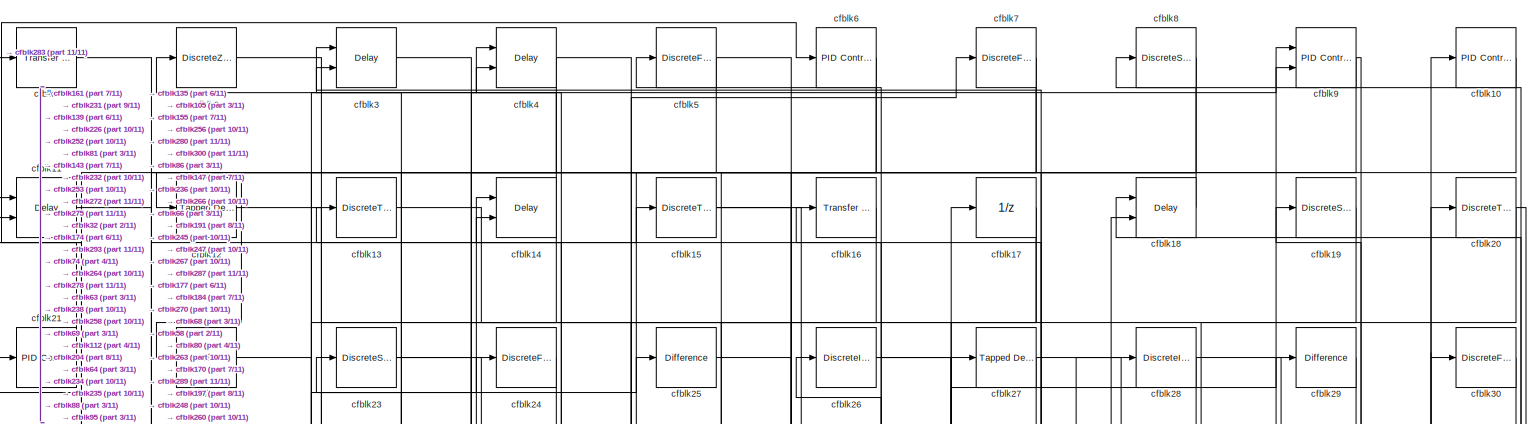
[diagram: root canvas - part 1/11, full width, top band]
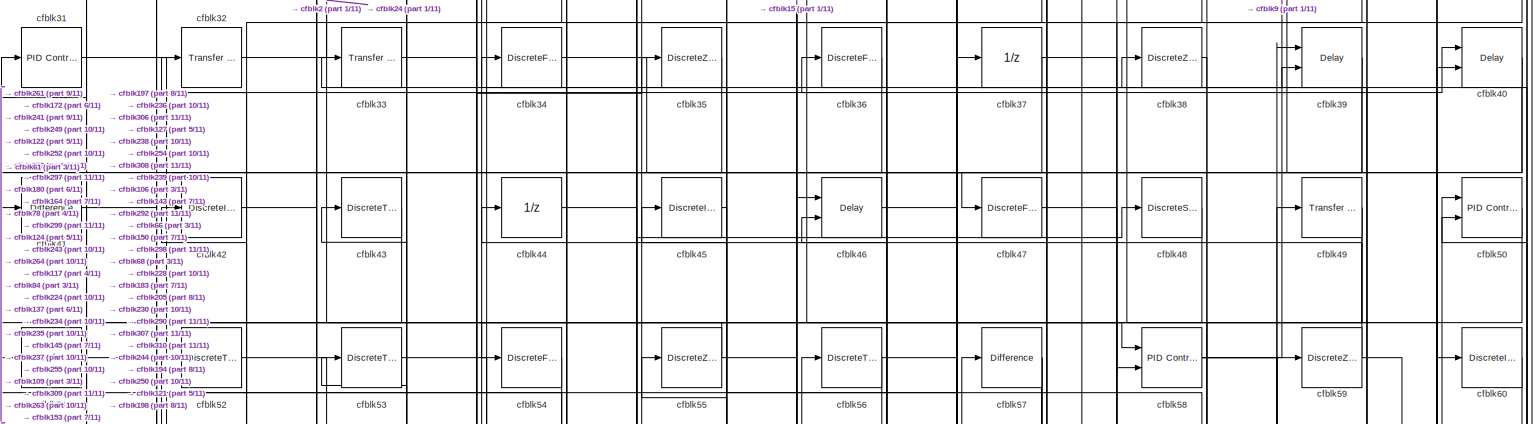
[diagram: root canvas - part 2/11, full width, top band]
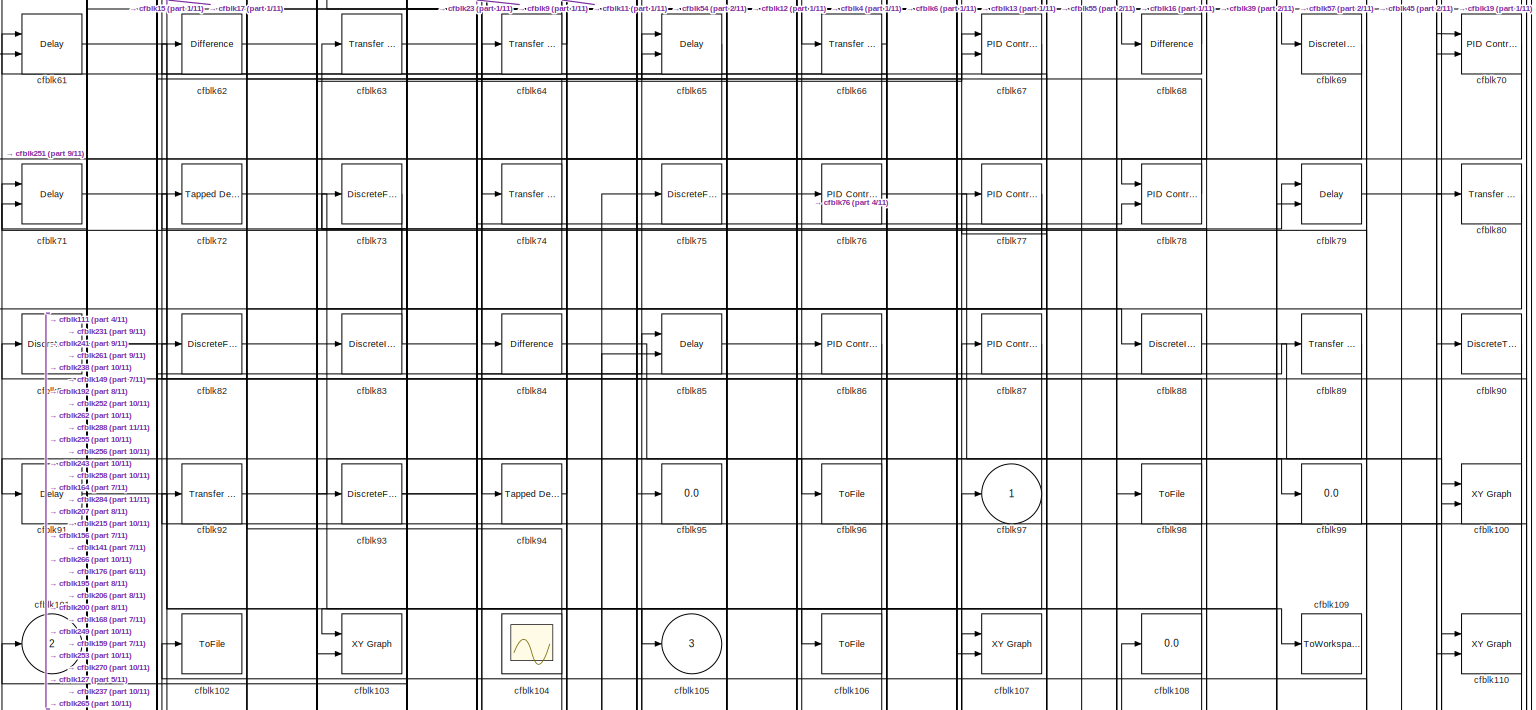
[diagram: root canvas - part 3/11, full width, top band]
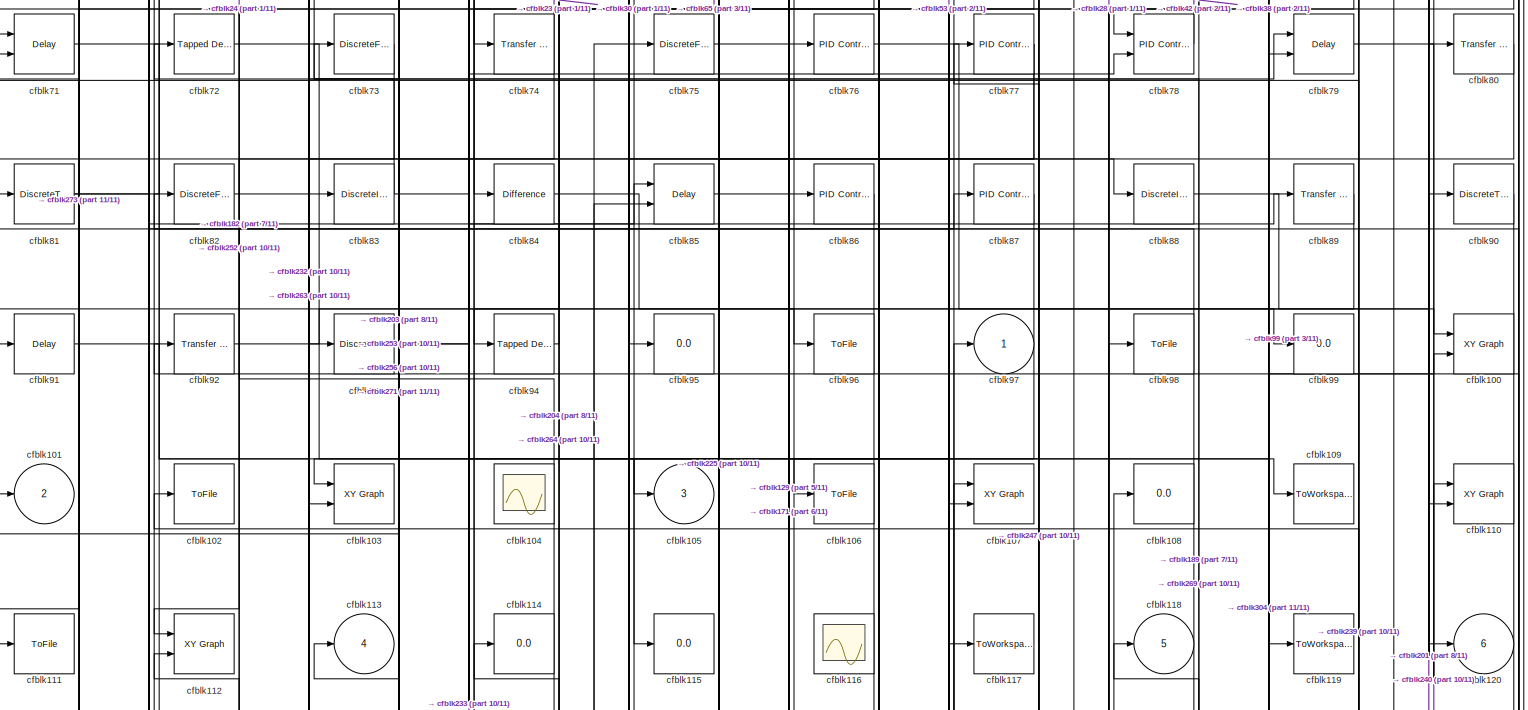
[diagram: root canvas - part 4/11, full width, top band]
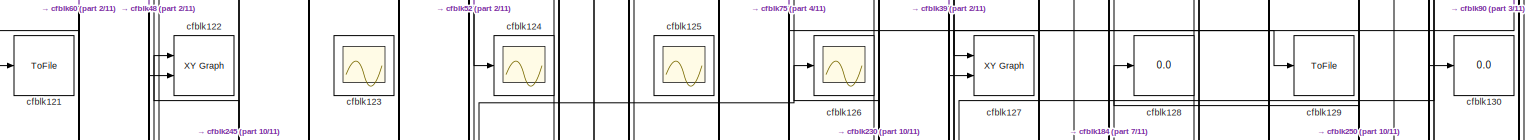
[diagram: root canvas - part 5/11, full width, middle band]
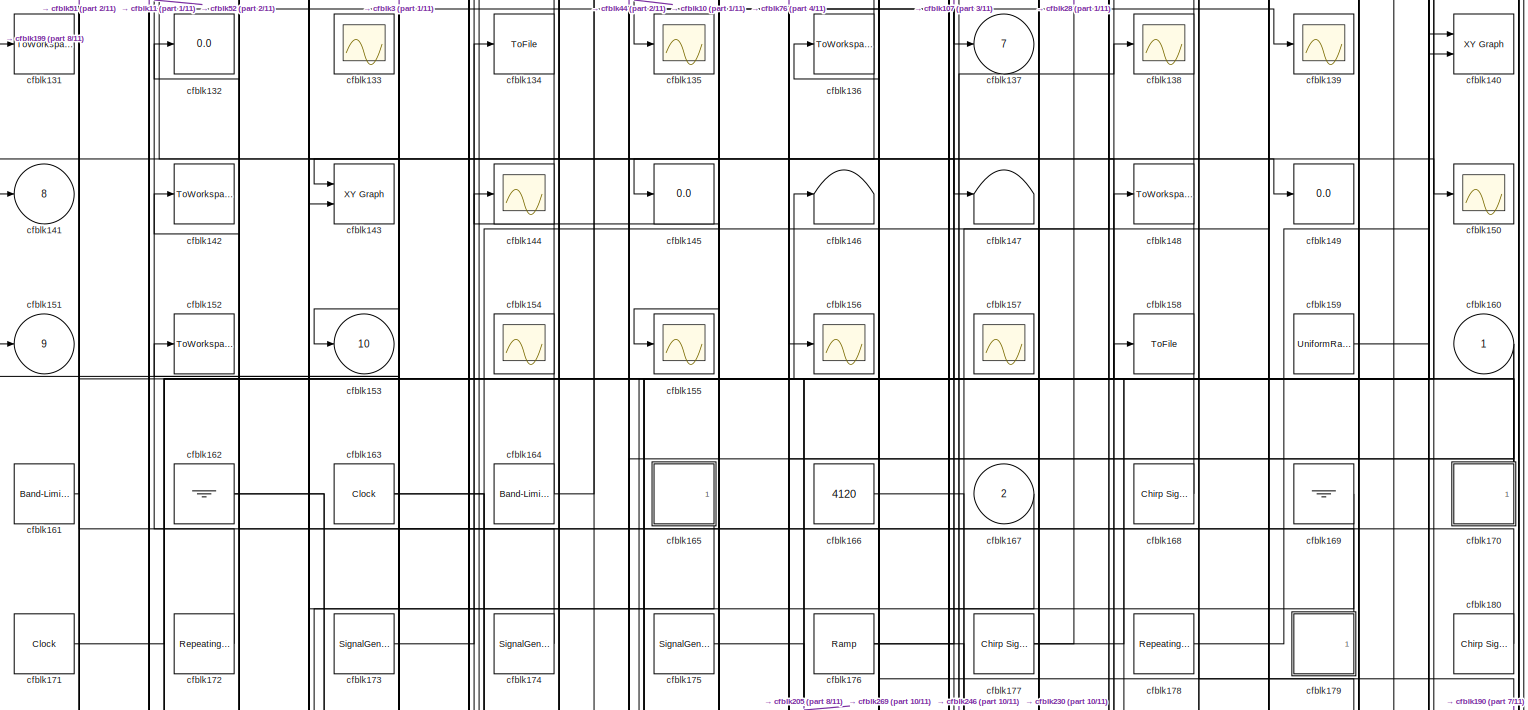
[diagram: root canvas - part 6/11, full width, middle band]
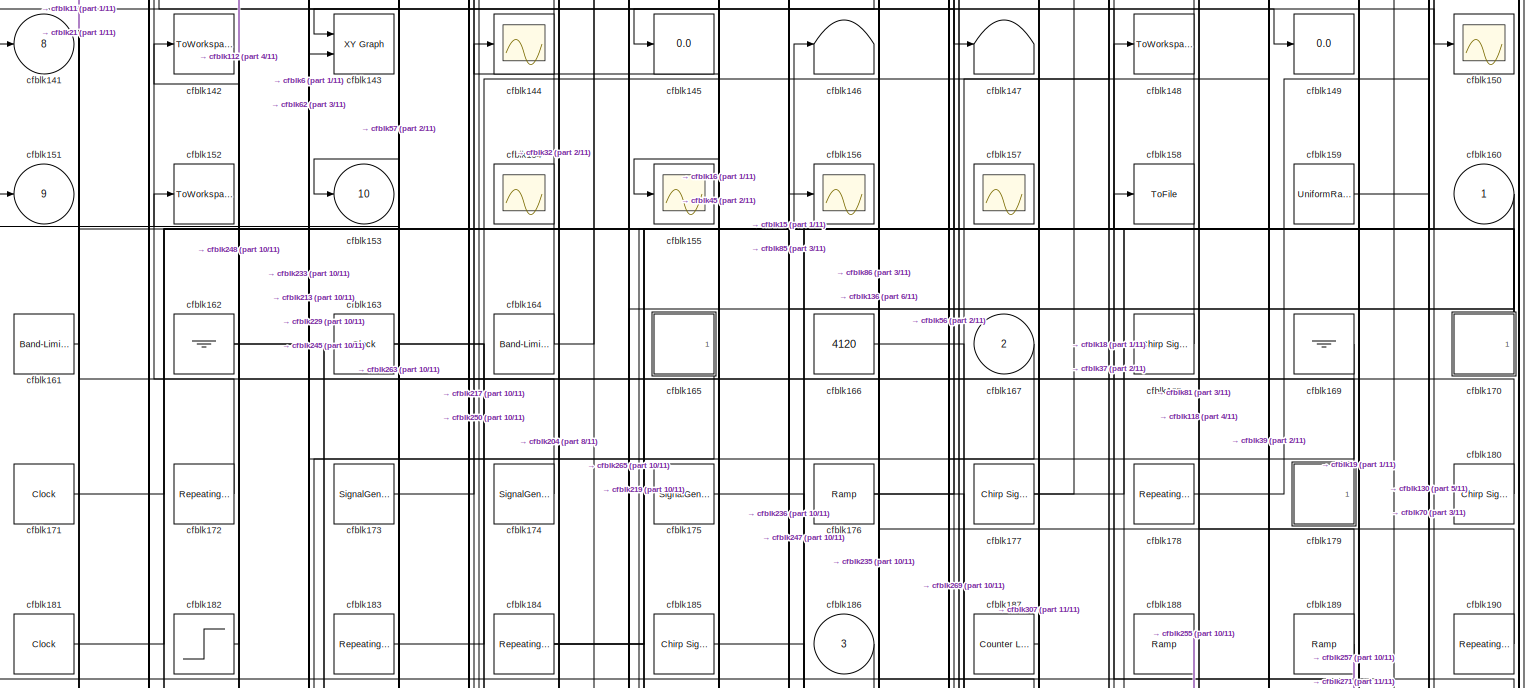
[diagram: root canvas - part 7/11, full width, middle band]
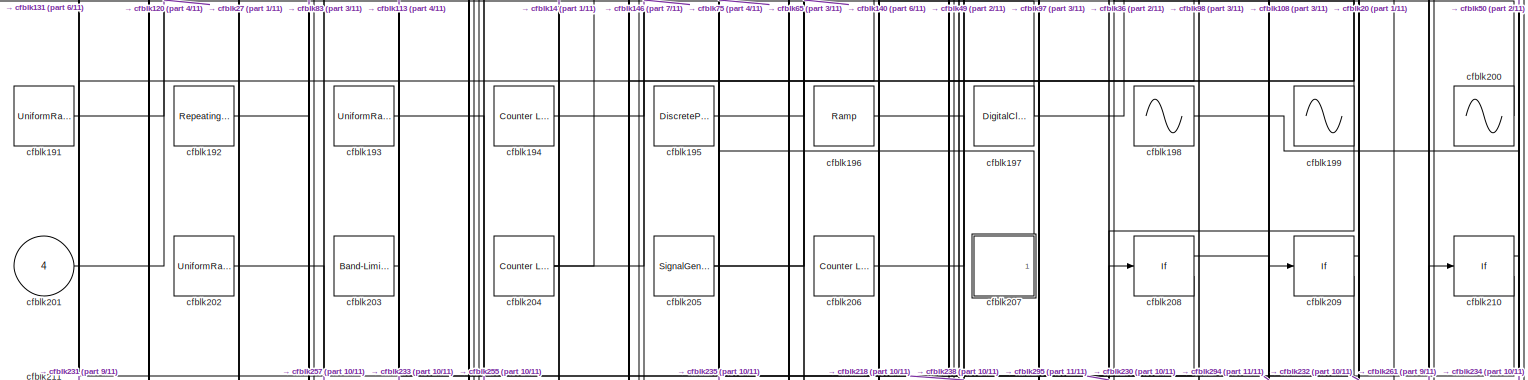
[diagram: root canvas - part 8/11, full width, middle band]
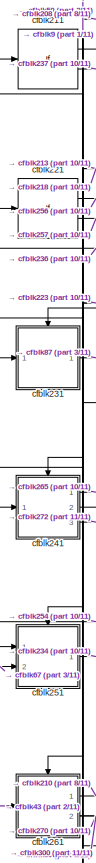
[diagram: root canvas - part 9/11, bottom left region]
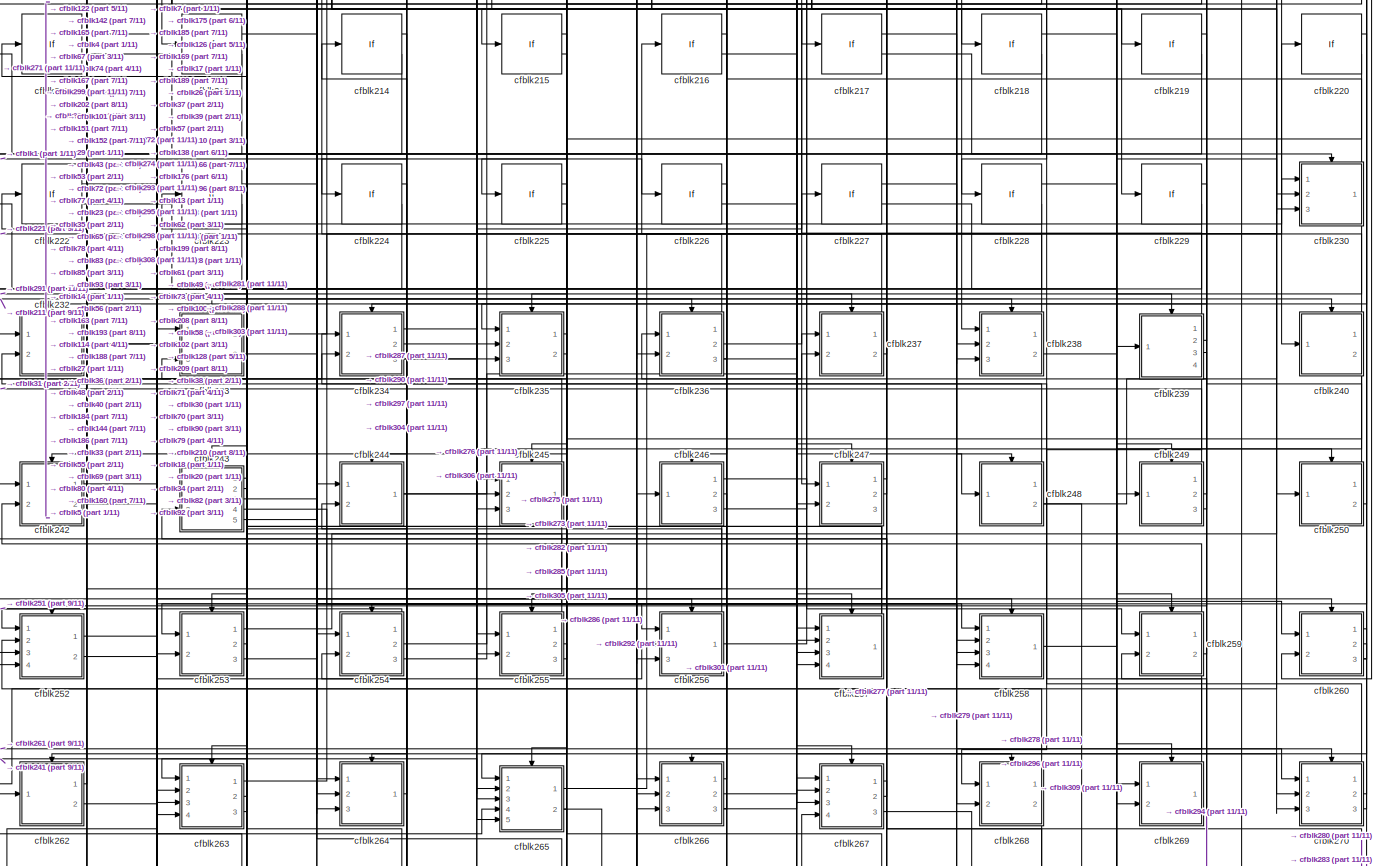
[diagram: root canvas - part 10/11, full width, bottom band]
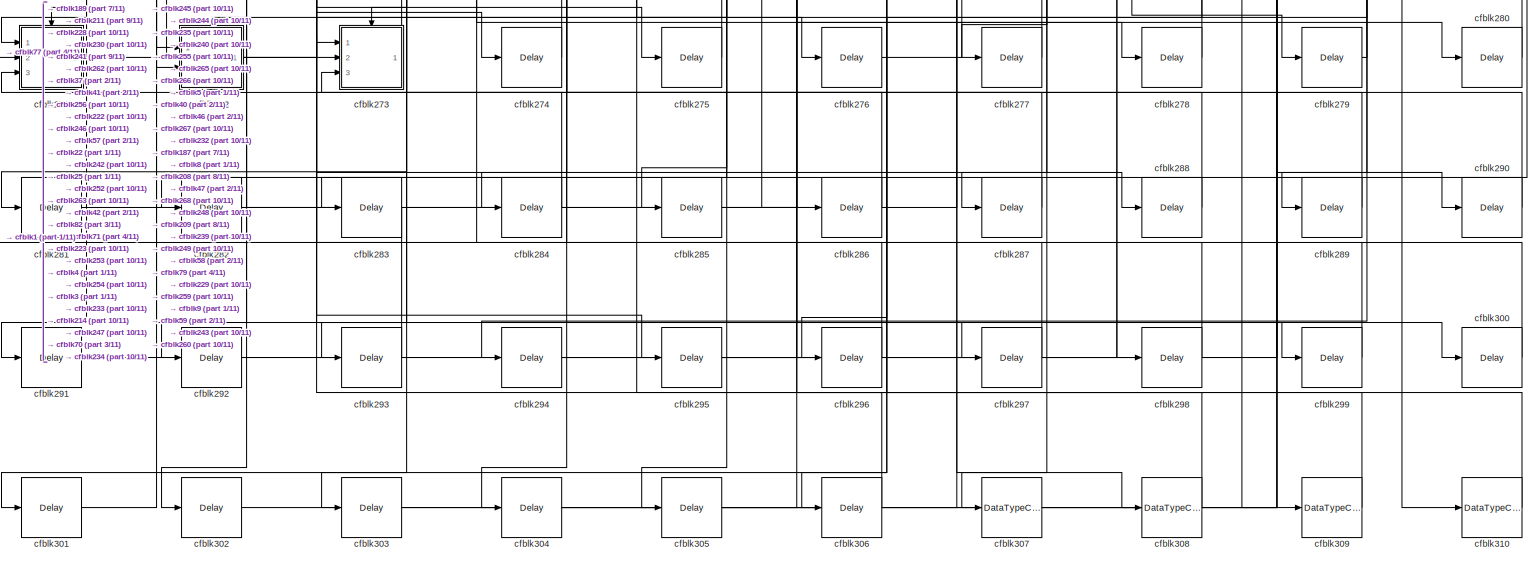
[diagram: root canvas - part 11/11, full width, bottom band]
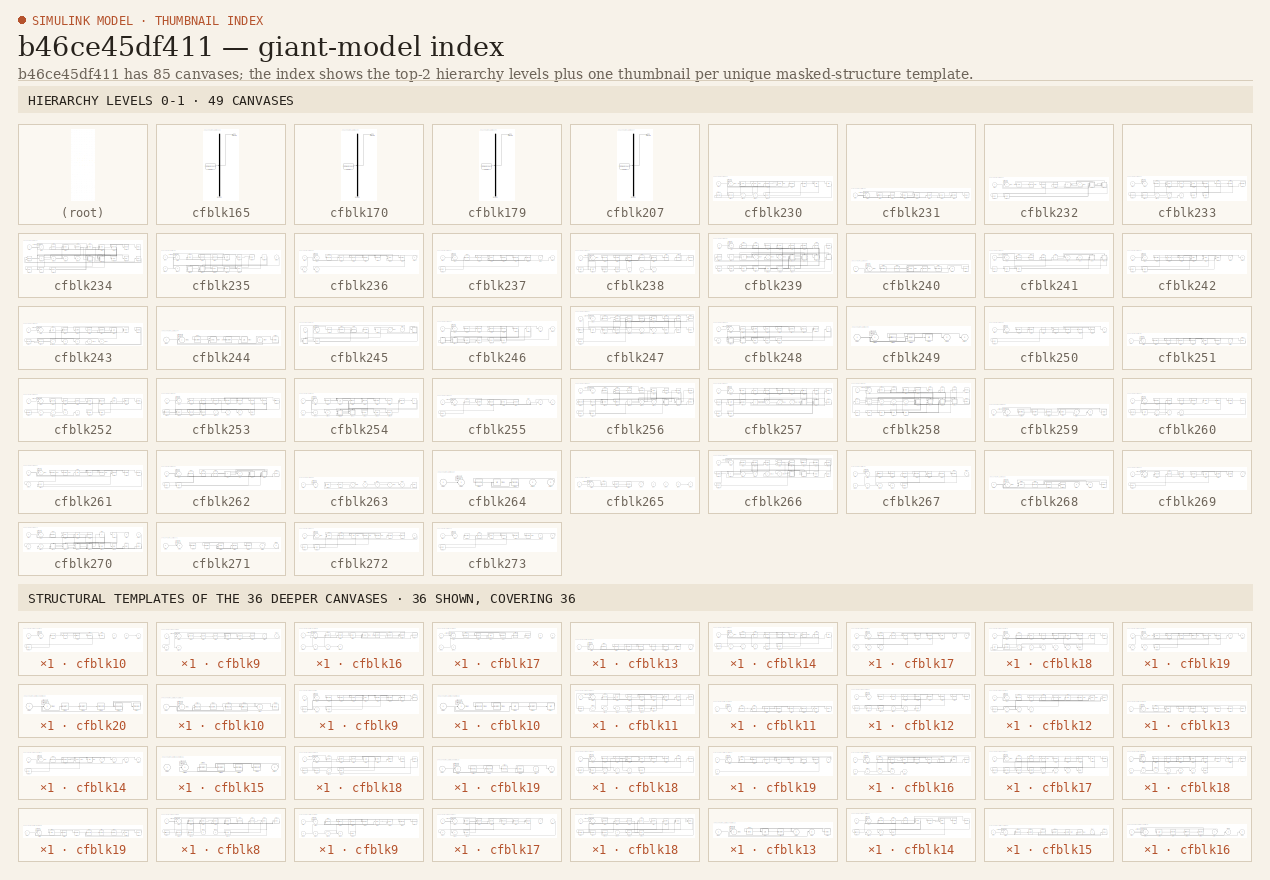
[diagram: thumbnail index - top-2 hierarchy levels (49 canvases) + 36 structural-template representatives of the remaining 36 canvases]
MODEL slx_b46ce45df411
KIND model
CONFIG AbsTol = auto
CONFIG EnableMultiTasking = off
CONFIG FixedStep = auto
CONFIG MaxStep = auto
CONFIG MinStep = auto
CONFIG RelTol = 1e-3
CONFIG SampleTimeConstraint = Unconstrained
CONFIG Solver = VariableStepAuto
CONFIG SolverName = VariableStepAuto
CONFIG StartTime = 0.0
CONFIG StopTime = 10.0
BLOCK [Reference] cfblk1  REF=simulink/Discrete/Transfer Fcn
Real Zero
  Ports = [1, 1]
  SourceBlock = simulink/Discrete/Transfer Fcn\nReal Zero
  SourceProductBaseCode = SL
  SourceProductName = Simulink
  SourceType = Transfer Fcn Real Zero
BLOCK [Reference] cfblk10  REF=simulink/Continuous/PID Controller
  Ports = [1, 1]
  SourceBlock = simulink/Continuous/PID Controller
  SourceProductBaseCode = SL
  SourceProductName = Simulink
  SourceType = PID 1dof
BLOCK [Reference] cfblk100  REF=simulink/Sinks/XY Graph
  Ports = [2]
  SourceBlock = simulink/Sinks/XY Graph
  SourceProductBaseCode = SL
  SourceProductName = Simulink
  SourceType = XY scope.
BLOCK [Outport] cfblk101
  IconDisplay = Port number
  Port = 2
BLOCK [ToFile] cfblk102
  Filename = mvju
  Ports = [1]
  SaveFormat = Timeseries
BLOCK [Reference] cfblk103  REF=simulink/Sinks/XY Graph
  Ports = [2]
  SourceBlock = simulink/Sinks/XY Graph
  SourceProductBaseCode = SL
  SourceProductName = Simulink
  SourceType = XY scope.
BLOCK [Scope] cfblk104
  Floating = on
  NumInputPorts = 1
  Ports = []
BLOCK [Outport] cfblk105
  IconDisplay = Port number
  Port = 3
BLOCK [ToFile] cfblk106
  Filename = eujd
  Ports = [1]
  SaveFormat = Timeseries
BLOCK [Reference] cfblk107  REF=simulink/Sinks/XY Graph
  Ports = [2]
  SourceBlock = simulink/Sinks/XY Graph
  SourceProductBaseCode = SL
  SourceProductName = Simulink
  SourceType = XY scope.
BLOCK [Display] cfblk108
  Decimation = 1
  Ports = [1]
BLOCK [ToWorkspace] cfblk109
  FixptAsFi = on
  MaxDataPoints = inf
  Ports = [1]
  SampleTime = -1
  Save2DSignal = 3-D array (concatenate along third dimension)
  SaveFormat = Timeseries
  VariableName = xkbihtf
BLOCK [Delay] cfblk11
  DelayLengthSource = Input port
  InputPortMap = u0,p1
  Ports = [2, 1]
  SampleTime = 1
BLOCK [Reference] cfblk110  REF=simulink/Sinks/XY Graph
  Ports = [2]
  SourceBlock = simulink/Sinks/XY Graph
  SourceProductBaseCode = SL
  SourceProductName = Simulink
  SourceType = XY scope.
BLOCK [ToFile] cfblk111
  Filename = cgvy
  Ports = [1]
  SaveFormat = Timeseries
BLOCK [Reference] cfblk112  REF=simulink/Sinks/XY Graph
  Ports = [2]
  SourceBlock = simulink/Sinks/XY Graph
  SourceProductBaseCode = SL
  SourceProductName = Simulink
  SourceType = XY scope.
BLOCK [Outport] cfblk113
  IconDisplay = Port number
  Port = 4
BLOCK [Display] cfblk114
  Decimation = 1
  Ports = [1]
BLOCK [Display] cfblk115
  Decimation = 1
  Ports = [1]
BLOCK [Scope] cfblk116
  Floating = on
  NumInputPorts = 1
  Ports = []
BLOCK [ToWorkspace] cfblk117
  FixptAsFi = on
  MaxDataPoints = inf
  Ports = [1]
  SampleTime = -1
  Save2DSignal = 3-D array (concatenate along third dimension)
  SaveFormat = Timeseries
  VariableName = xfyezbp
BLOCK [Outport] cfblk118
  IconDisplay = Port number
  Port = 5
BLOCK [ToWorkspace] cfblk119
  FixptAsFi = on
  MaxDataPoints = inf
  Ports = [1]
  SampleTime = -1
  Save2DSignal = 3-D array (concatenate along third dimension)
  SaveFormat = Timeseries
  VariableName = yrfonpq
BLOCK [Reference] cfblk12  REF=simulink/Discrete/Tapped Delay
  Ports = [1, 1]
  SourceBlock = simulink/Discrete/Tapped Delay
  SourceProductBaseCode = SL
  SourceProductName = Simulink
  SourceType = Tapped Delay Line
BLOCK [Outport] cfblk120
  IconDisplay = Port number
  Port = 6
BLOCK [ToFile] cfblk121
  Filename = bcgq
  Ports = [1]
  SaveFormat = Timeseries
BLOCK [Reference] cfblk122  REF=simulink/Sinks/XY Graph
  Ports = [2]
  SourceBlock = simulink/Sinks/XY Graph
  SourceProductBaseCode = SL
  SourceProductName = Simulink
  SourceType = XY scope.
BLOCK [Scope] cfblk123
  Floating = on
  NumInputPorts = 1
  Ports = []
BLOCK [Scope] cfblk124
  NumInputPorts = 1
  Ports = [1]
BLOCK [Scope] cfblk125
  Floating = on
  NumInputPorts = 1
  Ports = []
BLOCK [Scope] cfblk126
  NumInputPorts = 1
  Ports = [1]
BLOCK [Reference] cfblk127  REF=simulink/Sinks/XY Graph
  Ports = [2]
  SourceBlock = simulink/Sinks/XY Graph
  SourceProductBaseCode = SL
  SourceProductName = Simulink
  SourceType = XY scope.
BLOCK [Display] cfblk128
  Decimation = 1
  Ports = [1]
BLOCK [ToFile] cfblk129
  Filename = mjtg
  Ports = [1]
  SaveFormat = Timeseries
BLOCK [DiscreteTransferFcn] cfblk13
  InputPortMap = u0
  Ports = [1, 1]
  SampleTime = 1
BLOCK [Display] cfblk130
  Decimation = 1
  Ports = [1]
BLOCK [ToWorkspace] cfblk131
  FixptAsFi = on
  MaxDataPoints = inf
  Ports = [1]
  SampleTime = -1
  Save2DSignal = 3-D array (concatenate along third dimension)
  SaveFormat = Timeseries
  VariableName = whweswj
BLOCK [Display] cfblk132
  Decimation = 1
  Ports = [1]
BLOCK [Scope] cfblk133
  Floating = on
  NumInputPorts = 1
  Ports = []
BLOCK [ToFile] cfblk134
  Filename = jueb
  Ports = [1]
  SaveFormat = Timeseries
BLOCK [Scope] cfblk135
  NumInputPorts = 1
  Ports = [1]
BLOCK [ToWorkspace] cfblk136
  FixptAsFi = on
  MaxDataPoints = inf
  Ports = [1]
  SampleTime = -1
  Save2DSignal = 3-D array (concatenate along third dimension)
  SaveFormat = Timeseries
  VariableName = tkwpteb
BLOCK [Outport] cfblk137
  IconDisplay = Port number
  Port = 7
BLOCK [Scope] cfblk138
  NumInputPorts = 1
  Ports = [1]
BLOCK [Scope] cfblk139
  NumInputPorts = 1
  Ports = [1]
BLOCK [Delay] cfblk14
  InputPortMap = u0,e6
  Ports = [2, 1]
  SampleTime = 1
  ShowEnablePort = on
BLOCK [Reference] cfblk140  REF=simulink/Sinks/XY Graph
  Ports = [2]
  SourceBlock = simulink/Sinks/XY Graph
  SourceProductBaseCode = SL
  SourceProductName = Simulink
  SourceType = XY scope.
BLOCK [Outport] cfblk141
  IconDisplay = Port number
  Port = 8
BLOCK [ToWorkspace] cfblk142
  FixptAsFi = on
  MaxDataPoints = inf
  Ports = [1]
  SampleTime = -1
  Save2DSignal = 3-D array (concatenate along third dimension)
  SaveFormat = Timeseries
  VariableName = enguigy
BLOCK [Reference] cfblk143  REF=simulink/Sinks/XY Graph
  Ports = [2]
  SourceBlock = simulink/Sinks/XY Graph
  SourceProductBaseCode = SL
  SourceProductName = Simulink
  SourceType = XY scope.
BLOCK [Scope] cfblk144
  NumInputPorts = 1
  Ports = [1]
BLOCK [Display] cfblk145
  Decimation = 1
  Ports = [1]
BLOCK [Terminator] cfblk146
BLOCK [Terminator] cfblk147
BLOCK [ToWorkspace] cfblk148
  FixptAsFi = on
  MaxDataPoints = inf
  Ports = [1]
  SampleTime = -1
  Save2DSignal = 3-D array (concatenate along third dimension)
  SaveFormat = Timeseries
  VariableName = wdhubit
BLOCK [Display] cfblk149
  Decimation = 1
  Ports = [1]
BLOCK [DiscreteTransferFcn] cfblk15
  InputPortMap = u0
  Ports = [1, 1]
  SampleTime = 1
BLOCK [Scope] cfblk150
  NumInputPorts = 1
  Ports = [1]
BLOCK [Outport] cfblk151
  IconDisplay = Port number
  Port = 9
BLOCK [ToWorkspace] cfblk152
  FixptAsFi = on
  MaxDataPoints = inf
  Ports = [1]
  SampleTime = -1
  Save2DSignal = 3-D array (concatenate along third dimension)
  SaveFormat = Timeseries
  VariableName = eyoxfmy
BLOCK [Outport] cfblk153
  IconDisplay = Port number
  Port = 10
BLOCK [Scope] cfblk154
  Floating = on
  NumInputPorts = 1
  Ports = []
BLOCK [Scope] cfblk155
  NumInputPorts = 1
  Ports = [1]
BLOCK [Scope] cfblk156
  NumInputPorts = 1
  Ports = [1]
BLOCK [Scope] cfblk157
  Floating = on
  NumInputPorts = 1
  Ports = []
BLOCK [ToFile] cfblk158
  Filename = mojy
  Ports = [1]
  SaveFormat = Timeseries
BLOCK [UniformRandomNumber] cfblk159
  SampleTime = 0.1
BLOCK [Reference] cfblk16  REF=simulink/Discrete/Transfer Fcn
Lead or Lag
  Ports = [1, 1]
  SourceBlock = simulink/Discrete/Transfer Fcn\nLead or Lag
  SourceProductBaseCode = SL
  SourceProductName = Simulink
  SourceType = Lead or Lag Compensator
BLOCK [Inport] cfblk160
  IconDisplay = Port number
BLOCK [Reference] cfblk161  REF=simulink/Sources/Band-Limited
White Noise
  Ports = [0, 1]
  SourceBlock = simulink/Sources/Band-Limited\nWhite Noise
  SourceProductBaseCode = SL
  SourceProductName = Simulink
  SourceType = Band-Limited White Noise.
BLOCK [Ground] cfblk162
BLOCK [Clock] cfblk163
BLOCK [Reference] cfblk164  REF=simulink/Sources/Band-Limited
White Noise
  Ports = [0, 1]
  SourceBlock = simulink/Sources/Band-Limited\nWhite Noise
  SourceProductBaseCode = SL
  SourceProductName = Simulink
  SourceType = Band-Limited White Noise.
BLOCK [SubSystem] cfblk165
  ClipboardFcn = sigbuilder_block('clipboard');
  CloseFcn = sigbuilder_block('close');
  ContinueFcn = sigbuilder_block('continue');
  CopyFcn = sigbuilder_block('copy');
  DeleteFcn = sigbuilder_block('delete');
  LoadFcn = sigbuilder_block('load');
  MaskHideContents = on
  ModelCloseFcn = sigbuilder_block('modelClose');
  NameChangeFcn = sigbuilder_block('namechange');
  OpenFcn = sigbuilder_block('open',[437.6 199.2 550.4 400 ]);
  PauseFcn = sigbuilder_block('pause');
  Ports = [0, 1]
  PreSaveFcn = sigbuilder_block('preSave');
  RequestExecContextInheritance = off
  StartFcn = sigbuilder_block('start');
  StopFcn = sigbuilder_block('stop');
  Tag = STV Subsys
  Variant = off
BLOCK [Demux] cfblk165/Demux
  Outputs = 1
  Ports = [1, 1]
  Tag = STV Demux
BLOCK [FromWorkspace] cfblk165/FromWs
  SampleTime = 0
  Tag = STV FromWs
  VariableName = tuvar
  ZeroCross = on
BLOCK [Outport] cfblk165/Signal 1
  IconDisplay = Port number
  Tag = STV Outport
BLOCK [Constant] cfblk166
  Value = 4120
BLOCK [Inport] cfblk167
  IconDisplay = Port number
  Port = 2
BLOCK [Reference] cfblk168  REF=simulink/Sources/Chirp Signal
  Ports = [0, 1]
  SourceBlock = simulink/Sources/Chirp Signal
  SourceProductBaseCode = SL
  SourceProductName = Simulink
  SourceType = chirp
BLOCK [Ground] cfblk169
BLOCK [UnitDelay] cfblk17
  InputProcessing = Elements as channels (sample based)
BLOCK [SubSystem] cfblk170
  ClipboardFcn = sigbuilder_block('clipboard');
  CloseFcn = sigbuilder_block('close');
  ContinueFcn = sigbuilder_block('continue');
  CopyFcn = sigbuilder_block('copy');
  DeleteFcn = sigbuilder_block('delete');
  LoadFcn = sigbuilder_block('load');
  MaskHideContents = on
  ModelCloseFcn = sigbuilder_block('modelClose');
  NameChangeFcn = sigbuilder_block('namechange');
  OpenFcn = sigbuilder_block('open',[437.6 199.2 550.4 400 ]);
  PauseFcn = sigbuilder_block('pause');
  Ports = [0, 1]
  PreSaveFcn = sigbuilder_block('preSave');
  RequestExecContextInheritance = off
  StartFcn = sigbuilder_block('start');
  StopFcn = sigbuilder_block('stop');
  Tag = STV Subsys
  Variant = off
BLOCK [Demux] cfblk170/Demux
  Outputs = 1
  Ports = [1, 1]
  Tag = STV Demux
BLOCK [FromWorkspace] cfblk170/FromWs
  SampleTime = 0
  Tag = STV FromWs
  VariableName = tuvar
  ZeroCross = on
BLOCK [Outport] cfblk170/Signal 1
  IconDisplay = Port number
  Tag = STV Outport
BLOCK [Clock] cfblk171
BLOCK [Reference] cfblk172  REF=simulink/Sources/Repeating
Sequence
  Ports = [0, 1]
  SourceBlock = simulink/Sources/Repeating\nSequence
  SourceProductBaseCode = SL
  SourceProductName = Simulink
  SourceType = Repeating table
BLOCK [SignalGenerator] cfblk173
  Ports = [0, 1]
  Units = rad/sec
BLOCK [SignalGenerator] cfblk174
  Ports = [0, 1]
  Units = rad/sec
BLOCK [SignalGenerator] cfblk175
  Ports = [0, 1]
  Units = rad/sec
BLOCK [Reference] cfblk176  REF=simulink/Sources/Ramp
  Ports = [0, 1]
  SourceBlock = simulink/Sources/Ramp
  SourceProductBaseCode = SL
  SourceProductName = Simulink
  SourceType = Ramp
BLOCK [Reference] cfblk177  REF=simulink/Sources/Chirp Signal
  Ports = [0, 1]
  SourceBlock = simulink/Sources/Chirp Signal
  SourceProductBaseCode = SL
  SourceProductName = Simulink
  SourceType = chirp
BLOCK [Reference] cfblk178  REF=simulink/Sources/Repeating
Sequence
  Ports = [0, 1]
  SourceBlock = simulink/Sources/Repeating\nSequence
  SourceProductBaseCode = SL
  SourceProductName = Simulink
  SourceType = Repeating table
BLOCK [SubSystem] cfblk179
  ClipboardFcn = sigbuilder_block('clipboard');
  CloseFcn = sigbuilder_block('close');
  ContinueFcn = sigbuilder_block('continue');
  CopyFcn = sigbuilder_block('copy');
  DeleteFcn = sigbuilder_block('delete');
  LoadFcn = sigbuilder_block('load');
  MaskHideContents = on
  ModelCloseFcn = sigbuilder_block('modelClose');
  NameChangeFcn = sigbuilder_block('namechange');
  OpenFcn = sigbuilder_block('open',[437.6 199.2 550.4 400 ]);
  PauseFcn = sigbuilder_block('pause');
  Ports = [0, 1]
  PreSaveFcn = sigbuilder_block('preSave');
  RequestExecContextInheritance = off
  StartFcn = sigbuilder_block('start');
  StopFcn = sigbuilder_block('stop');
  Tag = STV Subsys
  Variant = off
BLOCK [Demux] cfblk179/Demux
  Outputs = 1
  Ports = [1, 1]
  Tag = STV Demux
BLOCK [FromWorkspace] cfblk179/FromWs
  SampleTime = 0
  Tag = STV FromWs
  VariableName = tuvar
  ZeroCross = on
BLOCK [Outport] cfblk179/Signal 1
  IconDisplay = Port number
  Tag = STV Outport
BLOCK [Delay] cfblk18
  InputPortMap = u0,e6
  Ports = [2, 1]
  SampleTime = 1
  ShowEnablePort = on
BLOCK [Reference] cfblk180  REF=simulink/Sources/Chirp Signal
  Ports = [0, 1]
  SourceBlock = simulink/Sources/Chirp Signal
  SourceProductBaseCode = SL
  SourceProductName = Simulink
  SourceType = chirp
BLOCK [Clock] cfblk181
BLOCK [Step] cfblk182
  After = 81
  SampleTime = 0
BLOCK [Reference] cfblk183  REF=simulink/Sources/Repeating
Sequence
Stair
  Ports = [0, 1]
  SourceBlock = simulink/Sources/Repeating\nSequence\nStair
  SourceProductBaseCode = SL
  SourceProductName = Simulink
  SourceType = Repeating Sequence Stair
BLOCK [Reference] cfblk184  REF=simulink/Sources/Repeating
Sequence
Interpolated
  Ports = [0, 1]
  SourceBlock = simulink/Sources/Repeating\nSequence\nInterpolated
  SourceProductBaseCode = SL
  SourceProductName = Simulink
  SourceType = Repeating Sequence Interpolated
BLOCK [Reference] cfblk185  REF=simulink/Sources/Chirp Signal
  Ports = [0, 1]
  SourceBlock = simulink/Sources/Chirp Signal
  SourceProductBaseCode = SL
  SourceProductName = Simulink
  SourceType = chirp
BLOCK [Inport] cfblk186
  IconDisplay = Port number
  Port = 3
BLOCK [Reference] cfblk187  REF=simulink/Sources/Counter
Limited
  Ports = [0, 1]
  SourceBlock = simulink/Sources/Counter\nLimited
  SourceProductBaseCode = SL
  SourceProductName = Simulink
  SourceType = Counter Limited
BLOCK [Reference] cfblk188  REF=simulink/Sources/Ramp
  Ports = [0, 1]
  SourceBlock = simulink/Sources/Ramp
  SourceProductBaseCode = SL
  SourceProductName = Simulink
  SourceType = Ramp
BLOCK [Reference] cfblk189  REF=simulink/Sources/Ramp
  Ports = [0, 1]
  SourceBlock = simulink/Sources/Ramp
  SourceProductBaseCode = SL
  SourceProductName = Simulink
  SourceType = Ramp
BLOCK [DiscreteStateSpace] cfblk19
BLOCK [Reference] cfblk190  REF=simulink/Sources/Repeating
Sequence
  Ports = [0, 1]
  SourceBlock = simulink/Sources/Repeating\nSequence
  SourceProductBaseCode = SL
  SourceProductName = Simulink
  SourceType = Repeating table
BLOCK [UniformRandomNumber] cfblk191
  SampleTime = 0.1
BLOCK [Reference] cfblk192  REF=simulink/Sources/Repeating
Sequence
  Ports = [0, 1]
  SourceBlock = simulink/Sources/Repeating\nSequence
  SourceProductBaseCode = SL
  SourceProductName = Simulink
  SourceType = Repeating table
BLOCK [UniformRandomNumber] cfblk193
  SampleTime = 0.1
BLOCK [Reference] cfblk194  REF=simulink/Sources/Counter
Limited
  Ports = [0, 1]
  SourceBlock = simulink/Sources/Counter\nLimited
  SourceProductBaseCode = SL
  SourceProductName = Simulink
  SourceType = Counter Limited
BLOCK [DiscretePulseGenerator] cfblk195
  Period = 10
  Ports = [0, 1]
  PulseType = Time based
  PulseWidth = 5
BLOCK [Reference] cfblk196  REF=simulink/Sources/Ramp
  Ports = [0, 1]
  SourceBlock = simulink/Sources/Ramp
  SourceProductBaseCode = SL
  SourceProductName = Simulink
  SourceType = Ramp
BLOCK [DigitalClock] cfblk197
BLOCK [Sin] cfblk198
  Ports = [0, 1]
  SampleTime = 0
BLOCK [Sin] cfblk199
  Ports = [0, 1]
  SampleTime = 0
BLOCK [DiscreteZeroPole] cfblk2
  Gain = 1
  Poles = [0 0.5]
BLOCK [DiscreteTransferFcn] cfblk20
  InputPortMap = u0
  Ports = [1, 1]
  SampleTime = 1
BLOCK [Sin] cfblk200
  Ports = [0, 1]
  SampleTime = 0
BLOCK [Inport] cfblk201
  IconDisplay = Port number
  Port = 4
BLOCK [UniformRandomNumber] cfblk202
  SampleTime = 0.1
BLOCK [Reference] cfblk203  REF=simulink/Sources/Band-Limited
White Noise
  Ports = [0, 1]
  SourceBlock = simulink/Sources/Band-Limited\nWhite Noise
  SourceProductBaseCode = SL
  SourceProductName = Simulink
  SourceType = Band-Limited White Noise.
BLOCK [Reference] cfblk204  REF=simulink/Sources/Counter
Limited
  Ports = [0, 1]
  SourceBlock = simulink/Sources/Counter\nLimited
  SourceProductBaseCode = SL
  SourceProductName = Simulink
  SourceType = Counter Limited
BLOCK [SignalGenerator] cfblk205
  Ports = [0, 1]
  Units = rad/sec
BLOCK [Reference] cfblk206  REF=simulink/Sources/Counter
Limited
  Ports = [0, 1]
  SourceBlock = simulink/Sources/Counter\nLimited
  SourceProductBaseCode = SL
  SourceProductName = Simulink
  SourceType = Counter Limited
BLOCK [SubSystem] cfblk207
  ClipboardFcn = sigbuilder_block('clipboard');
  CloseFcn = sigbuilder_block('close');
  ContinueFcn = sigbuilder_block('continue');
  CopyFcn = sigbuilder_block('copy');
  DeleteFcn = sigbuilder_block('delete');
  LoadFcn = sigbuilder_block('load');
  MaskHideContents = on
  ModelCloseFcn = sigbuilder_block('modelClose');
  NameChangeFcn = sigbuilder_block('namechange');
  OpenFcn = sigbuilder_block('open',[437.6 199.2 550.4 400 ]);
  PauseFcn = sigbuilder_block('pause');
  Ports = [0, 1]
  PreSaveFcn = sigbuilder_block('preSave');
  RequestExecContextInheritance = off
  StartFcn = sigbuilder_block('start');
  StopFcn = sigbuilder_block('stop');
  Tag = STV Subsys
  Variant = off
BLOCK [Demux] cfblk207/Demux
  Outputs = 1
  Ports = [1, 1]
  Tag = STV Demux
BLOCK [FromWorkspace] cfblk207/FromWs
  SampleTime = 0
  Tag = STV FromWs
  VariableName = tuvar
  ZeroCross = on
BLOCK [Outport] cfblk207/Signal 1
  IconDisplay = Port number
  Tag = STV Outport
BLOCK [If] cfblk208
  Ports = [1, 2]
  SampleTime = 1
BLOCK [If] cfblk209
  Ports = [1, 2]
  SampleTime = 1
BLOCK [Reference] cfblk21  REF=simulink/Continuous/PID Controller
  Ports = [1, 1]
  SourceBlock = simulink/Continuous/PID Controller
  SourceProductBaseCode = SL
  SourceProductName = Simulink
  SourceType = PID 1dof
BLOCK [If] cfblk210
  Ports = [1, 2]
  SampleTime = 1
BLOCK [If] cfblk211
  Ports = [1, 2]
  SampleTime = 1
BLOCK [If] cfblk212
  Ports = [1, 2]
  SampleTime = 1
BLOCK [If] cfblk213
  Ports = [1, 2]
  SampleTime = 1
BLOCK [If] cfblk214
  Ports = [1, 2]
  SampleTime = 1
BLOCK [If] cfblk215
  Ports = [1, 2]
  SampleTime = 1
BLOCK [If] cfblk216
  Ports = [1, 2]
  SampleTime = 1
BLOCK [If] cfblk217
  Ports = [1, 2]
  SampleTime = 1
BLOCK [If] cfblk218
  Ports = [1, 2]
  SampleTime = 1
BLOCK [If] cfblk219
  Ports = [1, 2]
  SampleTime = 1
BLOCK [Reference] cfblk22  REF=simulink/Discrete/Transfer Fcn
First Order
  Ports = [1, 1]
  SourceBlock = simulink/Discrete/Transfer Fcn\nFirst Order
  SourceProductBaseCode = SL
  SourceProductName = Simulink
  SourceType = First Order Transfer Fcn
BLOCK [If] cfblk220
  Ports = [1, 2]
  SampleTime = 1
BLOCK [If] cfblk221
  Ports = [1, 2]
  SampleTime = 1
BLOCK [If] cfblk222
  Ports = [1, 2]
  SampleTime = 1
BLOCK [If] cfblk223
  Ports = [1, 2]
  SampleTime = 1
BLOCK [If] cfblk224
  Ports = [1, 2]
  SampleTime = 1
BLOCK [If] cfblk225
  Ports = [1, 2]
  SampleTime = 1
BLOCK [If] cfblk226
  Ports = [1, 2]
  SampleTime = 1
BLOCK [If] cfblk227
  Ports = [1, 2]
  SampleTime = 1
BLOCK [If] cfblk228
  Ports = [1, 2]
  SampleTime = 1
BLOCK [If] cfblk229
  Ports = [1, 2]
  SampleTime = 1
BLOCK [DiscreteStateSpace] cfblk23
BLOCK [SubSystem] cfblk230
  Ports = [3, 1, 0, 0, 0, 0, 0, 1]
  RequestExecContextInheritance = off
  TreatAsAtomicUnit = on
  Variant = off
BLOCK [ActionPort] cfblk230/Action Port
  ActionType = then
BLOCK [Inport] cfblk230/cfblk1
  IconDisplay = Port number
BLOCK [UnitDelay] cfblk230/cfblk10
  InputProcessing = Elements as channels (sample based)
  SampleTime = -1
BLOCK [DiscreteIntegrator] cfblk230/cfblk11
  ICPrevOutput = DiscIntNeverNeededParam
  ICPrevScaledInput = DiscIntNeverNeededParam
  InitialConditionSetting = State (most efficient)
  Ports = [1, 1]
  SampleTime = -1
BLOCK [Reference] cfblk230/cfblk12  REF=simulink/Discrete/Transfer Fcn
Lead or Lag
  Ports = [1, 1]
  SourceBlock = simulink/Discrete/Transfer Fcn\nLead or Lag
  SourceProductBaseCode = SL
  SourceProductName = Simulink
  SourceType = Lead or Lag Compensator
BLOCK [Inport] cfblk230/cfblk13
  IconDisplay = Port number
  Port = 2
BLOCK [Inport] cfblk230/cfblk14
  IconDisplay = Port number
  Port = 3
BLOCK [Delay] cfblk230/cfblk15
  InputPortMap = u0
  Ports = [1, 1]
BLOCK [Outport] cfblk230/cfblk2
  IconDisplay = Port number
BLOCK [Delay] cfblk230/cfblk3
  InputPortMap = u0,e6
  Ports = [2, 1]
  ShowEnablePort = on
BLOCK [Delay] cfblk230/cfblk4
  InputPortMap = u0
  Ports = [1, 1]
BLOCK [DiscreteFilter] cfblk230/cfblk5
  InputPortMap = u0
  Ports = [1, 1]
BLOCK [Delay] cfblk230/cfblk6
  DelayLengthSource = Input port
  InputPortMap = u0,p1
  Ports = [2, 1]
BLOCK [DiscreteZeroPole] cfblk230/cfblk7
  Gain = 1
  Poles = [0 0.5]
  SampleTime = -1
BLOCK [DiscreteZeroPole] cfblk230/cfblk8
  Gain = 1
  Poles = [0 0.5]
  SampleTime = -1
BLOCK [UnitDelay] cfblk230/cfblk9
  InputProcessing = Elements as channels (sample based)
  SampleTime = -1
BLOCK [SubSystem] cfblk231
  Ports = [1, 1, 0, 0, 0, 0, 0, 1]
  RequestExecContextInheritance = off
  TreatAsAtomicUnit = on
  Variant = off
BLOCK [ActionPort] cfblk231/Action Port
  ActionType = else
BLOCK [Inport] cfblk231/cfblk1
  IconDisplay = Port number
BLOCK [Delay] cfblk231/cfblk10
  InputPortMap = u0
  Ports = [1, 1]
BLOCK [Outport] cfblk231/cfblk2
  IconDisplay = Port number
BLOCK [Reference] cfblk231/cfblk3  REF=simulink/Discrete/Difference
  Ports = [1, 1]
  SourceBlock = simulink/Discrete/Difference
  SourceProductBaseCode = SL
  SourceProductName = Simulink
  SourceType = Difference
BLOCK [DiscreteIntegrator] cfblk231/cfblk4
  ICPrevOutput = DiscIntNeverNeededParam
  ICPrevScaledInput = DiscIntNeverNeededParam
  InitialConditionSetting = State (most efficient)
  Ports = [1, 1]
  SampleTime = -1
BLOCK [Delay] cfblk231/cfblk5
  InputPortMap = u0,e6
  Ports = [2, 1]
  ShowEnablePort = on
BLOCK [Delay] cfblk231/cfblk6
  InputPortMap = u0,e6
  Ports = [2, 1]
  ShowEnablePort = on
BLOCK [DiscreteTransferFcn] cfblk231/cfblk7
  InputPortMap = u0
  Ports = [1, 1]
BLOCK [Delay] cfblk231/cfblk8
  InputPortMap = u0
  Ports = [1, 1]
BLOCK [DiscreteStateSpace] cfblk231/cfblk9
  SampleTime = -1
BLOCK [SubSystem] cfblk232
  Ports = [2, 1, 0, 0, 0, 0, 0, 1]
  RequestExecContextInheritance = off
  TreatAsAtomicUnit = on
  Variant = off
BLOCK [ActionPort] cfblk232/Action Port
  ActionType = then
BLOCK [Inport] cfblk232/cfblk1
  IconDisplay = Port number
BLOCK [SubSystem] cfblk232/cfblk10
  Ports = [3, 2, 0, 0, 0, 0, 0, 1]
  RequestExecContextInheritance = off
  TreatAsAtomicUnit = on
  Variant = off
BLOCK [ActionPort] cfblk232/cfblk10/Action Port
  ActionType = else
BLOCK [Inport] cfblk232/cfblk10/cfblk1
  IconDisplay = Port number
BLOCK [Outport] cfblk232/cfblk10/cfblk10
  IconDisplay = Port number
  Port = 2
BLOCK [Delay] cfblk232/cfblk10/cfblk11
  InputPortMap = u0
  Ports = [1, 1]
BLOCK [Outport] cfblk232/cfblk10/cfblk2
  IconDisplay = Port number
BLOCK [Reference] cfblk232/cfblk10/cfblk3  REF=simulink/Discrete/Transfer Fcn
Real Zero
  Ports = [1, 1]
  SourceBlock = simulink/Discrete/Transfer Fcn\nReal Zero
  SourceProductBaseCode = SL
  SourceProductName = Simulink
  SourceType = Transfer Fcn Real Zero
BLOCK [Reference] cfblk232/cfblk10/cfblk4  REF=simulink/Discrete/Transfer Fcn
First Order
  Ports = [1, 1]
  SourceBlock = simulink/Discrete/Transfer Fcn\nFirst Order
  SourceProductBaseCode = SL
  SourceProductName = Simulink
  SourceType = First Order Transfer Fcn
BLOCK [Reference] cfblk232/cfblk10/cfblk5  REF=simulink/Discrete/Difference
  Ports = [1, 1]
  SourceBlock = simulink/Discrete/Difference
  SourceProductBaseCode = SL
  SourceProductName = Simulink
  SourceType = Difference
BLOCK [Reference] cfblk232/cfblk10/cfblk6  REF=simulink/Discrete/Transfer Fcn
Lead or Lag
  Ports = [1, 1]
  SourceBlock = simulink/Discrete/Transfer Fcn\nLead or Lag
  SourceProductBaseCode = SL
  SourceProductName = Simulink
  SourceType = Lead or Lag Compensator
BLOCK [Delay] cfblk232/cfblk10/cfblk7
  InputPortMap = u0
  Ports = [1, 1]
BLOCK [Inport] cfblk232/cfblk10/cfblk8
  IconDisplay = Port number
  Port = 2
BLOCK [Inport] cfblk232/cfblk10/cfblk9
  IconDisplay = Port number
  Port = 3
BLOCK [Delay] cfblk232/cfblk11
  InputPortMap = u0
  Ports = [1, 1]
BLOCK [Delay] cfblk232/cfblk12
  InputPortMap = u0
  Ports = [1, 1]
BLOCK [Outport] cfblk232/cfblk2
  IconDisplay = Port number
BLOCK [Delay] cfblk232/cfblk3
  InputPortMap = u0
  Ports = [1, 1]
BLOCK [Reference] cfblk232/cfblk4  REF=simulink/Discrete/Transfer Fcn
Lead or Lag
  Ports = [1, 1]
  SourceBlock = simulink/Discrete/Transfer Fcn\nLead or Lag
  SourceProductBaseCode = SL
  SourceProductName = Simulink
  SourceType = Lead or Lag Compensator
BLOCK [Reference] cfblk232/cfblk5  REF=simulink/Discrete/Tapped Delay
  Ports = [1, 1]
  SourceBlock = simulink/Discrete/Tapped Delay
  SourceProductBaseCode = SL
  SourceProductName = Simulink
  SourceType = Tapped Delay Line
BLOCK [Reference] cfblk232/cfblk6  REF=simulink/Discrete/Tapped Delay
  Ports = [1, 1]
  SourceBlock = simulink/Discrete/Tapped Delay
  SourceProductBaseCode = SL
  SourceProductName = Simulink
  SourceType = Tapped Delay Line
BLOCK [If] cfblk232/cfblk7
  Ports = [1, 2]
  SampleTime = 1
BLOCK [Inport] cfblk232/cfblk8
  IconDisplay = Port number
  Port = 2
BLOCK [SubSystem] cfblk232/cfblk9
  Ports = [3, 3, 0, 0, 0, 0, 0, 1]
  RequestExecContextInheritance = off
  TreatAsAtomicUnit = on
  Variant = off
BLOCK [ActionPort] cfblk232/cfblk9/Action Port
  ActionType = then
BLOCK [Inport] cfblk232/cfblk9/cfblk1
  IconDisplay = Port number
BLOCK [Inport] cfblk232/cfblk9/cfblk10
  IconDisplay = Port number
  Port = 3
BLOCK [Outport] cfblk232/cfblk9/cfblk11
  IconDisplay = Port number
  Port = 2
BLOCK [Outport] cfblk232/cfblk9/cfblk12
  IconDisplay = Port number
  Port = 3
BLOCK [Outport] cfblk232/cfblk9/cfblk2
  IconDisplay = Port number
BLOCK [Reference] cfblk232/cfblk9/cfblk3  REF=simulink/Discrete/Transfer Fcn
Real Zero
  Ports = [1, 1]
  SourceBlock = simulink/Discrete/Transfer Fcn\nReal Zero
  SourceProductBaseCode = SL
  SourceProductName = Simulink
  SourceType = Transfer Fcn Real Zero
BLOCK [Reference] cfblk232/cfblk9/cfblk4  REF=simulink/Discrete/Transfer Fcn
First Order
  Ports = [1, 1]
  SourceBlock = simulink/Discrete/Transfer Fcn\nFirst Order
  SourceProductBaseCode = SL
  SourceProductName = Simulink
  SourceType = First Order Transfer Fcn
BLOCK [Reference] cfblk232/cfblk9/cfblk5  REF=simulink/Discrete/Transfer Fcn
Real Zero
  Ports = [1, 1]
  SourceBlock = simulink/Discrete/Transfer Fcn\nReal Zero
  SourceProductBaseCode = SL
  SourceProductName = Simulink
  SourceType = Transfer Fcn Real Zero
BLOCK [Delay] cfblk232/cfblk9/cfblk6
  InputPortMap = u0,e6
  Ports = [2, 1]
  ShowEnablePort = on
BLOCK [Reference] cfblk232/cfblk9/cfblk7  REF=simulink/Discrete/Transfer Fcn
First Order
  Ports = [1, 1]
  SourceBlock = simulink/Discrete/Transfer Fcn\nFirst Order
  SourceProductBaseCode = SL
  SourceProductName = Simulink
  SourceType = First Order Transfer Fcn
BLOCK [Reference] cfblk232/cfblk9/cfblk8  REF=simulink/Discrete/Transfer Fcn
Real Zero
  Ports = [1, 1]
  SourceBlock = simulink/Discrete/Transfer Fcn\nReal Zero
  SourceProductBaseCode = SL
  SourceProductName = Simulink
  SourceType = Transfer Fcn Real Zero
BLOCK [Inport] cfblk232/cfblk9/cfblk9
  IconDisplay = Port number
  Port = 2
BLOCK [SubSystem] cfblk233
  Ports = [3, 2, 0, 0, 0, 0, 0, 1]
  RequestExecContextInheritance = off
  TreatAsAtomicUnit = on
  Variant = off
BLOCK [ActionPort] cfblk233/Action Port
  ActionType = else
BLOCK [Inport] cfblk233/cfblk1
  IconDisplay = Port number
BLOCK [DiscreteStateSpace] cfblk233/cfblk10
  SampleTime = -1
BLOCK [Reference] cfblk233/cfblk11  REF=simulink/Discrete/Tapped Delay
  Ports = [1, 1]
  SourceBlock = simulink/Discrete/Tapped Delay
  SourceProductBaseCode = SL
  SourceProductName = Simulink
  SourceType = Tapped Delay Line
BLOCK [Reference] cfblk233/cfblk12  REF=simulink/Discrete/Transfer Fcn
First Order
  Ports = [1, 1]
  SourceBlock = simulink/Discrete/Transfer Fcn\nFirst Order
  SourceProductBaseCode = SL
  SourceProductName = Simulink
  SourceType = First Order Transfer Fcn
BLOCK [Inport] cfblk233/cfblk13
  IconDisplay = Port number
  Port = 2
BLOCK [Inport] cfblk233/cfblk14
  IconDisplay = Port number
  Port = 3
BLOCK [Outport] cfblk233/cfblk15
  IconDisplay = Port number
  Port = 2
BLOCK [Delay] cfblk233/cfblk16
  InputPortMap = u0
  Ports = [1, 1]
BLOCK [Delay] cfblk233/cfblk17
  InputPortMap = u0
  Ports = [1, 1]
BLOCK [Outport] cfblk233/cfblk2
  IconDisplay = Port number
BLOCK [DiscreteZeroPole] cfblk233/cfblk3
  Gain = 1
  Poles = [0 0.5]
  SampleTime = -1
BLOCK [Delay] cfblk233/cfblk4
  DelayLengthSource = Input port
  InputPortMap = u0,p1
  Ports = [2, 1]
BLOCK [Delay] cfblk233/cfblk5
  InputPortMap = u0
  Ports = [1, 1]
BLOCK [Delay] cfblk233/cfblk6
  InputPortMap = u0,e6
  Ports = [2, 1]
  ShowEnablePort = on
BLOCK [DiscreteIntegrator] cfblk233/cfblk7
  ICPrevOutput = DiscIntNeverNeededParam
  ICPrevScaledInput = DiscIntNeverNeededParam
  InitialConditionSetting = State (most efficient)
  Ports = [1, 1]
  SampleTime = -1
BLOCK [Reference] cfblk233/cfblk8  REF=simulink/Discrete/Transfer Fcn
First Order
  Ports = [1, 1]
  SourceBlock = simulink/Discrete/Transfer Fcn\nFirst Order
  SourceProductBaseCode = SL
  SourceProductName = Simulink
  SourceType = First Order Transfer Fcn
BLOCK [DiscreteTransferFcn] cfblk233/cfblk9
  InputPortMap = u0
  Ports = [1, 1]
BLOCK [SubSystem] cfblk234
  Ports = [2, 3, 0, 0, 0, 0, 0, 1]
  RequestExecContextInheritance = off
  TreatAsAtomicUnit = on
  Variant = off
BLOCK [ActionPort] cfblk234/Action Port
  ActionType = then
BLOCK [Inport] cfblk234/cfblk1
  IconDisplay = Port number
BLOCK [Delay] cfblk234/cfblk10
  InputPortMap = u0
  Ports = [1, 1]
BLOCK [Reference] cfblk234/cfblk11  REF=simulink/Continuous/PID Controller (2DOF)
  Ports = [2, 1]
  SourceBlock = simulink/Continuous/PID Controller (2DOF)
  SourceProductBaseCode = SL
  SourceProductName = Simulink
  SourceType = PID 2dof
BLOCK [If] cfblk234/cfblk12
  Ports = [1, 2]
  SampleTime = 1
BLOCK [Inport] cfblk234/cfblk13
  IconDisplay = Port number
  Port = 2
BLOCK [Outport] cfblk234/cfblk14
  IconDisplay = Port number
  Port = 2
BLOCK [Outport] cfblk234/cfblk15
  IconDisplay = Port number
  Port = 3
BLOCK [SubSystem] cfblk234/cfblk16
  Ports = [4, 2, 0, 0, 0, 0, 0, 1]
  RequestExecContextInheritance = off
  TreatAsAtomicUnit = on
  Variant = off
BLOCK [ActionPort] cfblk234/cfblk16/Action Port
  ActionType = then
BLOCK [Inport] cfblk234/cfblk16/cfblk1
  IconDisplay = Port number
BLOCK [Reference] cfblk234/cfblk16/cfblk10  REF=simulink/Discrete/Tapped Delay
  Ports = [1, 1]
  SourceBlock = simulink/Discrete/Tapped Delay
  SourceProductBaseCode = SL
  SourceProductName = Simulink
  SourceType = Tapped Delay Line
BLOCK [Inport] cfblk234/cfblk16/cfblk11
  IconDisplay = Port number
  Port = 2
BLOCK [Inport] cfblk234/cfblk16/cfblk12
  IconDisplay = Port number
  Port = 3
BLOCK [Inport] cfblk234/cfblk16/cfblk13
  IconDisplay = Port number
  Port = 4
BLOCK [Outport] cfblk234/cfblk16/cfblk14
  IconDisplay = Port number
  Port = 2
BLOCK [Outport] cfblk234/cfblk16/cfblk2
  IconDisplay = Port number
BLOCK [DiscreteFir] cfblk234/cfblk16/cfblk3
  InputPortMap = u0
  OutputPortMap = o0
  Ports = [1, 1]
BLOCK [DiscreteIntegrator] cfblk234/cfblk16/cfblk4
  ICPrevOutput = DiscIntNeverNeededParam
  ICPrevScaledInput = DiscIntNeverNeededParam
  InitialConditionSetting = State (most efficient)
  Ports = [1, 1]
  SampleTime = -1
BLOCK [Delay] cfblk234/cfblk16/cfblk5
  InputPortMap = u0
  Ports = [1, 1]
BLOCK [Delay] cfblk234/cfblk16/cfblk6
  InputPortMap = u0,e6
  Ports = [2, 1]
  ShowEnablePort = on
BLOCK [DiscreteStateSpace] cfblk234/cfblk16/cfblk7
  SampleTime = -1
BLOCK [DiscreteFilter] cfblk234/cfblk16/cfblk8
  InputPortMap = u0
  Ports = [1, 1]
BLOCK [Reference] cfblk234/cfblk16/cfblk9  REF=simulink/Continuous/PID Controller (2DOF)
  Ports = [2, 1]
  SourceBlock = simulink/Continuous/PID Controller (2DOF)
  SourceProductBaseCode = SL
  SourceProductName = Simulink
  SourceType = PID 2dof
BLOCK [SubSystem] cfblk234/cfblk17
  Ports = [5, 1, 0, 0, 0, 0, 0, 1]
  RequestExecContextInheritance = off
  TreatAsAtomicUnit = on
  Variant = off
BLOCK [ActionPort] cfblk234/cfblk17/Action Port
  ActionType = else
BLOCK [Inport] cfblk234/cfblk17/cfblk1
  IconDisplay = Port number
BLOCK [Inport] cfblk234/cfblk17/cfblk10
  IconDisplay = Port number
  Port = 3
BLOCK [Inport] cfblk234/cfblk17/cfblk11
  IconDisplay = Port number
  Port = 4
BLOCK [Inport] cfblk234/cfblk17/cfblk12
  IconDisplay = Port number
  Port = 5
BLOCK [Outport] cfblk234/cfblk17/cfblk2
  IconDisplay = Port number
BLOCK [DiscreteFilter] cfblk234/cfblk17/cfblk3
  InputPortMap = u0
  Ports = [1, 1]
BLOCK [DiscreteTransferFcn] cfblk234/cfblk17/cfblk4
  InputPortMap = u0
  Ports = [1, 1]
BLOCK [UnitDelay] cfblk234/cfblk17/cfblk5
  InputProcessing = Elements as channels (sample based)
  SampleTime = -1
BLOCK [DiscreteStateSpace] cfblk234/cfblk17/cfblk6
  SampleTime = -1
BLOCK [Reference] cfblk234/cfblk17/cfblk7  REF=simulink/Discrete/Tapped Delay
  Ports = [1, 1]
  SourceBlock = simulink/Discrete/Tapped Delay
  SourceProductBaseCode = SL
  SourceProductName = Simulink
  SourceType = Tapped Delay Line
BLOCK [Reference] cfblk234/cfblk17/cfblk8  REF=simulink/Discrete/Transfer Fcn
Lead or Lag
  Ports = [1, 1]
  SourceBlock = simulink/Discrete/Transfer Fcn\nLead or Lag
  SourceProductBaseCode = SL
  SourceProductName = Simulink
  SourceType = Lead or Lag Compensator
BLOCK [Inport] cfblk234/cfblk17/cfblk9
  IconDisplay = Port number
  Port = 2
BLOCK [Delay] cfblk234/cfblk18
  InputPortMap = u0
  Ports = [1, 1]
BLOCK [Delay] cfblk234/cfblk19
  InputPortMap = u0
  Ports = [1, 1]
BLOCK [Outport] cfblk234/cfblk2
  IconDisplay = Port number
BLOCK [Delay] cfblk234/cfblk20
  InputPortMap = u0
  Ports = [1, 1]
BLOCK [Delay] cfblk234/cfblk21
  InputPortMap = u0
  Ports = [1, 1]
BLOCK [Delay] cfblk234/cfblk22
  InputPortMap = u0
  Ports = [1, 1]
BLOCK [Delay] cfblk234/cfblk23
  InputPortMap = u0
  Ports = [1, 1]
BLOCK [DiscreteStateSpace] cfblk234/cfblk3
  SampleTime = -1
BLOCK [Delay] cfblk234/cfblk4
  InputPortMap = u0,e6
  Ports = [2, 1]
  ShowEnablePort = on
BLOCK [DiscreteTransferFcn] cfblk234/cfblk5
  InputPortMap = u0
  Ports = [1, 1]
BLOCK [Delay] cfblk234/cfblk6
  DelayLengthSource = Input port
  InputPortMap = u0,p1
  Ports = [2, 1]
BLOCK [Delay] cfblk234/cfblk7
  DelayLengthSource = Input port
  InputPortMap = u0,p1
  Ports = [2, 1]
BLOCK [Reference] cfblk234/cfblk8  REF=simulink/Discrete/Transfer Fcn
Lead or Lag
  Ports = [1, 1]
  SourceBlock = simulink/Discrete/Transfer Fcn\nLead or Lag
  SourceProductBaseCode = SL
  SourceProductName = Simulink
  SourceType = Lead or Lag Compensator
BLOCK [Reference] cfblk234/cfblk9  REF=simulink/Discrete/Transfer Fcn
Lead or Lag
  Ports = [1, 1]
  SourceBlock = simulink/Discrete/Transfer Fcn\nLead or Lag
  SourceProductBaseCode = SL
  SourceProductName = Simulink
  SourceType = Lead or Lag Compensator
BLOCK [SubSystem] cfblk235
  Ports = [3, 2, 0, 0, 0, 0, 0, 1]
  RequestExecContextInheritance = off
  TreatAsAtomicUnit = on
  Variant = off
BLOCK [ActionPort] cfblk235/Action Port
  ActionType = else
BLOCK [Inport] cfblk235/cfblk1
  IconDisplay = Port number
BLOCK [Inport] cfblk235/cfblk10
  IconDisplay = Port number
  Port = 2
BLOCK [Inport] cfblk235/cfblk11
  IconDisplay = Port number
  Port = 3
BLOCK [Outport] cfblk235/cfblk12
  IconDisplay = Port number
  Port = 2
BLOCK [SubSystem] cfblk235/cfblk13
  Ports = [2, 1, 0, 0, 0, 0, 0, 1]
  RequestExecContextInheritance = off
  TreatAsAtomicUnit = on
  Variant = off
BLOCK [ActionPort] cfblk235/cfblk13/Action Port
  ActionType = then
BLOCK [Inport] cfblk235/cfblk13/cfblk1
  IconDisplay = Port number
BLOCK [Inport] cfblk235/cfblk13/cfblk10
  IconDisplay = Port number
  Port = 2
BLOCK [Outport] cfblk235/cfblk13/cfblk2
  IconDisplay = Port number
BLOCK [Reference] cfblk235/cfblk13/cfblk3  REF=simulink/Discrete/Transfer Fcn
Real Zero
  Ports = [1, 1]
  SourceBlock = simulink/Discrete/Transfer Fcn\nReal Zero
  SourceProductBaseCode = SL
  SourceProductName = Simulink
  SourceType = Transfer Fcn Real Zero
BLOCK [Reference] cfblk235/cfblk13/cfblk4  REF=simulink/Continuous/PID Controller
  Ports = [1, 1]
  SourceBlock = simulink/Continuous/PID Controller
  SourceProductBaseCode = SL
  SourceProductName = Simulink
  SourceType = PID 1dof
BLOCK [DiscreteStateSpace] cfblk235/cfblk13/cfblk5
  SampleTime = -1
BLOCK [Reference] cfblk235/cfblk13/cfblk6  REF=simulink/Discrete/Transfer Fcn
Real Zero
  Ports = [1, 1]
  SourceBlock = simulink/Discrete/Transfer Fcn\nReal Zero
  SourceProductBaseCode = SL
  SourceProductName = Simulink
  SourceType = Transfer Fcn Real Zero
BLOCK [Reference] cfblk235/cfblk13/cfblk7  REF=simulink/Discrete/Tapped Delay
  Ports = [1, 1]
  SourceBlock = simulink/Discrete/Tapped Delay
  SourceProductBaseCode = SL
  SourceProductName = Simulink
  SourceType = Tapped Delay Line
BLOCK [Reference] cfblk235/cfblk13/cfblk8  REF=simulink/Discrete/Transfer Fcn
Real Zero
  Ports = [1, 1]
  SourceBlock = simulink/Discrete/Transfer Fcn\nReal Zero
  SourceProductBaseCode = SL
  SourceProductName = Simulink
  SourceType = Transfer Fcn Real Zero
BLOCK [Reference] cfblk235/cfblk13/cfblk9  REF=simulink/Discrete/Difference
  Ports = [1, 1]
  SourceBlock = simulink/Discrete/Difference
  SourceProductBaseCode = SL
  SourceProductName = Simulink
  SourceType = Difference
BLOCK [SubSystem] cfblk235/cfblk14
  Ports = [2, 3, 0, 0, 0, 0, 0, 1]
  RequestExecContextInheritance = off
  TreatAsAtomicUnit = on
  Variant = off
BLOCK [ActionPort] cfblk235/cfblk14/Action Port
  ActionType = else
BLOCK [Inport] cfblk235/cfblk14/cfblk1
  IconDisplay = Port number
BLOCK [UnitDelay] cfblk235/cfblk14/cfblk10
  InputProcessing = Elements as channels (sample based)
  SampleTime = -1
BLOCK [Reference] cfblk235/cfblk14/cfblk11  REF=simulink/Continuous/PID Controller
  Ports = [1, 1]
  SourceBlock = simulink/Continuous/PID Controller
  SourceProductBaseCode = SL
  SourceProductName = Simulink
  SourceType = PID 1dof
BLOCK [Inport] cfblk235/cfblk14/cfblk12
  IconDisplay = Port number
  Port = 2
BLOCK [Outport] cfblk235/cfblk14/cfblk13
  IconDisplay = Port number
  Port = 2
BLOCK [Outport] cfblk235/cfblk14/cfblk14
  IconDisplay = Port number
  Port = 3
BLOCK [Delay] cfblk235/cfblk14/cfblk15
  InputPortMap = u0
  Ports = [1, 1]
BLOCK [Delay] cfblk235/cfblk14/cfblk16
  InputPortMap = u0
  Ports = [1, 1]
BLOCK [Outport] cfblk235/cfblk14/cfblk2
  IconDisplay = Port number
BLOCK [DiscreteFir] cfblk235/cfblk14/cfblk3
  InputPortMap = u0
  OutputPortMap = o0
  Ports = [1, 1]
BLOCK [Reference] cfblk235/cfblk14/cfblk4  REF=simulink/Discrete/Difference
  Ports = [1, 1]
  SourceBlock = simulink/Discrete/Difference
  SourceProductBaseCode = SL
  SourceProductName = Simulink
  SourceType = Difference
BLOCK [DiscreteTransferFcn] cfblk235/cfblk14/cfblk5
  InputPortMap = u0
  Ports = [1, 1]
BLOCK [Reference] cfblk235/cfblk14/cfblk6  REF=simulink/Discrete/Tapped Delay
  Ports = [1, 1]
  SourceBlock = simulink/Discrete/Tapped Delay
  SourceProductBaseCode = SL
  SourceProductName = Simulink
  SourceType = Tapped Delay Line
BLOCK [Reference] cfblk235/cfblk14/cfblk7  REF=simulink/Discrete/Transfer Fcn
Lead or Lag
  Ports = [1, 1]
  SourceBlock = simulink/Discrete/Transfer Fcn\nLead or Lag
  SourceProductBaseCode = SL
  SourceProductName = Simulink
  SourceType = Lead or Lag Compensator
BLOCK [Reference] cfblk235/cfblk14/cfblk8  REF=simulink/Continuous/PID Controller (2DOF)
  Ports = [2, 1]
  SourceBlock = simulink/Continuous/PID Controller (2DOF)
  SourceProductBaseCode = SL
  SourceProductName = Simulink
  SourceType = PID 2dof
BLOCK [DiscreteStateSpace] cfblk235/cfblk14/cfblk9
  SampleTime = -1
BLOCK [Delay] cfblk235/cfblk15
  InputPortMap = u0
  Ports = [1, 1]
BLOCK [Delay] cfblk235/cfblk16
  InputPortMap = u0
  Ports = [1, 1]
BLOCK [Delay] cfblk235/cfblk17
  InputPortMap = u0
  Ports = [1, 1]
BLOCK [Outport] cfblk235/cfblk2
  IconDisplay = Port number
BLOCK [Delay] cfblk235/cfblk3
  InputPortMap = u0
  Ports = [1, 1]
BLOCK [Reference] cfblk235/cfblk4  REF=simulink/Discrete/Tapped Delay
  Ports = [1, 1]
  SourceBlock = simulink/Discrete/Tapped Delay
  SourceProductBaseCode = SL
  SourceProductName = Simulink
  SourceType = Tapped Delay Line
BLOCK [Reference] cfblk235/cfblk5  REF=simulink/Continuous/PID Controller
  Ports = [1, 1]
  SourceBlock = simulink/Continuous/PID Controller
  SourceProductBaseCode = SL
  SourceProductName = Simulink
  SourceType = PID 1dof
BLOCK [UnitDelay] cfblk235/cfblk6
  InputProcessing = Elements as channels (sample based)
  SampleTime = -1
BLOCK [Delay] cfblk235/cfblk7
  DelayLengthSource = Input port
  InputPortMap = u0,p1
  Ports = [2, 1]
BLOCK [Delay] cfblk235/cfblk8
  InputPortMap = u0,e6
  Ports = [2, 1]
  ShowEnablePort = on
BLOCK [If] cfblk235/cfblk9
  Ports = [1, 2]
  SampleTime = 1
BLOCK [SubSystem] cfblk236
  Ports = [2, 3, 0, 0, 0, 0, 0, 1]
  RequestExecContextInheritance = off
  TreatAsAtomicUnit = on
  Variant = off
BLOCK [ActionPort] cfblk236/Action Port
  ActionType = then
BLOCK [Inport] cfblk236/cfblk1
  IconDisplay = Port number
BLOCK [Inport] cfblk236/cfblk10
  IconDisplay = Port number
  Port = 2
BLOCK [Outport] cfblk236/cfblk11
  IconDisplay = Port number
  Port = 2
BLOCK [Outport] cfblk236/cfblk12
  IconDisplay = Port number
  Port = 3
BLOCK [Outport] cfblk236/cfblk2
  IconDisplay = Port number
BLOCK [Reference] cfblk236/cfblk3  REF=simulink/Discrete/Transfer Fcn
First Order
  Ports = [1, 1]
  SourceBlock = simulink/Discrete/Transfer Fcn\nFirst Order
  SourceProductBaseCode = SL
  SourceProductName = Simulink
  SourceType = First Order Transfer Fcn
BLOCK [Delay] cfblk236/cfblk4
  InputPortMap = u0
  Ports = [1, 1]
BLOCK [Reference] cfblk236/cfblk5  REF=simulink/Continuous/PID Controller
  Ports = [1, 1]
  SourceBlock = simulink/Continuous/PID Controller
  SourceProductBaseCode = SL
  SourceProductName = Simulink
  SourceType = PID 1dof
BLOCK [DiscreteIntegrator] cfblk236/cfblk6
  ICPrevOutput = DiscIntNeverNeededParam
  ICPrevScaledInput = DiscIntNeverNeededParam
  InitialConditionSetting = State (most efficient)
  Ports = [1, 1]
  SampleTime = -1
BLOCK [Reference] cfblk236/cfblk7  REF=simulink/Continuous/PID Controller
  Ports = [1, 1]
  SourceBlock = simulink/Continuous/PID Controller
  SourceProductBaseCode = SL
  SourceProductName = Simulink
  SourceType = PID 1dof
BLOCK [Delay] cfblk236/cfblk8
  InputPortMap = u0,e6
  Ports = [2, 1]
  ShowEnablePort = on
BLOCK [DiscreteTransferFcn] cfblk236/cfblk9
  InputPortMap = u0
  Ports = [1, 1]
BLOCK [SubSystem] cfblk237
  Ports = [2, 2, 0, 0, 0, 0, 0, 1]
  RequestExecContextInheritance = off
  TreatAsAtomicUnit = on
  Variant = off
BLOCK [ActionPort] cfblk237/Action Port
  ActionType = else
BLOCK [Inport] cfblk237/cfblk1
  IconDisplay = Port number
BLOCK [Outport] cfblk237/cfblk10
  IconDisplay = Port number
  Port = 2
BLOCK [Delay] cfblk237/cfblk11
  InputPortMap = u0
  Ports = [1, 1]
BLOCK [Outport] cfblk237/cfblk2
  IconDisplay = Port number
BLOCK [DiscreteIntegrator] cfblk237/cfblk3
  ICPrevOutput = DiscIntNeverNeededParam
  ICPrevScaledInput = DiscIntNeverNeededParam
  InitialConditionSetting = State (most efficient)
  Ports = [1, 1]
  SampleTime = -1
BLOCK [Reference] cfblk237/cfblk4  REF=simulink/Discrete/Transfer Fcn
Real Zero
  Ports = [1, 1]
  SourceBlock = simulink/Discrete/Transfer Fcn\nReal Zero
  SourceProductBaseCode = SL
  SourceProductName = Simulink
  SourceType = Transfer Fcn Real Zero
BLOCK [Delay] cfblk237/cfblk5
  DelayLengthSource = Input port
  InputPortMap = u0,p1
  Ports = [2, 1]
BLOCK [DiscreteZeroPole] cfblk237/cfblk6
  Gain = 1
  Poles = [0 0.5]
  SampleTime = -1
BLOCK [Reference] cfblk237/cfblk7  REF=simulink/Continuous/PID Controller
  Ports = [1, 1]
  SourceBlock = simulink/Continuous/PID Controller
  SourceProductBaseCode = SL
  SourceProductName = Simulink
  SourceType = PID 1dof
BLOCK [Reference] cfblk237/cfblk8  REF=simulink/Continuous/PID Controller
  Ports = [1, 1]
  SourceBlock = simulink/Continuous/PID Controller
  SourceProductBaseCode = SL
  SourceProductName = Simulink
  SourceType = PID 1dof
BLOCK [Inport] cfblk237/cfblk9
  IconDisplay = Port number
  Port = 2
BLOCK [SubSystem] cfblk238
  Ports = [3, 2, 0, 0, 0, 0, 0, 1]
  RequestExecContextInheritance = off
  TreatAsAtomicUnit = on
  Variant = off
BLOCK [ActionPort] cfblk238/Action Port
  ActionType = then
BLOCK [Inport] cfblk238/cfblk1
  IconDisplay = Port number
BLOCK [Reference] cfblk238/cfblk10  REF=simulink/Discrete/Transfer Fcn
Lead or Lag
  Ports = [1, 1]
  SourceBlock = simulink/Discrete/Transfer Fcn\nLead or Lag
  SourceProductBaseCode = SL
  SourceProductName = Simulink
  SourceType = Lead or Lag Compensator
BLOCK [UnitDelay] cfblk238/cfblk11
  InputProcessing = Elements as channels (sample based)
  SampleTime = -1
BLOCK [UnitDelay] cfblk238/cfblk12
  InputProcessing = Elements as channels (sample based)
  SampleTime = -1
BLOCK [DiscreteStateSpace] cfblk238/cfblk13
  SampleTime = -1
BLOCK [DiscreteIntegrator] cfblk238/cfblk14
  ICPrevOutput = DiscIntNeverNeededParam
  ICPrevScaledInput = DiscIntNeverNeededParam
  InitialConditionSetting = State (most efficient)
  Ports = [1, 1]
  SampleTime = -1
BLOCK [Inport] cfblk238/cfblk15
  IconDisplay = Port number
  Port = 2
BLOCK [Inport] cfblk238/cfblk16
  IconDisplay = Port number
  Port = 3
BLOCK [Outport] cfblk238/cfblk17
  IconDisplay = Port number
  Port = 2
BLOCK [Outport] cfblk238/cfblk2
  IconDisplay = Port number
BLOCK [Reference] cfblk238/cfblk3  REF=simulink/Discrete/Transfer Fcn
Real Zero
  Ports = [1, 1]
  SourceBlock = simulink/Discrete/Transfer Fcn\nReal Zero
  SourceProductBaseCode = SL
  SourceProductName = Simulink
  SourceType = Transfer Fcn Real Zero
BLOCK [DiscreteIntegrator] cfblk238/cfblk4
  ICPrevOutput = DiscIntNeverNeededParam
  ICPrevScaledInput = DiscIntNeverNeededParam
  InitialConditionSetting = State (most efficient)
  Ports = [1, 1]
  SampleTime = -1
BLOCK [Delay] cfblk238/cfblk5
  InputPortMap = u0,e6
  Ports = [2, 1]
  ShowEnablePort = on
BLOCK [Reference] cfblk238/cfblk6  REF=simulink/Continuous/PID Controller (2DOF)
  Ports = [2, 1]
  SourceBlock = simulink/Continuous/PID Controller (2DOF)
  SourceProductBaseCode = SL
  SourceProductName = Simulink
  SourceType = PID 2dof
BLOCK [Reference] cfblk238/cfblk7  REF=simulink/Continuous/PID Controller (2DOF)
  Ports = [2, 1]
  SourceBlock = simulink/Continuous/PID Controller (2DOF)
  SourceProductBaseCode = SL
  SourceProductName = Simulink
  SourceType = PID 2dof
BLOCK [DiscreteStateSpace] cfblk238/cfblk8
  SampleTime = -1
BLOCK [DiscreteTransferFcn] cfblk238/cfblk9
  InputPortMap = u0
  Ports = [1, 1]
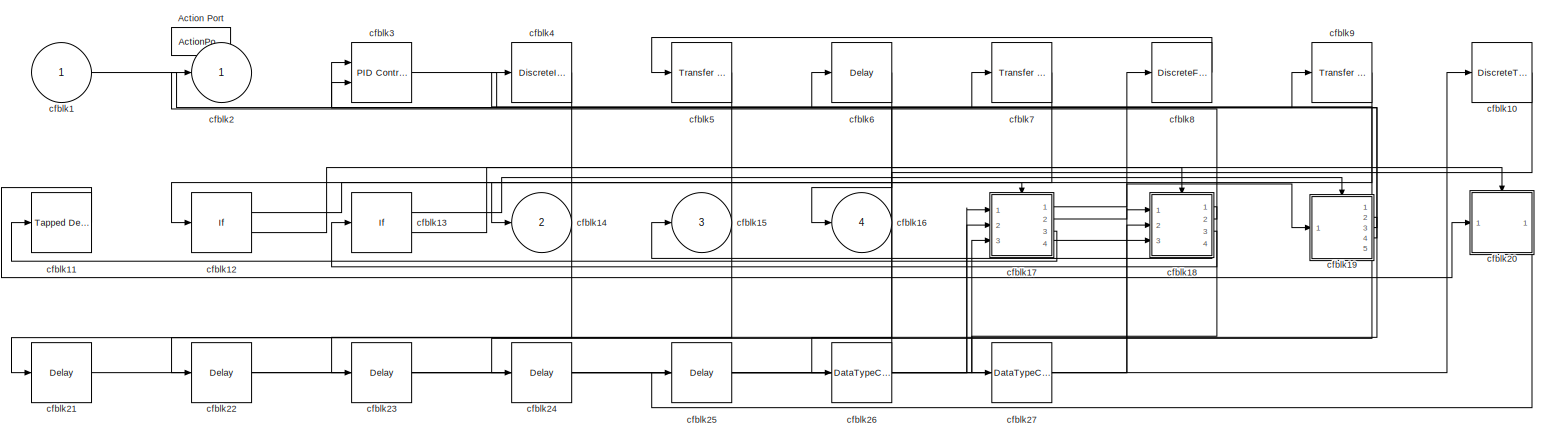
[diagram: cfblk239 - part 1/1, most of the canvas]
BLOCK [SubSystem] cfblk239
  Ports = [1, 4, 0, 0, 0, 0, 0, 1]
  RequestExecContextInheritance = off
  TreatAsAtomicUnit = on
  Variant = off
BLOCK [ActionPort] cfblk239/Action Port
  ActionType = else
BLOCK [Inport] cfblk239/cfblk1
  IconDisplay = Port number
BLOCK [DiscreteTransferFcn] cfblk239/cfblk10
  InputPortMap = u0
  Ports = [1, 1]
BLOCK [Reference] cfblk239/cfblk11  REF=simulink/Discrete/Tapped Delay
  Ports = [1, 1]
  SourceBlock = simulink/Discrete/Tapped Delay
  SourceProductBaseCode = SL
  SourceProductName = Simulink
  SourceType = Tapped Delay Line
BLOCK [If] cfblk239/cfblk12
  Ports = [1, 2]
  SampleTime = 1
BLOCK [If] cfblk239/cfblk13
  Ports = [1, 2]
  SampleTime = 1
BLOCK [Outport] cfblk239/cfblk14
  IconDisplay = Port number
  Port = 2
BLOCK [Outport] cfblk239/cfblk15
  IconDisplay = Port number
  Port = 3
BLOCK [Outport] cfblk239/cfblk16
  IconDisplay = Port number
  Port = 4
BLOCK [SubSystem] cfblk239/cfblk17
  Ports = [3, 4, 0, 0, 0, 0, 0, 1]
  RequestExecContextInheritance = off
  TreatAsAtomicUnit = on
  Variant = off
BLOCK [ActionPort] cfblk239/cfblk17/Action Port
  ActionType = then
BLOCK [Inport] cfblk239/cfblk17/cfblk1
  IconDisplay = Port number
BLOCK [Inport] cfblk239/cfblk17/cfblk10
  IconDisplay = Port number
  Port = 3
BLOCK [Outport] cfblk239/cfblk17/cfblk11
  IconDisplay = Port number
  Port = 2
BLOCK [Outport] cfblk239/cfblk17/cfblk12
  IconDisplay = Port number
  Port = 3
BLOCK [Outport] cfblk239/cfblk17/cfblk13
  IconDisplay = Port number
  Port = 4
BLOCK [Outport] cfblk239/cfblk17/cfblk2
  IconDisplay = Port number
BLOCK [DiscreteIntegrator] cfblk239/cfblk17/cfblk3
  ICPrevOutput = DiscIntNeverNeededParam
  ICPrevScaledInput = DiscIntNeverNeededParam
  InitialConditionSetting = State (most efficient)
  Ports = [1, 1]
  SampleTime = -1
BLOCK [Reference] cfblk239/cfblk17/cfblk4  REF=simulink/Discrete/Transfer Fcn
Real Zero
  Ports = [1, 1]
  SourceBlock = simulink/Discrete/Transfer Fcn\nReal Zero
  SourceProductBaseCode = SL
  SourceProductName = Simulink
  SourceType = Transfer Fcn Real Zero
BLOCK [Reference] cfblk239/cfblk17/cfblk5  REF=simulink/Discrete/Transfer Fcn
Lead or Lag
  Ports = [1, 1]
  SourceBlock = simulink/Discrete/Transfer Fcn\nLead or Lag
  SourceProductBaseCode = SL
  SourceProductName = Simulink
  SourceType = Lead or Lag Compensator
BLOCK [DiscreteStateSpace] cfblk239/cfblk17/cfblk6
  SampleTime = -1
BLOCK [Reference] cfblk239/cfblk17/cfblk7  REF=simulink/Discrete/Transfer Fcn
Lead or Lag
  Ports = [1, 1]
  SourceBlock = simulink/Discrete/Transfer Fcn\nLead or Lag
  SourceProductBaseCode = SL
  SourceProductName = Simulink
  SourceType = Lead or Lag Compensator
BLOCK [UnitDelay] cfblk239/cfblk17/cfblk8
  InputProcessing = Elements as channels (sample based)
  SampleTime = -1
BLOCK [Inport] cfblk239/cfblk17/cfblk9
  IconDisplay = Port number
  Port = 2
BLOCK [SubSystem] cfblk239/cfblk18
  Ports = [3, 4, 0, 0, 0, 0, 0, 1]
  RequestExecContextInheritance = off
  TreatAsAtomicUnit = on
  Variant = off
BLOCK [ActionPort] cfblk239/cfblk18/Action Port
  ActionType = else
BLOCK [Inport] cfblk239/cfblk18/cfblk1
  IconDisplay = Port number
BLOCK [Delay] cfblk239/cfblk18/cfblk10
  InputPortMap = u0
  Ports = [1, 1]
BLOCK [UnitDelay] cfblk239/cfblk18/cfblk11
  InputProcessing = Elements as channels (sample based)
  SampleTime = -1
BLOCK [DiscreteStateSpace] cfblk239/cfblk18/cfblk12
  SampleTime = -1
BLOCK [Inport] cfblk239/cfblk18/cfblk13
  IconDisplay = Port number
  Port = 2
BLOCK [Inport] cfblk239/cfblk18/cfblk14
  IconDisplay = Port number
  Port = 3
BLOCK [Outport] cfblk239/cfblk18/cfblk15
  IconDisplay = Port number
  Port = 2
BLOCK [Outport] cfblk239/cfblk18/cfblk16
  IconDisplay = Port number
  Port = 3
BLOCK [Outport] cfblk239/cfblk18/cfblk17
  IconDisplay = Port number
  Port = 4
BLOCK [Delay] cfblk239/cfblk18/cfblk18
  InputPortMap = u0
  Ports = [1, 1]
BLOCK [Outport] cfblk239/cfblk18/cfblk2
  IconDisplay = Port number
BLOCK [Reference] cfblk239/cfblk18/cfblk3  REF=simulink/Discrete/Tapped Delay
  Ports = [1, 1]
  SourceBlock = simulink/Discrete/Tapped Delay
  SourceProductBaseCode = SL
  SourceProductName = Simulink
  SourceType = Tapped Delay Line
BLOCK [Delay] cfblk239/cfblk18/cfblk4
  InputPortMap = u0
  Ports = [1, 1]
BLOCK [Reference] cfblk239/cfblk18/cfblk5  REF=simulink/Discrete/Tapped Delay
  Ports = [1, 1]
  SourceBlock = simulink/Discrete/Tapped Delay
  SourceProductBaseCode = SL
  SourceProductName = Simulink
  SourceType = Tapped Delay Line
BLOCK [DiscreteZeroPole] cfblk239/cfblk18/cfblk6
  Gain = 1
  Poles = [0 0.5]
  SampleTime = -1
BLOCK [Delay] cfblk239/cfblk18/cfblk7
  InputPortMap = u0
  Ports = [1, 1]
BLOCK [Reference] cfblk239/cfblk18/cfblk8  REF=simulink/Discrete/Tapped Delay
  Ports = [1, 1]
  SourceBlock = simulink/Discrete/Tapped Delay
  SourceProductBaseCode = SL
  SourceProductName = Simulink
  SourceType = Tapped Delay Line
BLOCK [Reference] cfblk239/cfblk18/cfblk9  REF=simulink/Discrete/Tapped Delay
  Ports = [1, 1]
  SourceBlock = simulink/Discrete/Tapped Delay
  SourceProductBaseCode = SL
  SourceProductName = Simulink
  SourceType = Tapped Delay Line
BLOCK [SubSystem] cfblk239/cfblk19
  Ports = [1, 5, 0, 0, 0, 0, 0, 1]
  RequestExecContextInheritance = off
  TreatAsAtomicUnit = on
  Variant = off
BLOCK [ActionPort] cfblk239/cfblk19/Action Port
  ActionType = then
BLOCK [Inport] cfblk239/cfblk19/cfblk1
  IconDisplay = Port number
BLOCK [Outport] cfblk239/cfblk19/cfblk10
  IconDisplay = Port number
  Port = 3
BLOCK [Outport] cfblk239/cfblk19/cfblk11
  IconDisplay = Port number
  Port = 4
BLOCK [Outport] cfblk239/cfblk19/cfblk12
  IconDisplay = Port number
  Port = 5
BLOCK [Delay] cfblk239/cfblk19/cfblk13
  InputPortMap = u0
  Ports = [1, 1]
BLOCK [Outport] cfblk239/cfblk19/cfblk2
  IconDisplay = Port number
BLOCK [Delay] cfblk239/cfblk19/cfblk3
  InputPortMap = u0,e6
  Ports = [2, 1]
  ShowEnablePort = on
BLOCK [Reference] cfblk239/cfblk19/cfblk4  REF=simulink/Discrete/Transfer Fcn
Real Zero
  Ports = [1, 1]
  SourceBlock = simulink/Discrete/Transfer Fcn\nReal Zero
  SourceProductBaseCode = SL
  SourceProductName = Simulink
  SourceType = Transfer Fcn Real Zero
BLOCK [DiscreteStateSpace] cfblk239/cfblk19/cfblk5
  SampleTime = -1
BLOCK [Reference] cfblk239/cfblk19/cfblk6  REF=simulink/Discrete/Difference
  Ports = [1, 1]
  SourceBlock = simulink/Discrete/Difference
  SourceProductBaseCode = SL
  SourceProductName = Simulink
  SourceType = Difference
BLOCK [Reference] cfblk239/cfblk19/cfblk7  REF=simulink/Continuous/PID Controller
  Ports = [1, 1]
  SourceBlock = simulink/Continuous/PID Controller
  SourceProductBaseCode = SL
  SourceProductName = Simulink
  SourceType = PID 1dof
BLOCK [DiscreteZeroPole] cfblk239/cfblk19/cfblk8
  Gain = 1
  Poles = [0 0.5]
  SampleTime = -1
BLOCK [Outport] cfblk239/cfblk19/cfblk9
  IconDisplay = Port number
  Port = 2
BLOCK [Outport] cfblk239/cfblk2
  IconDisplay = Port number
BLOCK [SubSystem] cfblk239/cfblk20
  Ports = [1, 1, 0, 0, 0, 0, 0, 1]
  RequestExecContextInheritance = off
  TreatAsAtomicUnit = on
  Variant = off
BLOCK [ActionPort] cfblk239/cfblk20/Action Port
  ActionType = else
BLOCK [Inport] cfblk239/cfblk20/cfblk1
  IconDisplay = Port number
BLOCK [Outport] cfblk239/cfblk20/cfblk2
  IconDisplay = Port number
BLOCK [DiscreteTransferFcn] cfblk239/cfblk20/cfblk3
  InputPortMap = u0
  Ports = [1, 1]
BLOCK [DiscreteFilter] cfblk239/cfblk20/cfblk4
  InputPortMap = u0
  Ports = [1, 1]
BLOCK [Reference] cfblk239/cfblk20/cfblk5  REF=simulink/Continuous/PID Controller
  Ports = [1, 1]
  SourceBlock = simulink/Continuous/PID Controller
  SourceProductBaseCode = SL
  SourceProductName = Simulink
  SourceType = PID 1dof
BLOCK [Reference] cfblk239/cfblk20/cfblk6  REF=simulink/Discrete/Tapped Delay
  Ports = [1, 1]
  SourceBlock = simulink/Discrete/Tapped Delay
  SourceProductBaseCode = SL
  SourceProductName = Simulink
  SourceType = Tapped Delay Line
BLOCK [Reference] cfblk239/cfblk20/cfblk7  REF=simulink/Discrete/Transfer Fcn
First Order
  Ports = [1, 1]
  SourceBlock = simulink/Discrete/Transfer Fcn\nFirst Order
  SourceProductBaseCode = SL
  SourceProductName = Simulink
  SourceType = First Order Transfer Fcn
BLOCK [Delay] cfblk239/cfblk21
  InputPortMap = u0
  Ports = [1, 1]
BLOCK [Delay] cfblk239/cfblk22
  InputPortMap = u0
  Ports = [1, 1]
BLOCK [Delay] cfblk239/cfblk23
  InputPortMap = u0
  Ports = [1, 1]
BLOCK [Delay] cfblk239/cfblk24
  InputPortMap = u0
  Ports = [1, 1]
BLOCK [Delay] cfblk239/cfblk25
  InputPortMap = u0
  Ports = [1, 1]
BLOCK [DataTypeConversion] cfblk239/cfblk26
  RndMeth = Floor
  SaturateOnIntegerOverflow = off
BLOCK [DataTypeConversion] cfblk239/cfblk27
  RndMeth = Floor
  SaturateOnIntegerOverflow = off
BLOCK [Reference] cfblk239/cfblk3  REF=simulink/Continuous/PID Controller (2DOF)
  Ports = [2, 1]
  SourceBlock = simulink/Continuous/PID Controller (2DOF)
  SourceProductBaseCode = SL
  SourceProductName = Simulink
  SourceType = PID 2dof
BLOCK [DiscreteIntegrator] cfblk239/cfblk4
  ICPrevOutput = DiscIntNeverNeededParam
  ICPrevScaledInput = DiscIntNeverNeededParam
  InitialConditionSetting = State (most efficient)
  Ports = [1, 1]
  SampleTime = -1
BLOCK [Reference] cfblk239/cfblk5  REF=simulink/Discrete/Transfer Fcn
Real Zero
  Ports = [1, 1]
  SourceBlock = simulink/Discrete/Transfer Fcn\nReal Zero
  SourceProductBaseCode = SL
  SourceProductName = Simulink
  SourceType = Transfer Fcn Real Zero
BLOCK [Delay] cfblk239/cfblk6
  InputPortMap = u0
  Ports = [1, 1]
BLOCK [Reference] cfblk239/cfblk7  REF=simulink/Discrete/Transfer Fcn
Lead or Lag
  Ports = [1, 1]
  SourceBlock = simulink/Discrete/Transfer Fcn\nLead or Lag
  SourceProductBaseCode = SL
  SourceProductName = Simulink
  SourceType = Lead or Lag Compensator
BLOCK [DiscreteFir] cfblk239/cfblk8
  InputPortMap = u0
  OutputPortMap = o0
  Ports = [1, 1]
BLOCK [Reference] cfblk239/cfblk9  REF=simulink/Discrete/Transfer Fcn
First Order
  Ports = [1, 1]
  SourceBlock = simulink/Discrete/Transfer Fcn\nFirst Order
  SourceProductBaseCode = SL
  SourceProductName = Simulink
  SourceType = First Order Transfer Fcn
BLOCK [DiscreteFilter] cfblk24
  InputPortMap = u0
  Ports = [1, 1]
  SampleTime = 1
BLOCK [SubSystem] cfblk240
  Ports = [1, 2, 0, 0, 0, 0, 0, 1]
  RequestExecContextInheritance = off
  TreatAsAtomicUnit = on
  Variant = off
BLOCK [ActionPort] cfblk240/Action Port
  ActionType = then
BLOCK [Inport] cfblk240/cfblk1
  IconDisplay = Port number
BLOCK [Outport] cfblk240/cfblk2
  IconDisplay = Port number
BLOCK [DiscreteStateSpace] cfblk240/cfblk3
  SampleTime = -1
BLOCK [Reference] cfblk240/cfblk4  REF=simulink/Discrete/Transfer Fcn
Lead or Lag
  Ports = [1, 1]
  SourceBlock = simulink/Discrete/Transfer Fcn\nLead or Lag
  SourceProductBaseCode = SL
  SourceProductName = Simulink
  SourceType = Lead or Lag Compensator
BLOCK [Delay] cfblk240/cfblk5
  InputPortMap = u0,e6
  Ports = [2, 1]
  ShowEnablePort = on
BLOCK [Reference] cfblk240/cfblk6  REF=simulink/Discrete/Transfer Fcn
Lead or Lag
  Ports = [1, 1]
  SourceBlock = simulink/Discrete/Transfer Fcn\nLead or Lag
  SourceProductBaseCode = SL
  SourceProductName = Simulink
  SourceType = Lead or Lag Compensator
BLOCK [DiscreteZeroPole] cfblk240/cfblk7
  Gain = 1
  Poles = [0 0.5]
  SampleTime = -1
BLOCK [Outport] cfblk240/cfblk8
  IconDisplay = Port number
  Port = 2
BLOCK [Delay] cfblk240/cfblk9
  InputPortMap = u0
  Ports = [1, 1]
BLOCK [SubSystem] cfblk241
  Ports = [1, 3, 0, 0, 0, 0, 0, 1]
  RequestExecContextInheritance = off
  TreatAsAtomicUnit = on
  Variant = off
BLOCK [ActionPort] cfblk241/Action Port
  ActionType = else
BLOCK [Inport] cfblk241/cfblk1
  IconDisplay = Port number
BLOCK [SubSystem] cfblk241/cfblk10
  Ports = [1, 2, 0, 0, 0, 0, 0, 1]
  RequestExecContextInheritance = off
  TreatAsAtomicUnit = on
  Variant = off
BLOCK [ActionPort] cfblk241/cfblk10/Action Port
  ActionType = else
BLOCK [Inport] cfblk241/cfblk10/cfblk1
  IconDisplay = Port number
BLOCK [Outport] cfblk241/cfblk10/cfblk2
  IconDisplay = Port number
BLOCK [Reference] cfblk241/cfblk10/cfblk3  REF=simulink/Continuous/PID Controller (2DOF)
  Ports = [2, 1]
  SourceBlock = simulink/Continuous/PID Controller (2DOF)
  SourceProductBaseCode = SL
  SourceProductName = Simulink
  SourceType = PID 2dof
BLOCK [DiscreteFir] cfblk241/cfblk10/cfblk4
  InputPortMap = u0
  OutputPortMap = o0
  Ports = [1, 1]
BLOCK [Reference] cfblk241/cfblk10/cfblk5  REF=simulink/Continuous/PID Controller
  Ports = [1, 1]
  SourceBlock = simulink/Continuous/PID Controller
  SourceProductBaseCode = SL
  SourceProductName = Simulink
  SourceType = PID 1dof
BLOCK [Reference] cfblk241/cfblk10/cfblk6  REF=simulink/Discrete/Difference
  Ports = [1, 1]
  SourceBlock = simulink/Discrete/Difference
  SourceProductBaseCode = SL
  SourceProductName = Simulink
  SourceType = Difference
BLOCK [Outport] cfblk241/cfblk10/cfblk7
  IconDisplay = Port number
  Port = 2
BLOCK [Delay] cfblk241/cfblk10/cfblk8
  InputPortMap = u0
  Ports = [1, 1]
BLOCK [Delay] cfblk241/cfblk11
  InputPortMap = u0
  Ports = [1, 1]
BLOCK [Delay] cfblk241/cfblk12
  InputPortMap = u0
  Ports = [1, 1]
BLOCK [Delay] cfblk241/cfblk13
  InputPortMap = u0
  Ports = [1, 1]
BLOCK [Outport] cfblk241/cfblk2
  IconDisplay = Port number
BLOCK [Reference] cfblk241/cfblk3  REF=simulink/Continuous/PID Controller (2DOF)
  Ports = [2, 1]
  SourceBlock = simulink/Continuous/PID Controller (2DOF)
  SourceProductBaseCode = SL
  SourceProductName = Simulink
  SourceType = PID 2dof
BLOCK [DiscreteIntegrator] cfblk241/cfblk4
  ICPrevOutput = DiscIntNeverNeededParam
  ICPrevScaledInput = DiscIntNeverNeededParam
  InitialConditionSetting = State (most efficient)
  Ports = [1, 1]
  SampleTime = -1
BLOCK [DiscreteTransferFcn] cfblk241/cfblk5
  InputPortMap = u0
  Ports = [1, 1]
BLOCK [If] cfblk241/cfblk6
  Ports = [1, 2]
  SampleTime = 1
BLOCK [Outport] cfblk241/cfblk7
  IconDisplay = Port number
  Port = 2
BLOCK [Outport] cfblk241/cfblk8
  IconDisplay = Port number
  Port = 3
BLOCK [SubSystem] cfblk241/cfblk9
  Ports = [1, 2, 0, 0, 0, 0, 0, 1]
  RequestExecContextInheritance = off
  TreatAsAtomicUnit = on
  Variant = off
BLOCK [ActionPort] cfblk241/cfblk9/Action Port
  ActionType = then
BLOCK [Inport] cfblk241/cfblk9/cfblk1
  IconDisplay = Port number
BLOCK [Reference] cfblk241/cfblk9/cfblk10  REF=simulink/Continuous/PID Controller (2DOF)
  Ports = [2, 1]
  SourceBlock = simulink/Continuous/PID Controller (2DOF)
  SourceProductBaseCode = SL
  SourceProductName = Simulink
  SourceType = PID 2dof
BLOCK [Reference] cfblk241/cfblk9/cfblk11  REF=simulink/Discrete/Transfer Fcn
Real Zero
  Ports = [1, 1]
  SourceBlock = simulink/Discrete/Transfer Fcn\nReal Zero
  SourceProductBaseCode = SL
  SourceProductName = Simulink
  SourceType = Transfer Fcn Real Zero
BLOCK [Outport] cfblk241/cfblk9/cfblk12
  IconDisplay = Port number
  Port = 2
BLOCK [Delay] cfblk241/cfblk9/cfblk13
  InputPortMap = u0
  Ports = [1, 1]
BLOCK [Outport] cfblk241/cfblk9/cfblk2
  IconDisplay = Port number
BLOCK [DiscreteIntegrator] cfblk241/cfblk9/cfblk3
  ICPrevOutput = DiscIntNeverNeededParam
  ICPrevScaledInput = DiscIntNeverNeededParam
  InitialConditionSetting = State (most efficient)
  Ports = [1, 1]
  SampleTime = -1
BLOCK [DiscreteStateSpace] cfblk241/cfblk9/cfblk4
  SampleTime = -1
BLOCK [DiscreteFilter] cfblk241/cfblk9/cfblk5
  InputPortMap = u0
  Ports = [1, 1]
BLOCK [Delay] cfblk241/cfblk9/cfblk6
  DelayLengthSource = Input port
  InputPortMap = u0,p1
  Ports = [2, 1]
BLOCK [DiscreteFilter] cfblk241/cfblk9/cfblk7
  InputPortMap = u0
  Ports = [1, 1]
BLOCK [DiscreteZeroPole] cfblk241/cfblk9/cfblk8
  Gain = 1
  Poles = [0 0.5]
  SampleTime = -1
BLOCK [Reference] cfblk241/cfblk9/cfblk9  REF=simulink/Discrete/Difference
  Ports = [1, 1]
  SourceBlock = simulink/Discrete/Difference
  SourceProductBaseCode = SL
  SourceProductName = Simulink
  SourceType = Difference
BLOCK [SubSystem] cfblk242
  Ports = [2, 2, 0, 0, 0, 0, 0, 1]
  RequestExecContextInheritance = off
  TreatAsAtomicUnit = on
  Variant = off
BLOCK [ActionPort] cfblk242/Action Port
  ActionType = then
BLOCK [Inport] cfblk242/cfblk1
  IconDisplay = Port number
BLOCK [Outport] cfblk242/cfblk10
  IconDisplay = Port number
  Port = 2
BLOCK [Delay] cfblk242/cfblk11
  InputPortMap = u0
  Ports = [1, 1]
BLOCK [Delay] cfblk242/cfblk12
  InputPortMap = u0
  Ports = [1, 1]
BLOCK [Outport] cfblk242/cfblk2
  IconDisplay = Port number
BLOCK [DiscreteFir] cfblk242/cfblk3
  InputPortMap = u0
  OutputPortMap = o0
  Ports = [1, 1]
BLOCK [Reference] cfblk242/cfblk4  REF=simulink/Discrete/Transfer Fcn
First Order
  Ports = [1, 1]
  SourceBlock = simulink/Discrete/Transfer Fcn\nFirst Order
  SourceProductBaseCode = SL
  SourceProductName = Simulink
  SourceType = First Order Transfer Fcn
BLOCK [Reference] cfblk242/cfblk5  REF=simulink/Discrete/Transfer Fcn
Real Zero
  Ports = [1, 1]
  SourceBlock = simulink/Discrete/Transfer Fcn\nReal Zero
  SourceProductBaseCode = SL
  SourceProductName = Simulink
  SourceType = Transfer Fcn Real Zero
BLOCK [Delay] cfblk242/cfblk6
  DelayLengthSource = Input port
  InputPortMap = u0,p1
  Ports = [2, 1]
BLOCK [Delay] cfblk242/cfblk7
  InputPortMap = u0,e6
  Ports = [2, 1]
  ShowEnablePort = on
BLOCK [Delay] cfblk242/cfblk8
  DelayLengthSource = Input port
  InputPortMap = u0,p1
  Ports = [2, 1]
BLOCK [Inport] cfblk242/cfblk9
  IconDisplay = Port number
  Port = 2
BLOCK [SubSystem] cfblk243
  Ports = [2, 5, 0, 0, 0, 0, 0, 1]
  RequestExecContextInheritance = off
  TreatAsAtomicUnit = on
  Variant = off
BLOCK [ActionPort] cfblk243/Action Port
  ActionType = else
BLOCK [Inport] cfblk243/cfblk1
  IconDisplay = Port number
BLOCK [DiscreteIntegrator] cfblk243/cfblk10
  ICPrevOutput = DiscIntNeverNeededParam
  ICPrevScaledInput = DiscIntNeverNeededParam
  InitialConditionSetting = State (most efficient)
  Ports = [1, 1]
  SampleTime = -1
BLOCK [Reference] cfblk243/cfblk11  REF=simulink/Discrete/Transfer Fcn
First Order
  Ports = [1, 1]
  SourceBlock = simulink/Discrete/Transfer Fcn\nFirst Order
  SourceProductBaseCode = SL
  SourceProductName = Simulink
  SourceType = First Order Transfer Fcn
BLOCK [Reference] cfblk243/cfblk12  REF=simulink/Continuous/PID Controller (2DOF)
  Ports = [2, 1]
  SourceBlock = simulink/Continuous/PID Controller (2DOF)
  SourceProductBaseCode = SL
  SourceProductName = Simulink
  SourceType = PID 2dof
BLOCK [Inport] cfblk243/cfblk13
  IconDisplay = Port number
  Port = 2
BLOCK [Outport] cfblk243/cfblk14
  IconDisplay = Port number
  Port = 2
BLOCK [Outport] cfblk243/cfblk15
  IconDisplay = Port number
  Port = 3
BLOCK [Outport] cfblk243/cfblk16
  IconDisplay = Port number
  Port = 4
BLOCK [Outport] cfblk243/cfblk17
  IconDisplay = Port number
  Port = 5
BLOCK [Outport] cfblk243/cfblk2
  IconDisplay = Port number
BLOCK [UnitDelay] cfblk243/cfblk3
  InputProcessing = Elements as channels (sample based)
  SampleTime = -1
BLOCK [Reference] cfblk243/cfblk4  REF=simulink/Continuous/PID Controller (2DOF)
  Ports = [2, 1]
  SourceBlock = simulink/Continuous/PID Controller (2DOF)
  SourceProductBaseCode = SL
  SourceProductName = Simulink
  SourceType = PID 2dof
BLOCK [DiscreteFilter] cfblk243/cfblk5
  InputPortMap = u0
  Ports = [1, 1]
BLOCK [Delay] cfblk243/cfblk6
  InputPortMap = u0
  Ports = [1, 1]
BLOCK [DiscreteFir] cfblk243/cfblk7
  InputPortMap = u0
  OutputPortMap = o0
  Ports = [1, 1]
BLOCK [UnitDelay] cfblk243/cfblk8
  InputProcessing = Elements as channels (sample based)
  SampleTime = -1
BLOCK [Delay] cfblk243/cfblk9
  InputPortMap = u0,e6
  Ports = [2, 1]
  ShowEnablePort = on
BLOCK [SubSystem] cfblk244
  Ports = [2, 1, 0, 0, 0, 0, 0, 1]
  RequestExecContextInheritance = off
  TreatAsAtomicUnit = on
  Variant = off
BLOCK [ActionPort] cfblk244/Action Port
  ActionType = then
BLOCK [Inport] cfblk244/cfblk1
  IconDisplay = Port number
BLOCK [Outport] cfblk244/cfblk2
  IconDisplay = Port number
BLOCK [DiscreteFilter] cfblk244/cfblk3
  InputPortMap = u0
  Ports = [1, 1]
BLOCK [Delay] cfblk244/cfblk4
  DelayLengthSource = Input port
  InputPortMap = u0,p1
  Ports = [2, 1]
BLOCK [DiscreteFilter] cfblk244/cfblk5
  InputPortMap = u0
  Ports = [1, 1]
BLOCK [UnitDelay] cfblk244/cfblk6
  InputProcessing = Elements as channels (sample based)
  SampleTime = -1
BLOCK [Inport] cfblk244/cfblk7
  IconDisplay = Port number
  Port = 2
BLOCK [Delay] cfblk244/cfblk8
  InputPortMap = u0
  Ports = [1, 1]
BLOCK [SubSystem] cfblk245
  Ports = [3, 1, 0, 0, 0, 0, 0, 1]
  RequestExecContextInheritance = off
  TreatAsAtomicUnit = on
  Variant = off
BLOCK [ActionPort] cfblk245/Action Port
  ActionType = else
BLOCK [Inport] cfblk245/cfblk1
  IconDisplay = Port number
BLOCK [SubSystem] cfblk245/cfblk10
  Ports = [1, 1, 0, 0, 0, 0, 0, 1]
  RequestExecContextInheritance = off
  TreatAsAtomicUnit = on
  Variant = off
BLOCK [ActionPort] cfblk245/cfblk10/Action Port
  ActionType = then
BLOCK [Inport] cfblk245/cfblk10/cfblk1
  IconDisplay = Port number
BLOCK [Outport] cfblk245/cfblk10/cfblk2
  IconDisplay = Port number
BLOCK [Reference] cfblk245/cfblk10/cfblk3  REF=simulink/Continuous/PID Controller
  Ports = [1, 1]
  SourceBlock = simulink/Continuous/PID Controller
  SourceProductBaseCode = SL
  SourceProductName = Simulink
  SourceType = PID 1dof
BLOCK [DiscreteZeroPole] cfblk245/cfblk10/cfblk4
  Gain = 1
  Poles = [0 0.5]
  SampleTime = -1
BLOCK [UnitDelay] cfblk245/cfblk10/cfblk5
  InputProcessing = Elements as channels (sample based)
  SampleTime = -1
BLOCK [DiscreteFilter] cfblk245/cfblk10/cfblk6
  InputPortMap = u0
  Ports = [1, 1]
BLOCK [UnitDelay] cfblk245/cfblk10/cfblk7
  InputProcessing = Elements as channels (sample based)
  SampleTime = -1
BLOCK [SubSystem] cfblk245/cfblk11
  Ports = [2, 3, 0, 0, 0, 0, 0, 1]
  RequestExecContextInheritance = off
  TreatAsAtomicUnit = on
  Variant = off
BLOCK [ActionPort] cfblk245/cfblk11/Action Port
  ActionType = else
BLOCK [Inport] cfblk245/cfblk11/cfblk1
  IconDisplay = Port number
BLOCK [DiscreteIntegrator] cfblk245/cfblk11/cfblk10
  ICPrevOutput = DiscIntNeverNeededParam
  ICPrevScaledInput = DiscIntNeverNeededParam
  InitialConditionSetting = State (most efficient)
  Ports = [1, 1]
  SampleTime = -1
BLOCK [DiscreteFir] cfblk245/cfblk11/cfblk11
  InputPortMap = u0
  OutputPortMap = o0
  Ports = [1, 1]
BLOCK [Inport] cfblk245/cfblk11/cfblk12
  IconDisplay = Port number
  Port = 2
BLOCK [Outport] cfblk245/cfblk11/cfblk13
  IconDisplay = Port number
  Port = 2
BLOCK [Outport] cfblk245/cfblk11/cfblk14
  IconDisplay = Port number
  Port = 3
BLOCK [Delay] cfblk245/cfblk11/cfblk15
  InputPortMap = u0
  Ports = [1, 1]
BLOCK [Delay] cfblk245/cfblk11/cfblk16
  InputPortMap = u0
  Ports = [1, 1]
BLOCK [Delay] cfblk245/cfblk11/cfblk17
  InputPortMap = u0
  Ports = [1, 1]
BLOCK [Outport] cfblk245/cfblk11/cfblk2
  IconDisplay = Port number
BLOCK [Reference] cfblk245/cfblk11/cfblk3  REF=simulink/Discrete/Transfer Fcn
First Order
  Ports = [1, 1]
  SourceBlock = simulink/Discrete/Transfer Fcn\nFirst Order
  SourceProductBaseCode = SL
  SourceProductName = Simulink
  SourceType = First Order Transfer Fcn
BLOCK [UnitDelay] cfblk245/cfblk11/cfblk4
  InputProcessing = Elements as channels (sample based)
  SampleTime = -1
BLOCK [Reference] cfblk245/cfblk11/cfblk5  REF=simulink/Discrete/Transfer Fcn
First Order
  Ports = [1, 1]
  SourceBlock = simulink/Discrete/Transfer Fcn\nFirst Order
  SourceProductBaseCode = SL
  SourceProductName = Simulink
  SourceType = First Order Transfer Fcn
BLOCK [Reference] cfblk245/cfblk11/cfblk6  REF=simulink/Continuous/PID Controller
  Ports = [1, 1]
  SourceBlock = simulink/Continuous/PID Controller
  SourceProductBaseCode = SL
  SourceProductName = Simulink
  SourceType = PID 1dof
BLOCK [Reference] cfblk245/cfblk11/cfblk7  REF=simulink/Discrete/Transfer Fcn
Lead or Lag
  Ports = [1, 1]
  SourceBlock = simulink/Discrete/Transfer Fcn\nLead or Lag
  SourceProductBaseCode = SL
  SourceProductName = Simulink
  SourceType = Lead or Lag Compensator
BLOCK [Delay] cfblk245/cfblk11/cfblk8
  InputPortMap = u0,e6
  Ports = [2, 1]
  ShowEnablePort = on
BLOCK [DiscreteStateSpace] cfblk245/cfblk11/cfblk9
  SampleTime = -1
BLOCK [Delay] cfblk245/cfblk12
  InputPortMap = u0
  Ports = [1, 1]
BLOCK [Outport] cfblk245/cfblk2
  IconDisplay = Port number
BLOCK [Reference] cfblk245/cfblk3  REF=simulink/Continuous/PID Controller
  Ports = [1, 1]
  SourceBlock = simulink/Continuous/PID Controller
  SourceProductBaseCode = SL
  SourceProductName = Simulink
  SourceType = PID 1dof
BLOCK [DiscreteZeroPole] cfblk245/cfblk4
  Gain = 1
  Poles = [0 0.5]
  SampleTime = -1
BLOCK [Reference] cfblk245/cfblk5  REF=simulink/Continuous/PID Controller (2DOF)
  Ports = [2, 1]
  SourceBlock = simulink/Continuous/PID Controller (2DOF)
  SourceProductBaseCode = SL
  SourceProductName = Simulink
  SourceType = PID 2dof
BLOCK [DiscreteZeroPole] cfblk245/cfblk6
  Gain = 1
  Poles = [0 0.5]
  SampleTime = -1
BLOCK [If] cfblk245/cfblk7
  Ports = [1, 2]
  SampleTime = 1
BLOCK [Inport] cfblk245/cfblk8
  IconDisplay = Port number
  Port = 2
BLOCK [Inport] cfblk245/cfblk9
  IconDisplay = Port number
  Port = 3
BLOCK [SubSystem] cfblk246
  Ports = [1, 3, 0, 0, 0, 0, 0, 1]
  RequestExecContextInheritance = off
  TreatAsAtomicUnit = on
  Variant = off
BLOCK [ActionPort] cfblk246/Action Port
  ActionType = then
BLOCK [Inport] cfblk246/cfblk1
  IconDisplay = Port number
BLOCK [Outport] cfblk246/cfblk10
  IconDisplay = Port number
  Port = 3
BLOCK [SubSystem] cfblk246/cfblk11
  Ports = [1, 1, 0, 0, 0, 0, 0, 1]
  RequestExecContextInheritance = off
  TreatAsAtomicUnit = on
  Variant = off
BLOCK [ActionPort] cfblk246/cfblk11/Action Port
  ActionType = then
BLOCK [Inport] cfblk246/cfblk11/cfblk1
  IconDisplay = Port number
BLOCK [Delay] cfblk246/cfblk11/cfblk10
  InputPortMap = u0
  Ports = [1, 1]
BLOCK [Outport] cfblk246/cfblk11/cfblk2
  IconDisplay = Port number
BLOCK [DiscreteStateSpace] cfblk246/cfblk11/cfblk3
  SampleTime = -1
BLOCK [Delay] cfblk246/cfblk11/cfblk4
  DelayLengthSource = Input port
  InputPortMap = u0,p1
  Ports = [2, 1]
BLOCK [DiscreteFir] cfblk246/cfblk11/cfblk5
  InputPortMap = u0
  OutputPortMap = o0
  Ports = [1, 1]
BLOCK [DiscreteZeroPole] cfblk246/cfblk11/cfblk6
  Gain = 1
  Poles = [0 0.5]
  SampleTime = -1
BLOCK [DiscreteTransferFcn] cfblk246/cfblk11/cfblk7
  InputPortMap = u0
  Ports = [1, 1]
BLOCK [Reference] cfblk246/cfblk11/cfblk8  REF=simulink/Continuous/PID Controller
  Ports = [1, 1]
  SourceBlock = simulink/Continuous/PID Controller
  SourceProductBaseCode = SL
  SourceProductName = Simulink
  SourceType = PID 1dof
BLOCK [Delay] cfblk246/cfblk11/cfblk9
  InputPortMap = u0
  Ports = [1, 1]
BLOCK [SubSystem] cfblk246/cfblk12
  Ports = [2, 2, 0, 0, 0, 0, 0, 1]
  RequestExecContextInheritance = off
  TreatAsAtomicUnit = on
  Variant = off
BLOCK [ActionPort] cfblk246/cfblk12/Action Port
  ActionType = else
BLOCK [Inport] cfblk246/cfblk12/cfblk1
  IconDisplay = Port number
BLOCK [DiscreteTransferFcn] cfblk246/cfblk12/cfblk10
  InputPortMap = u0
  Ports = [1, 1]
BLOCK [Reference] cfblk246/cfblk12/cfblk11  REF=simulink/Discrete/Transfer Fcn
Real Zero
  Ports = [1, 1]
  SourceBlock = simulink/Discrete/Transfer Fcn\nReal Zero
  SourceProductBaseCode = SL
  SourceProductName = Simulink
  SourceType = Transfer Fcn Real Zero
BLOCK [Reference] cfblk246/cfblk12/cfblk12  REF=simulink/Discrete/Transfer Fcn
First Order
  Ports = [1, 1]
  SourceBlock = simulink/Discrete/Transfer Fcn\nFirst Order
  SourceProductBaseCode = SL
  SourceProductName = Simulink
  SourceType = First Order Transfer Fcn
BLOCK [Reference] cfblk246/cfblk12/cfblk13  REF=simulink/Discrete/Transfer Fcn
First Order
  Ports = [1, 1]
  SourceBlock = simulink/Discrete/Transfer Fcn\nFirst Order
  SourceProductBaseCode = SL
  SourceProductName = Simulink
  SourceType = First Order Transfer Fcn
BLOCK [Inport] cfblk246/cfblk12/cfblk14
  IconDisplay = Port number
  Port = 2
BLOCK [Outport] cfblk246/cfblk12/cfblk15
  IconDisplay = Port number
  Port = 2
BLOCK [Delay] cfblk246/cfblk12/cfblk16
  InputPortMap = u0
  Ports = [1, 1]
BLOCK [Outport] cfblk246/cfblk12/cfblk2
  IconDisplay = Port number
BLOCK [DiscreteTransferFcn] cfblk246/cfblk12/cfblk3
  InputPortMap = u0
  Ports = [1, 1]
BLOCK [Reference] cfblk246/cfblk12/cfblk4  REF=simulink/Discrete/Transfer Fcn
First Order
  Ports = [1, 1]
  SourceBlock = simulink/Discrete/Transfer Fcn\nFirst Order
  SourceProductBaseCode = SL
  SourceProductName = Simulink
  SourceType = First Order Transfer Fcn
BLOCK [Reference] cfblk246/cfblk12/cfblk5  REF=simulink/Discrete/Transfer Fcn
Real Zero
  Ports = [1, 1]
  SourceBlock = simulink/Discrete/Transfer Fcn\nReal Zero
  SourceProductBaseCode = SL
  SourceProductName = Simulink
  SourceType = Transfer Fcn Real Zero
BLOCK [Reference] cfblk246/cfblk12/cfblk6  REF=simulink/Discrete/Transfer Fcn
Real Zero
  Ports = [1, 1]
  SourceBlock = simulink/Discrete/Transfer Fcn\nReal Zero
  SourceProductBaseCode = SL
  SourceProductName = Simulink
  SourceType = Transfer Fcn Real Zero
BLOCK [DiscreteTransferFcn] cfblk246/cfblk12/cfblk7
  InputPortMap = u0
  Ports = [1, 1]
BLOCK [DiscreteIntegrator] cfblk246/cfblk12/cfblk8
  ICPrevOutput = DiscIntNeverNeededParam
  ICPrevScaledInput = DiscIntNeverNeededParam
  InitialConditionSetting = State (most efficient)
  Ports = [1, 1]
  SampleTime = -1
BLOCK [Reference] cfblk246/cfblk12/cfblk9  REF=simulink/Discrete/Transfer Fcn
Lead or Lag
  Ports = [1, 1]
  SourceBlock = simulink/Discrete/Transfer Fcn\nLead or Lag
  SourceProductBaseCode = SL
  SourceProductName = Simulink
  SourceType = Lead or Lag Compensator
BLOCK [Delay] cfblk246/cfblk13
  InputPortMap = u0
  Ports = [1, 1]
BLOCK [Delay] cfblk246/cfblk14
  InputPortMap = u0
  Ports = [1, 1]
BLOCK [Delay] cfblk246/cfblk15
  InputPortMap = u0
  Ports = [1, 1]
BLOCK [Delay] cfblk246/cfblk16
  InputPortMap = u0
  Ports = [1, 1]
BLOCK [Outport] cfblk246/cfblk2
  IconDisplay = Port number
BLOCK [DiscreteTransferFcn] cfblk246/cfblk3
  InputPortMap = u0
  Ports = [1, 1]
BLOCK [Reference] cfblk246/cfblk4  REF=simulink/Discrete/Transfer Fcn
Lead or Lag
  Ports = [1, 1]
  SourceBlock = simulink/Discrete/Transfer Fcn\nLead or Lag
  SourceProductBaseCode = SL
  SourceProductName = Simulink
  SourceType = Lead or Lag Compensator
BLOCK [Reference] cfblk246/cfblk5  REF=simulink/Continuous/PID Controller (2DOF)
  Ports = [2, 1]
  SourceBlock = simulink/Continuous/PID Controller (2DOF)
  SourceProductBaseCode = SL
  SourceProductName = Simulink
  SourceType = PID 2dof
BLOCK [Reference] cfblk246/cfblk6  REF=simulink/Discrete/Transfer Fcn
Lead or Lag
  Ports = [1, 1]
  SourceBlock = simulink/Discrete/Transfer Fcn\nLead or Lag
  SourceProductBaseCode = SL
  SourceProductName = Simulink
  SourceType = Lead or Lag Compensator
BLOCK [DiscreteIntegrator] cfblk246/cfblk7
  ICPrevOutput = DiscIntNeverNeededParam
  ICPrevScaledInput = DiscIntNeverNeededParam
  InitialConditionSetting = State (most efficient)
  Ports = [1, 1]
  SampleTime = -1
BLOCK [If] cfblk246/cfblk8
  Ports = [1, 2]
  SampleTime = 1
BLOCK [Outport] cfblk246/cfblk9
  IconDisplay = Port number
  Port = 2
BLOCK [SubSystem] cfblk247
  Ports = [2, 3, 0, 0, 0, 0, 0, 1]
  RequestExecContextInheritance = off
  TreatAsAtomicUnit = on
  Variant = off
BLOCK [ActionPort] cfblk247/Action Port
  ActionType = else
BLOCK [Inport] cfblk247/cfblk1
  IconDisplay = Port number
BLOCK [Reference] cfblk247/cfblk10  REF=simulink/Continuous/PID Controller (2DOF)
  Ports = [2, 1]
  SourceBlock = simulink/Continuous/PID Controller (2DOF)
  SourceProductBaseCode = SL
  SourceProductName = Simulink
  SourceType = PID 2dof
BLOCK [Reference] cfblk247/cfblk11  REF=simulink/Discrete/Difference
  Ports = [1, 1]
  SourceBlock = simulink/Discrete/Difference
  SourceProductBaseCode = SL
  SourceProductName = Simulink
  SourceType = Difference
BLOCK [UnitDelay] cfblk247/cfblk12
  InputProcessing = Elements as channels (sample based)
  SampleTime = -1
BLOCK [Reference] cfblk247/cfblk13  REF=simulink/Discrete/Difference
  Ports = [1, 1]
  SourceBlock = simulink/Discrete/Difference
  SourceProductBaseCode = SL
  SourceProductName = Simulink
  SourceType = Difference
BLOCK [DiscreteFir] cfblk247/cfblk14
  InputPortMap = u0
  OutputPortMap = o0
  Ports = [1, 1]
BLOCK [Inport] cfblk247/cfblk15
  IconDisplay = Port number
  Port = 2
BLOCK [Outport] cfblk247/cfblk16
  IconDisplay = Port number
  Port = 2
BLOCK [Outport] cfblk247/cfblk17
  IconDisplay = Port number
  Port = 3
BLOCK [Delay] cfblk247/cfblk18
  InputPortMap = u0
  Ports = [1, 1]
BLOCK [Delay] cfblk247/cfblk19
  InputPortMap = u0
  Ports = [1, 1]
BLOCK [Outport] cfblk247/cfblk2
  IconDisplay = Port number
BLOCK [Delay] cfblk247/cfblk20
  InputPortMap = u0
  Ports = [1, 1]
BLOCK [Delay] cfblk247/cfblk21
  InputPortMap = u0
  Ports = [1, 1]
BLOCK [Reference] cfblk247/cfblk3  REF=simulink/Discrete/Transfer Fcn
Lead or Lag
  Ports = [1, 1]
  SourceBlock = simulink/Discrete/Transfer Fcn\nLead or Lag
  SourceProductBaseCode = SL
  SourceProductName = Simulink
  SourceType = Lead or Lag Compensator
BLOCK [Delay] cfblk247/cfblk4
  InputPortMap = u0,e6
  Ports = [2, 1]
  ShowEnablePort = on
BLOCK [Delay] cfblk247/cfblk5
  InputPortMap = u0,e6
  Ports = [2, 1]
  ShowEnablePort = on
BLOCK [DiscreteTransferFcn] cfblk247/cfblk6
  InputPortMap = u0
  Ports = [1, 1]
BLOCK [Delay] cfblk247/cfblk7
  InputPortMap = u0,e6
  Ports = [2, 1]
  ShowEnablePort = on
BLOCK [Reference] cfblk247/cfblk8  REF=simulink/Discrete/Tapped Delay
  Ports = [1, 1]
  SourceBlock = simulink/Discrete/Tapped Delay
  SourceProductBaseCode = SL
  SourceProductName = Simulink
  SourceType = Tapped Delay Line
BLOCK [DiscreteFir] cfblk247/cfblk9
  InputPortMap = u0
  OutputPortMap = o0
  Ports = [1, 1]
BLOCK [SubSystem] cfblk248
  Ports = [1, 2, 0, 0, 0, 0, 0, 1]
  RequestExecContextInheritance = off
  TreatAsAtomicUnit = on
  Variant = off
BLOCK [ActionPort] cfblk248/Action Port
  ActionType = then
BLOCK [Inport] cfblk248/cfblk1
  IconDisplay = Port number
BLOCK [If] cfblk248/cfblk10
  Ports = [1, 2]
  SampleTime = 1
BLOCK [Outport] cfblk248/cfblk11
  IconDisplay = Port number
  Port = 2
BLOCK [SubSystem] cfblk248/cfblk12
  Ports = [2, 3, 0, 0, 0, 0, 0, 1]
  RequestExecContextInheritance = off
  TreatAsAtomicUnit = on
  Variant = off
BLOCK [ActionPort] cfblk248/cfblk12/Action Port
  ActionType = then
BLOCK [Inport] cfblk248/cfblk12/cfblk1
  IconDisplay = Port number
BLOCK [Delay] cfblk248/cfblk12/cfblk10
  InputPortMap = u0,e6
  Ports = [2, 1]
  ShowEnablePort = on
BLOCK [Reference] cfblk248/cfblk12/cfblk11  REF=simulink/Discrete/Transfer Fcn
Lead or Lag
  Ports = [1, 1]
  SourceBlock = simulink/Discrete/Transfer Fcn\nLead or Lag
  SourceProductBaseCode = SL
  SourceProductName = Simulink
  SourceType = Lead or Lag Compensator
BLOCK [Inport] cfblk248/cfblk12/cfblk12
  IconDisplay = Port number
  Port = 2
BLOCK [Outport] cfblk248/cfblk12/cfblk13
  IconDisplay = Port number
  Port = 2
BLOCK [Outport] cfblk248/cfblk12/cfblk14
  IconDisplay = Port number
  Port = 3
BLOCK [Outport] cfblk248/cfblk12/cfblk2
  IconDisplay = Port number
BLOCK [Reference] cfblk248/cfblk12/cfblk3  REF=simulink/Discrete/Transfer Fcn
First Order
  Ports = [1, 1]
  SourceBlock = simulink/Discrete/Transfer Fcn\nFirst Order
  SourceProductBaseCode = SL
  SourceProductName = Simulink
  SourceType = First Order Transfer Fcn
BLOCK [Delay] cfblk248/cfblk12/cfblk4
  InputPortMap = u0
  Ports = [1, 1]
BLOCK [Reference] cfblk248/cfblk12/cfblk5  REF=simulink/Discrete/Tapped Delay
  Ports = [1, 1]
  SourceBlock = simulink/Discrete/Tapped Delay
  SourceProductBaseCode = SL
  SourceProductName = Simulink
  SourceType = Tapped Delay Line
BLOCK [Reference] cfblk248/cfblk12/cfblk6  REF=simulink/Discrete/Tapped Delay
  Ports = [1, 1]
  SourceBlock = simulink/Discrete/Tapped Delay
  SourceProductBaseCode = SL
  SourceProductName = Simulink
  SourceType = Tapped Delay Line
BLOCK [Delay] cfblk248/cfblk12/cfblk7
  InputPortMap = u0
  Ports = [1, 1]
BLOCK [DiscreteTransferFcn] cfblk248/cfblk12/cfblk8
  InputPortMap = u0
  Ports = [1, 1]
BLOCK [Delay] cfblk248/cfblk12/cfblk9
  InputPortMap = u0,e6
  Ports = [2, 1]
  ShowEnablePort = on
BLOCK [SubSystem] cfblk248/cfblk13
  Ports = [1, 1, 0, 0, 0, 0, 0, 1]
  RequestExecContextInheritance = off
  TreatAsAtomicUnit = on
  Variant = off
BLOCK [ActionPort] cfblk248/cfblk13/Action Port
  ActionType = else
BLOCK [Inport] cfblk248/cfblk13/cfblk1
  IconDisplay = Port number
BLOCK [Delay] cfblk248/cfblk13/cfblk10
  InputPortMap = u0
  Ports = [1, 1]
BLOCK [Outport] cfblk248/cfblk13/cfblk2
  IconDisplay = Port number
BLOCK [DiscreteFilter] cfblk248/cfblk13/cfblk3
  InputPortMap = u0
  Ports = [1, 1]
BLOCK [Delay] cfblk248/cfblk13/cfblk4
  InputPortMap = u0,e6
  Ports = [2, 1]
  ShowEnablePort = on
BLOCK [Reference] cfblk248/cfblk13/cfblk5  REF=simulink/Discrete/Transfer Fcn
First Order
  Ports = [1, 1]
  SourceBlock = simulink/Discrete/Transfer Fcn\nFirst Order
  SourceProductBaseCode = SL
  SourceProductName = Simulink
  SourceType = First Order Transfer Fcn
BLOCK [DiscreteTransferFcn] cfblk248/cfblk13/cfblk6
  InputPortMap = u0
  Ports = [1, 1]
BLOCK [Reference] cfblk248/cfblk13/cfblk7  REF=simulink/Discrete/Difference
  Ports = [1, 1]
  SourceBlock = simulink/Discrete/Difference
  SourceProductBaseCode = SL
  SourceProductName = Simulink
  SourceType = Difference
BLOCK [DiscreteZeroPole] cfblk248/cfblk13/cfblk8
  Gain = 1
  Poles = [0 0.5]
  SampleTime = -1
BLOCK [DiscreteTransferFcn] cfblk248/cfblk13/cfblk9
  InputPortMap = u0
  Ports = [1, 1]
BLOCK [Delay] cfblk248/cfblk14
  InputPortMap = u0
  Ports = [1, 1]
BLOCK [Delay] cfblk248/cfblk15
  InputPortMap = u0
  Ports = [1, 1]
BLOCK [Delay] cfblk248/cfblk16
  InputPortMap = u0
  Ports = [1, 1]
BLOCK [Outport] cfblk248/cfblk2
  IconDisplay = Port number
BLOCK [Reference] cfblk248/cfblk3  REF=simulink/Discrete/Transfer Fcn
First Order
  Ports = [1, 1]
  SourceBlock = simulink/Discrete/Transfer Fcn\nFirst Order
  SourceProductBaseCode = SL
  SourceProductName = Simulink
  SourceType = First Order Transfer Fcn
BLOCK [DiscreteFilter] cfblk248/cfblk4
  InputPortMap = u0
  Ports = [1, 1]
BLOCK [Delay] cfblk248/cfblk5
  InputPortMap = u0
  Ports = [1, 1]
BLOCK [Reference] cfblk248/cfblk6  REF=simulink/Discrete/Transfer Fcn
First Order
  Ports = [1, 1]
  SourceBlock = simulink/Discrete/Transfer Fcn\nFirst Order
  SourceProductBaseCode = SL
  SourceProductName = Simulink
  SourceType = First Order Transfer Fcn
BLOCK [DiscreteStateSpace] cfblk248/cfblk7
  SampleTime = -1
BLOCK [Reference] cfblk248/cfblk8  REF=simulink/Continuous/PID Controller
  Ports = [1, 1]
  SourceBlock = simulink/Continuous/PID Controller
  SourceProductBaseCode = SL
  SourceProductName = Simulink
  SourceType = PID 1dof
BLOCK [Reference] cfblk248/cfblk9  REF=simulink/Continuous/PID Controller (2DOF)
  Ports = [2, 1]
  SourceBlock = simulink/Continuous/PID Controller (2DOF)
  SourceProductBaseCode = SL
  SourceProductName = Simulink
  SourceType = PID 2dof
BLOCK [SubSystem] cfblk249
  Ports = [1, 3, 0, 0, 0, 0, 0, 1]
  RequestExecContextInheritance = off
  TreatAsAtomicUnit = on
  Variant = off
BLOCK [ActionPort] cfblk249/Action Port
  ActionType = else
BLOCK [Inport] cfblk249/cfblk1
  IconDisplay = Port number
BLOCK [Outport] cfblk249/cfblk2
  IconDisplay = Port number
BLOCK [Reference] cfblk249/cfblk3  REF=simulink/Discrete/Difference
  Ports = [1, 1]
  SourceBlock = simulink/Discrete/Difference
  SourceProductBaseCode = SL
  SourceProductName = Simulink
  SourceType = Difference
BLOCK [Delay] cfblk249/cfblk4
  InputPortMap = u0,e6
  Ports = [2, 1]
  ShowEnablePort = on
BLOCK [UnitDelay] cfblk249/cfblk5
  InputProcessing = Elements as channels (sample based)
  SampleTime = -1
BLOCK [Outport] cfblk249/cfblk6
  IconDisplay = Port number
  Port = 2
BLOCK [Outport] cfblk249/cfblk7
  IconDisplay = Port number
  Port = 3
BLOCK [Reference] cfblk25  REF=simulink/Discrete/Difference
  Ports = [1, 1]
  SourceBlock = simulink/Discrete/Difference
  SourceProductBaseCode = SL
  SourceProductName = Simulink
  SourceType = Difference
BLOCK [SubSystem] cfblk250
  Ports = [1, 2, 0, 0, 0, 0, 0, 1]
  RequestExecContextInheritance = off
  TreatAsAtomicUnit = on
  Variant = off
BLOCK [ActionPort] cfblk250/Action Port
  ActionType = then
BLOCK [Inport] cfblk250/cfblk1
  IconDisplay = Port number
BLOCK [Outport] cfblk250/cfblk10
  IconDisplay = Port number
  Port = 2
BLOCK [Delay] cfblk250/cfblk11
  InputPortMap = u0
  Ports = [1, 1]
BLOCK [Outport] cfblk250/cfblk2
  IconDisplay = Port number
BLOCK [DiscreteTransferFcn] cfblk250/cfblk3
  InputPortMap = u0
  Ports = [1, 1]
BLOCK [DiscreteTransferFcn] cfblk250/cfblk4
  InputPortMap = u0
  Ports = [1, 1]
BLOCK [Reference] cfblk250/cfblk5  REF=simulink/Discrete/Tapped Delay
  Ports = [1, 1]
  SourceBlock = simulink/Discrete/Tapped Delay
  SourceProductBaseCode = SL
  SourceProductName = Simulink
  SourceType = Tapped Delay Line
BLOCK [Reference] cfblk250/cfblk6  REF=simulink/Continuous/PID Controller (2DOF)
  Ports = [2, 1]
  SourceBlock = simulink/Continuous/PID Controller (2DOF)
  SourceProductBaseCode = SL
  SourceProductName = Simulink
  SourceType = PID 2dof
BLOCK [DiscreteTransferFcn] cfblk250/cfblk7
  InputPortMap = u0
  Ports = [1, 1]
BLOCK [Reference] cfblk250/cfblk8  REF=simulink/Discrete/Transfer Fcn
Lead or Lag
  Ports = [1, 1]
  SourceBlock = simulink/Discrete/Transfer Fcn\nLead or Lag
  SourceProductBaseCode = SL
  SourceProductName = Simulink
  SourceType = Lead or Lag Compensator
BLOCK [Reference] cfblk250/cfblk9  REF=simulink/Discrete/Transfer Fcn
Lead or Lag
  Ports = [1, 1]
  SourceBlock = simulink/Discrete/Transfer Fcn\nLead or Lag
  SourceProductBaseCode = SL
  SourceProductName = Simulink
  SourceType = Lead or Lag Compensator
BLOCK [SubSystem] cfblk251
  Ports = [2, 1, 0, 0, 0, 0, 0, 1]
  RequestExecContextInheritance = off
  TreatAsAtomicUnit = on
  Variant = off
BLOCK [ActionPort] cfblk251/Action Port
  ActionType = else
BLOCK [Inport] cfblk251/cfblk1
  IconDisplay = Port number
BLOCK [Delay] cfblk251/cfblk10
  InputPortMap = u0
  Ports = [1, 1]
BLOCK [Outport] cfblk251/cfblk2
  IconDisplay = Port number
BLOCK [DiscreteStateSpace] cfblk251/cfblk3
  SampleTime = -1
BLOCK [Reference] cfblk251/cfblk4  REF=simulink/Discrete/Tapped Delay
  Ports = [1, 1]
  SourceBlock = simulink/Discrete/Tapped Delay
  SourceProductBaseCode = SL
  SourceProductName = Simulink
  SourceType = Tapped Delay Line
BLOCK [Reference] cfblk251/cfblk5  REF=simulink/Discrete/Transfer Fcn
Real Zero
  Ports = [1, 1]
  SourceBlock = simulink/Discrete/Transfer Fcn\nReal Zero
  SourceProductBaseCode = SL
  SourceProductName = Simulink
  SourceType = Transfer Fcn Real Zero
BLOCK [Reference] cfblk251/cfblk6  REF=simulink/Discrete/Tapped Delay
  Ports = [1, 1]
  SourceBlock = simulink/Discrete/Tapped Delay
  SourceProductBaseCode = SL
  SourceProductName = Simulink
  SourceType = Tapped Delay Line
BLOCK [Delay] cfblk251/cfblk7
  InputPortMap = u0,e6
  Ports = [2, 1]
  ShowEnablePort = on
BLOCK [DiscreteFir] cfblk251/cfblk8
  InputPortMap = u0
  OutputPortMap = o0
  Ports = [1, 1]
BLOCK [Inport] cfblk251/cfblk9
  IconDisplay = Port number
  Port = 2
BLOCK [SubSystem] cfblk252
  Ports = [4, 2, 0, 0, 0, 0, 0, 1]
  RequestExecContextInheritance = off
  TreatAsAtomicUnit = on
  Variant = off
BLOCK [ActionPort] cfblk252/Action Port
  ActionType = then
BLOCK [Inport] cfblk252/cfblk1
  IconDisplay = Port number
BLOCK [DiscreteZeroPole] cfblk252/cfblk10
  Gain = 1
  Poles = [0 0.5]
  SampleTime = -1
BLOCK [DiscreteFilter] cfblk252/cfblk11
  InputPortMap = u0
  Ports = [1, 1]
BLOCK [Inport] cfblk252/cfblk12
  IconDisplay = Port number
  Port = 2
BLOCK [Inport] cfblk252/cfblk13
  IconDisplay = Port number
  Port = 3
BLOCK [Inport] cfblk252/cfblk14
  IconDisplay = Port number
  Port = 4
BLOCK [Outport] cfblk252/cfblk15
  IconDisplay = Port number
  Port = 2
BLOCK [Delay] cfblk252/cfblk16
  InputPortMap = u0
  Ports = [1, 1]
BLOCK [Delay] cfblk252/cfblk17
  InputPortMap = u0
  Ports = [1, 1]
BLOCK [Outport] cfblk252/cfblk2
  IconDisplay = Port number
BLOCK [Reference] cfblk252/cfblk3  REF=simulink/Discrete/Transfer Fcn
Real Zero
  Ports = [1, 1]
  SourceBlock = simulink/Discrete/Transfer Fcn\nReal Zero
  SourceProductBaseCode = SL
  SourceProductName = Simulink
  SourceType = Transfer Fcn Real Zero
BLOCK [DiscreteFilter] cfblk252/cfblk4
  InputPortMap = u0
  Ports = [1, 1]
BLOCK [DiscreteStateSpace] cfblk252/cfblk5
  SampleTime = -1
BLOCK [Delay] cfblk252/cfblk6
  InputPortMap = u0
  Ports = [1, 1]
BLOCK [Reference] cfblk252/cfblk7  REF=simulink/Continuous/PID Controller (2DOF)
  Ports = [2, 1]
  SourceBlock = simulink/Continuous/PID Controller (2DOF)
  SourceProductBaseCode = SL
  SourceProductName = Simulink
  SourceType = PID 2dof
BLOCK [Delay] cfblk252/cfblk8
  InputPortMap = u0
  Ports = [1, 1]
BLOCK [Reference] cfblk252/cfblk9  REF=simulink/Discrete/Difference
  Ports = [1, 1]
  SourceBlock = simulink/Discrete/Difference
  SourceProductBaseCode = SL
  SourceProductName = Simulink
  SourceType = Difference
BLOCK [SubSystem] cfblk253
  Ports = [2, 3, 0, 0, 0, 0, 0, 1]
  RequestExecContextInheritance = off
  TreatAsAtomicUnit = on
  Variant = off
BLOCK [ActionPort] cfblk253/Action Port
  ActionType = else
BLOCK [Inport] cfblk253/cfblk1
  IconDisplay = Port number
BLOCK [Reference] cfblk253/cfblk10  REF=simulink/Discrete/Difference
  Ports = [1, 1]
  SourceBlock = simulink/Discrete/Difference
  SourceProductBaseCode = SL
  SourceProductName = Simulink
  SourceType = Difference
BLOCK [Reference] cfblk253/cfblk11  REF=simulink/Continuous/PID Controller (2DOF)
  Ports = [2, 1]
  SourceBlock = simulink/Continuous/PID Controller (2DOF)
  SourceProductBaseCode = SL
  SourceProductName = Simulink
  SourceType = PID 2dof
BLOCK [Delay] cfblk253/cfblk12
  DelayLengthSource = Input port
  InputPortMap = u0,p1
  Ports = [2, 1]
BLOCK [Reference] cfblk253/cfblk13  REF=simulink/Discrete/Transfer Fcn
First Order
  Ports = [1, 1]
  SourceBlock = simulink/Discrete/Transfer Fcn\nFirst Order
  SourceProductBaseCode = SL
  SourceProductName = Simulink
  SourceType = First Order Transfer Fcn
BLOCK [Reference] cfblk253/cfblk14  REF=simulink/Continuous/PID Controller (2DOF)
  Ports = [2, 1]
  SourceBlock = simulink/Continuous/PID Controller (2DOF)
  SourceProductBaseCode = SL
  SourceProductName = Simulink
  SourceType = PID 2dof
BLOCK [Inport] cfblk253/cfblk15
  IconDisplay = Port number
  Port = 2
BLOCK [Outport] cfblk253/cfblk16
  IconDisplay = Port number
  Port = 2
BLOCK [Outport] cfblk253/cfblk17
  IconDisplay = Port number
  Port = 3
BLOCK [Delay] cfblk253/cfblk18
  InputPortMap = u0
  Ports = [1, 1]
BLOCK [Outport] cfblk253/cfblk2
  IconDisplay = Port number
BLOCK [Reference] cfblk253/cfblk3  REF=simulink/Continuous/PID Controller (2DOF)
  Ports = [2, 1]
  SourceBlock = simulink/Continuous/PID Controller (2DOF)
  SourceProductBaseCode = SL
  SourceProductName = Simulink
  SourceType = PID 2dof
BLOCK [DiscreteStateSpace] cfblk253/cfblk4
  SampleTime = -1
BLOCK [DiscreteFilter] cfblk253/cfblk5
  InputPortMap = u0
  Ports = [1, 1]
BLOCK [DiscreteStateSpace] cfblk253/cfblk6
  SampleTime = -1
BLOCK [Reference] cfblk253/cfblk7  REF=simulink/Discrete/Transfer Fcn
Real Zero
  Ports = [1, 1]
  SourceBlock = simulink/Discrete/Transfer Fcn\nReal Zero
  SourceProductBaseCode = SL
  SourceProductName = Simulink
  SourceType = Transfer Fcn Real Zero
BLOCK [Reference] cfblk253/cfblk8  REF=simulink/Discrete/Transfer Fcn
Lead or Lag
  Ports = [1, 1]
  SourceBlock = simulink/Discrete/Transfer Fcn\nLead or Lag
  SourceProductBaseCode = SL
  SourceProductName = Simulink
  SourceType = Lead or Lag Compensator
BLOCK [Reference] cfblk253/cfblk9  REF=simulink/Discrete/Transfer Fcn
Real Zero
  Ports = [1, 1]
  SourceBlock = simulink/Discrete/Transfer Fcn\nReal Zero
  SourceProductBaseCode = SL
  SourceProductName = Simulink
  SourceType = Transfer Fcn Real Zero
BLOCK [SubSystem] cfblk254
  Ports = [2, 3, 0, 0, 0, 0, 0, 1]
  RequestExecContextInheritance = off
  TreatAsAtomicUnit = on
  Variant = off
BLOCK [ActionPort] cfblk254/Action Port
  ActionType = then
BLOCK [Inport] cfblk254/cfblk1
  IconDisplay = Port number
BLOCK [If] cfblk254/cfblk10
  Ports = [1, 2]
  SampleTime = 1
BLOCK [Inport] cfblk254/cfblk11
  IconDisplay = Port number
  Port = 2
BLOCK [Outport] cfblk254/cfblk12
  IconDisplay = Port number
  Port = 2
BLOCK [Outport] cfblk254/cfblk13
  IconDisplay = Port number
  Port = 3
BLOCK [SubSystem] cfblk254/cfblk14
  Ports = [2, 4, 0, 0, 0, 0, 0, 1]
  RequestExecContextInheritance = off
  TreatAsAtomicUnit = on
  Variant = off
BLOCK [ActionPort] cfblk254/cfblk14/Action Port
  ActionType = then
BLOCK [Inport] cfblk254/cfblk14/cfblk1
  IconDisplay = Port number
BLOCK [Outport] cfblk254/cfblk14/cfblk10
  IconDisplay = Port number
  Port = 4
BLOCK [Delay] cfblk254/cfblk14/cfblk11
  InputPortMap = u0
  Ports = [1, 1]
BLOCK [Outport] cfblk254/cfblk14/cfblk2
  IconDisplay = Port number
BLOCK [Reference] cfblk254/cfblk14/cfblk3  REF=simulink/Discrete/Transfer Fcn
Lead or Lag
  Ports = [1, 1]
  SourceBlock = simulink/Discrete/Transfer Fcn\nLead or Lag
  SourceProductBaseCode = SL
  SourceProductName = Simulink
  SourceType = Lead or Lag Compensator
BLOCK [DiscreteStateSpace] cfblk254/cfblk14/cfblk4
  SampleTime = -1
BLOCK [Delay] cfblk254/cfblk14/cfblk5
  DelayLengthSource = Input port
  InputPortMap = u0,p1
  Ports = [2, 1]
BLOCK [UnitDelay] cfblk254/cfblk14/cfblk6
  InputProcessing = Elements as channels (sample based)
  SampleTime = -1
BLOCK [Inport] cfblk254/cfblk14/cfblk7
  IconDisplay = Port number
  Port = 2
BLOCK [Outport] cfblk254/cfblk14/cfblk8
  IconDisplay = Port number
  Port = 2
BLOCK [Outport] cfblk254/cfblk14/cfblk9
  IconDisplay = Port number
  Port = 3
BLOCK [SubSystem] cfblk254/cfblk15
  Ports = [2, 1, 0, 0, 0, 0, 0, 1]
  RequestExecContextInheritance = off
  TreatAsAtomicUnit = on
  Variant = off
BLOCK [ActionPort] cfblk254/cfblk15/Action Port
  ActionType = else
BLOCK [Inport] cfblk254/cfblk15/cfblk1
  IconDisplay = Port number
BLOCK [Outport] cfblk254/cfblk15/cfblk2
  IconDisplay = Port number
BLOCK [DiscreteFilter] cfblk254/cfblk15/cfblk3
  InputPortMap = u0
  Ports = [1, 1]
BLOCK [DiscreteZeroPole] cfblk254/cfblk15/cfblk4
  Gain = 1
  Poles = [0 0.5]
  SampleTime = -1
BLOCK [DiscreteIntegrator] cfblk254/cfblk15/cfblk5
  ICPrevOutput = DiscIntNeverNeededParam
  ICPrevScaledInput = DiscIntNeverNeededParam
  InitialConditionSetting = State (most efficient)
  Ports = [1, 1]
  SampleTime = -1
BLOCK [Reference] cfblk254/cfblk15/cfblk6  REF=simulink/Continuous/PID Controller
  Ports = [1, 1]
  SourceBlock = simulink/Continuous/PID Controller
  SourceProductBaseCode = SL
  SourceProductName = Simulink
  SourceType = PID 1dof
BLOCK [Inport] cfblk254/cfblk15/cfblk7
  IconDisplay = Port number
  Port = 2
BLOCK [Delay] cfblk254/cfblk16
  InputPortMap = u0
  Ports = [1, 1]
BLOCK [Delay] cfblk254/cfblk17
  InputPortMap = u0
  Ports = [1, 1]
BLOCK [Delay] cfblk254/cfblk18
  InputPortMap = u0
  Ports = [1, 1]
BLOCK [Outport] cfblk254/cfblk2
  IconDisplay = Port number
BLOCK [DiscreteFilter] cfblk254/cfblk3
  InputPortMap = u0
  Ports = [1, 1]
BLOCK [UnitDelay] cfblk254/cfblk4
  InputProcessing = Elements as channels (sample based)
  SampleTime = -1
BLOCK [Reference] cfblk254/cfblk5  REF=simulink/Discrete/Difference
  Ports = [1, 1]
  SourceBlock = simulink/Discrete/Difference
  SourceProductBaseCode = SL
  SourceProductName = Simulink
  SourceType = Difference
BLOCK [Reference] cfblk254/cfblk6  REF=simulink/Continuous/PID Controller (2DOF)
  Ports = [2, 1]
  SourceBlock = simulink/Continuous/PID Controller (2DOF)
  SourceProductBaseCode = SL
  SourceProductName = Simulink
  SourceType = PID 2dof
BLOCK [DiscreteStateSpace] cfblk254/cfblk7
  SampleTime = -1
BLOCK [Delay] cfblk254/cfblk8
  InputPortMap = u0
  Ports = [1, 1]
BLOCK [Reference] cfblk254/cfblk9  REF=simulink/Continuous/PID Controller (2DOF)
  Ports = [2, 1]
  SourceBlock = simulink/Continuous/PID Controller (2DOF)
  SourceProductBaseCode = SL
  SourceProductName = Simulink
  SourceType = PID 2dof
BLOCK [SubSystem] cfblk255
  Ports = [2, 3, 0, 0, 0, 0, 0, 1]
  RequestExecContextInheritance = off
  TreatAsAtomicUnit = on
  Variant = off
BLOCK [ActionPort] cfblk255/Action Port
  ActionType = else
BLOCK [Inport] cfblk255/cfblk1
  IconDisplay = Port number
BLOCK [Outport] cfblk255/cfblk10
  IconDisplay = Port number
  Port = 3
BLOCK [Delay] cfblk255/cfblk11
  InputPortMap = u0
  Ports = [1, 1]
BLOCK [Outport] cfblk255/cfblk2
  IconDisplay = Port number
BLOCK [Reference] cfblk255/cfblk3  REF=simulink/Discrete/Tapped Delay
  Ports = [1, 1]
  SourceBlock = simulink/Discrete/Tapped Delay
  SourceProductBaseCode = SL
  SourceProductName = Simulink
  SourceType = Tapped Delay Line
BLOCK [DiscreteStateSpace] cfblk255/cfblk4
  SampleTime = -1
BLOCK [Reference] cfblk255/cfblk5  REF=simulink/Continuous/PID Controller (2DOF)
  Ports = [2, 1]
  SourceBlock = simulink/Continuous/PID Controller (2DOF)
  SourceProductBaseCode = SL
  SourceProductName = Simulink
  SourceType = PID 2dof
BLOCK [Delay] cfblk255/cfblk6
  InputPortMap = u0,e6
  Ports = [2, 1]
  ShowEnablePort = on
BLOCK [Reference] cfblk255/cfblk7  REF=simulink/Discrete/Transfer Fcn
Real Zero
  Ports = [1, 1]
  SourceBlock = simulink/Discrete/Transfer Fcn\nReal Zero
  SourceProductBaseCode = SL
  SourceProductName = Simulink
  SourceType = Transfer Fcn Real Zero
BLOCK [Inport] cfblk255/cfblk8
  IconDisplay = Port number
  Port = 2
BLOCK [Outport] cfblk255/cfblk9
  IconDisplay = Port number
  Port = 2
BLOCK [SubSystem] cfblk256
  Ports = [3, 1, 0, 0, 0, 0, 0, 1]
  RequestExecContextInheritance = off
  TreatAsAtomicUnit = on
  Variant = off
BLOCK [ActionPort] cfblk256/Action Port
  ActionType = then
BLOCK [Inport] cfblk256/cfblk1
  IconDisplay = Port number
BLOCK [DiscreteFilter] cfblk256/cfblk10
  InputPortMap = u0
  Ports = [1, 1]
BLOCK [Reference] cfblk256/cfblk11  REF=simulink/Continuous/PID Controller (2DOF)
  Ports = [2, 1]
  SourceBlock = simulink/Continuous/PID Controller (2DOF)
  SourceProductBaseCode = SL
  SourceProductName = Simulink
  SourceType = PID 2dof
BLOCK [Reference] cfblk256/cfblk12  REF=simulink/Continuous/PID Controller
  Ports = [1, 1]
  SourceBlock = simulink/Continuous/PID Controller
  SourceProductBaseCode = SL
  SourceProductName = Simulink
  SourceType = PID 1dof
BLOCK [Delay] cfblk256/cfblk13
  DelayLengthSource = Input port
  InputPortMap = u0,p1
  Ports = [2, 1]
BLOCK [Reference] cfblk256/cfblk14  REF=simulink/Discrete/Difference
  Ports = [1, 1]
  SourceBlock = simulink/Discrete/Difference
  SourceProductBaseCode = SL
  SourceProductName = Simulink
  SourceType = Difference
BLOCK [If] cfblk256/cfblk15
  Ports = [1, 2]
  SampleTime = 1
BLOCK [Inport] cfblk256/cfblk16
  IconDisplay = Port number
  Port = 2
BLOCK [Inport] cfblk256/cfblk17
  IconDisplay = Port number
  Port = 3
BLOCK [SubSystem] cfblk256/cfblk18
  Ports = [2, 1, 0, 0, 0, 0, 0, 1]
  RequestExecContextInheritance = off
  TreatAsAtomicUnit = on
  Variant = off
BLOCK [ActionPort] cfblk256/cfblk18/Action Port
  ActionType = then
BLOCK [Inport] cfblk256/cfblk18/cfblk1
  IconDisplay = Port number
BLOCK [DiscreteFilter] cfblk256/cfblk18/cfblk10
  InputPortMap = u0
  Ports = [1, 1]
BLOCK [Reference] cfblk256/cfblk18/cfblk11  REF=simulink/Continuous/PID Controller
  Ports = [1, 1]
  SourceBlock = simulink/Continuous/PID Controller
  SourceProductBaseCode = SL
  SourceProductName = Simulink
  SourceType = PID 1dof
BLOCK [Reference] cfblk256/cfblk18/cfblk12  REF=simulink/Discrete/Transfer Fcn
Lead or Lag
  Ports = [1, 1]
  SourceBlock = simulink/Discrete/Transfer Fcn\nLead or Lag
  SourceProductBaseCode = SL
  SourceProductName = Simulink
  SourceType = Lead or Lag Compensator
BLOCK [Inport] cfblk256/cfblk18/cfblk13
  IconDisplay = Port number
  Port = 2
BLOCK [Delay] cfblk256/cfblk18/cfblk14
  InputPortMap = u0
  Ports = [1, 1]
BLOCK [Outport] cfblk256/cfblk18/cfblk2
  IconDisplay = Port number
BLOCK [DiscreteTransferFcn] cfblk256/cfblk18/cfblk3
  InputPortMap = u0
  Ports = [1, 1]
BLOCK [DiscreteTransferFcn] cfblk256/cfblk18/cfblk4
  InputPortMap = u0
  Ports = [1, 1]
BLOCK [Reference] cfblk256/cfblk18/cfblk5  REF=simulink/Discrete/Transfer Fcn
Lead or Lag
  Ports = [1, 1]
  SourceBlock = simulink/Discrete/Transfer Fcn\nLead or Lag
  SourceProductBaseCode = SL
  SourceProductName = Simulink
  SourceType = Lead or Lag Compensator
BLOCK [UnitDelay] cfblk256/cfblk18/cfblk6
  InputProcessing = Elements as channels (sample based)
  SampleTime = -1
BLOCK [Delay] cfblk256/cfblk18/cfblk7
  InputPortMap = u0,e6
  Ports = [2, 1]
  ShowEnablePort = on
BLOCK [Reference] cfblk256/cfblk18/cfblk8  REF=simulink/Discrete/Difference
  Ports = [1, 1]
  SourceBlock = simulink/Discrete/Difference
  SourceProductBaseCode = SL
  SourceProductName = Simulink
  SourceType = Difference
BLOCK [DiscreteZeroPole] cfblk256/cfblk18/cfblk9
  Gain = 1
  Poles = [0 0.5]
  SampleTime = -1
BLOCK [SubSystem] cfblk256/cfblk19
  Ports = [2, 2, 0, 0, 0, 0, 0, 1]
  RequestExecContextInheritance = off
  TreatAsAtomicUnit = on
  Variant = off
BLOCK [ActionPort] cfblk256/cfblk19/Action Port
  ActionType = else
BLOCK [Inport] cfblk256/cfblk19/cfblk1
  IconDisplay = Port number
BLOCK [Outport] cfblk256/cfblk19/cfblk2
  IconDisplay = Port number
BLOCK [Reference] cfblk256/cfblk19/cfblk3  REF=simulink/Discrete/Transfer Fcn
Lead or Lag
  Ports = [1, 1]
  SourceBlock = simulink/Discrete/Transfer Fcn\nLead or Lag
  SourceProductBaseCode = SL
  SourceProductName = Simulink
  SourceType = Lead or Lag Compensator
BLOCK [Reference] cfblk256/cfblk19/cfblk4  REF=simulink/Continuous/PID Controller
  Ports = [1, 1]
  SourceBlock = simulink/Continuous/PID Controller
  SourceProductBaseCode = SL
  SourceProductName = Simulink
  SourceType = PID 1dof
BLOCK [Reference] cfblk256/cfblk19/cfblk5  REF=simulink/Discrete/Transfer Fcn
First Order
  Ports = [1, 1]
  SourceBlock = simulink/Discrete/Transfer Fcn\nFirst Order
  SourceProductBaseCode = SL
  SourceProductName = Simulink
  SourceType = First Order Transfer Fcn
BLOCK [Delay] cfblk256/cfblk19/cfblk6
  InputPortMap = u0
  Ports = [1, 1]
BLOCK [Inport] cfblk256/cfblk19/cfblk7
  IconDisplay = Port number
  Port = 2
BLOCK [Outport] cfblk256/cfblk19/cfblk8
  IconDisplay = Port number
  Port = 2
BLOCK [Outport] cfblk256/cfblk2
  IconDisplay = Port number
BLOCK [Delay] cfblk256/cfblk20
  InputPortMap = u0
  Ports = [1, 1]
BLOCK [Delay] cfblk256/cfblk21
  InputPortMap = u0
  Ports = [1, 1]
BLOCK [Delay] cfblk256/cfblk22
  InputPortMap = u0
  Ports = [1, 1]
BLOCK [DiscreteFilter] cfblk256/cfblk3
  InputPortMap = u0
  Ports = [1, 1]
BLOCK [Reference] cfblk256/cfblk4  REF=simulink/Continuous/PID Controller (2DOF)
  Ports = [2, 1]
  SourceBlock = simulink/Continuous/PID Controller (2DOF)
  SourceProductBaseCode = SL
  SourceProductName = Simulink
  SourceType = PID 2dof
BLOCK [Reference] cfblk256/cfblk5  REF=simulink/Discrete/Transfer Fcn
Lead or Lag
  Ports = [1, 1]
  SourceBlock = simulink/Discrete/Transfer Fcn\nLead or Lag
  SourceProductBaseCode = SL
  SourceProductName = Simulink
  SourceType = Lead or Lag Compensator
BLOCK [DiscreteFir] cfblk256/cfblk6
  InputPortMap = u0
  OutputPortMap = o0
  Ports = [1, 1]
BLOCK [Delay] cfblk256/cfblk7
  DelayLengthSource = Input port
  InputPortMap = u0,p1
  Ports = [2, 1]
BLOCK [DiscreteIntegrator] cfblk256/cfblk8
  ICPrevOutput = DiscIntNeverNeededParam
  ICPrevScaledInput = DiscIntNeverNeededParam
  InitialConditionSetting = State (most efficient)
  Ports = [1, 1]
  SampleTime = -1
BLOCK [DiscreteZeroPole] cfblk256/cfblk9
  Gain = 1
  Poles = [0 0.5]
  SampleTime = -1
BLOCK [SubSystem] cfblk257
  Ports = [4, 1, 0, 0, 0, 0, 0, 1]
  RequestExecContextInheritance = off
  TreatAsAtomicUnit = on
  Variant = off
BLOCK [ActionPort] cfblk257/Action Port
  ActionType = else
BLOCK [Inport] cfblk257/cfblk1
  IconDisplay = Port number
BLOCK [Delay] cfblk257/cfblk10
  DelayLengthSource = Input port
  InputPortMap = u0,p1
  Ports = [2, 1]
BLOCK [Reference] cfblk257/cfblk11  REF=simulink/Discrete/Transfer Fcn
First Order
  Ports = [1, 1]
  SourceBlock = simulink/Discrete/Transfer Fcn\nFirst Order
  SourceProductBaseCode = SL
  SourceProductName = Simulink
  SourceType = First Order Transfer Fcn
BLOCK [UnitDelay] cfblk257/cfblk12
  InputProcessing = Elements as channels (sample based)
  SampleTime = -1
BLOCK [DiscreteStateSpace] cfblk257/cfblk13
  SampleTime = -1
BLOCK [If] cfblk257/cfblk14
  Ports = [1, 2]
  SampleTime = 1
BLOCK [Inport] cfblk257/cfblk15
  IconDisplay = Port number
  Port = 2
BLOCK [Inport] cfblk257/cfblk16
  IconDisplay = Port number
  Port = 3
BLOCK [Inport] cfblk257/cfblk17
  IconDisplay = Port number
  Port = 4
BLOCK [SubSystem] cfblk257/cfblk18
  Ports = [2, 3, 0, 0, 0, 0, 0, 1]
  RequestExecContextInheritance = off
  TreatAsAtomicUnit = on
  Variant = off
BLOCK [ActionPort] cfblk257/cfblk18/Action Port
  ActionType = then
BLOCK [Inport] cfblk257/cfblk18/cfblk1
  IconDisplay = Port number
BLOCK [Reference] cfblk257/cfblk18/cfblk10  REF=simulink/Discrete/Tapped Delay
  Ports = [1, 1]
  SourceBlock = simulink/Discrete/Tapped Delay
  SourceProductBaseCode = SL
  SourceProductName = Simulink
  SourceType = Tapped Delay Line
BLOCK [DiscreteTransferFcn] cfblk257/cfblk18/cfblk11
  InputPortMap = u0
  Ports = [1, 1]
BLOCK [Delay] cfblk257/cfblk18/cfblk12
  DelayLengthSource = Input port
  InputPortMap = u0,p1
  Ports = [2, 1]
BLOCK [Inport] cfblk257/cfblk18/cfblk13
  IconDisplay = Port number
  Port = 2
BLOCK [Outport] cfblk257/cfblk18/cfblk14
  IconDisplay = Port number
  Port = 2
BLOCK [Outport] cfblk257/cfblk18/cfblk15
  IconDisplay = Port number
  Port = 3
BLOCK [Delay] cfblk257/cfblk18/cfblk16
  InputPortMap = u0
  Ports = [1, 1]
BLOCK [Outport] cfblk257/cfblk18/cfblk2
  IconDisplay = Port number
BLOCK [Reference] cfblk257/cfblk18/cfblk3  REF=simulink/Discrete/Transfer Fcn
First Order
  Ports = [1, 1]
  SourceBlock = simulink/Discrete/Transfer Fcn\nFirst Order
  SourceProductBaseCode = SL
  SourceProductName = Simulink
  SourceType = First Order Transfer Fcn
BLOCK [Reference] cfblk257/cfblk18/cfblk4  REF=simulink/Discrete/Tapped Delay
  Ports = [1, 1]
  SourceBlock = simulink/Discrete/Tapped Delay
  SourceProductBaseCode = SL
  SourceProductName = Simulink
  SourceType = Tapped Delay Line
BLOCK [Delay] cfblk257/cfblk18/cfblk5
  InputPortMap = u0,e6
  Ports = [2, 1]
  ShowEnablePort = on
BLOCK [Delay] cfblk257/cfblk18/cfblk6
  InputPortMap = u0,e6
  Ports = [2, 1]
  ShowEnablePort = on
BLOCK [DiscreteTransferFcn] cfblk257/cfblk18/cfblk7
  InputPortMap = u0
  Ports = [1, 1]
BLOCK [DiscreteZeroPole] cfblk257/cfblk18/cfblk8
  Gain = 1
  Poles = [0 0.5]
  SampleTime = -1
BLOCK [DiscreteFilter] cfblk257/cfblk18/cfblk9
  InputPortMap = u0
  Ports = [1, 1]
BLOCK [SubSystem] cfblk257/cfblk19
  Ports = [3, 1, 0, 0, 0, 0, 0, 1]
  RequestExecContextInheritance = off
  TreatAsAtomicUnit = on
  Variant = off
BLOCK [ActionPort] cfblk257/cfblk19/Action Port
  ActionType = else
BLOCK [Inport] cfblk257/cfblk19/cfblk1
  IconDisplay = Port number
BLOCK [Inport] cfblk257/cfblk19/cfblk10
  IconDisplay = Port number
  Port = 2
BLOCK [Inport] cfblk257/cfblk19/cfblk11
  IconDisplay = Port number
  Port = 3
BLOCK [Outport] cfblk257/cfblk19/cfblk2
  IconDisplay = Port number
BLOCK [Delay] cfblk257/cfblk19/cfblk3
  DelayLengthSource = Input port
  InputPortMap = u0,p1
  Ports = [2, 1]
BLOCK [Reference] cfblk257/cfblk19/cfblk4  REF=simulink/Discrete/Difference
  Ports = [1, 1]
  SourceBlock = simulink/Discrete/Difference
  SourceProductBaseCode = SL
  SourceProductName = Simulink
  SourceType = Difference
BLOCK [Reference] cfblk257/cfblk19/cfblk5  REF=simulink/Discrete/Transfer Fcn
First Order
  Ports = [1, 1]
  SourceBlock = simulink/Discrete/Transfer Fcn\nFirst Order
  SourceProductBaseCode = SL
  SourceProductName = Simulink
  SourceType = First Order Transfer Fcn
BLOCK [Delay] cfblk257/cfblk19/cfblk6
  InputPortMap = u0,e6
  Ports = [2, 1]
  ShowEnablePort = on
BLOCK [DiscreteTransferFcn] cfblk257/cfblk19/cfblk7
  InputPortMap = u0
  Ports = [1, 1]
BLOCK [Reference] cfblk257/cfblk19/cfblk8  REF=simulink/Continuous/PID Controller (2DOF)
  Ports = [2, 1]
  SourceBlock = simulink/Continuous/PID Controller (2DOF)
  SourceProductBaseCode = SL
  SourceProductName = Simulink
  SourceType = PID 2dof
BLOCK [Reference] cfblk257/cfblk19/cfblk9  REF=simulink/Continuous/PID Controller
  Ports = [1, 1]
  SourceBlock = simulink/Continuous/PID Controller
  SourceProductBaseCode = SL
  SourceProductName = Simulink
  SourceType = PID 1dof
BLOCK [Outport] cfblk257/cfblk2
  IconDisplay = Port number
BLOCK [Delay] cfblk257/cfblk20
  InputPortMap = u0
  Ports = [1, 1]
BLOCK [Delay] cfblk257/cfblk21
  InputPortMap = u0
  Ports = [1, 1]
BLOCK [Delay] cfblk257/cfblk22
  InputPortMap = u0
  Ports = [1, 1]
BLOCK [Delay] cfblk257/cfblk3
  InputPortMap = u0
  Ports = [1, 1]
BLOCK [Delay] cfblk257/cfblk4
  InputPortMap = u0
  Ports = [1, 1]
BLOCK [DiscreteIntegrator] cfblk257/cfblk5
  ICPrevOutput = DiscIntNeverNeededParam
  ICPrevScaledInput = DiscIntNeverNeededParam
  InitialConditionSetting = State (most efficient)
  Ports = [1, 1]
  SampleTime = -1
BLOCK [DiscreteIntegrator] cfblk257/cfblk6
  ICPrevOutput = DiscIntNeverNeededParam
  ICPrevScaledInput = DiscIntNeverNeededParam
  InitialConditionSetting = State (most efficient)
  Ports = [1, 1]
  SampleTime = -1
BLOCK [Reference] cfblk257/cfblk7  REF=simulink/Discrete/Transfer Fcn
First Order
  Ports = [1, 1]
  SourceBlock = simulink/Discrete/Transfer Fcn\nFirst Order
  SourceProductBaseCode = SL
  SourceProductName = Simulink
  SourceType = First Order Transfer Fcn
BLOCK [Reference] cfblk257/cfblk8  REF=simulink/Discrete/Difference
  Ports = [1, 1]
  SourceBlock = simulink/Discrete/Difference
  SourceProductBaseCode = SL
  SourceProductName = Simulink
  SourceType = Difference
BLOCK [DiscreteZeroPole] cfblk257/cfblk9
  Gain = 1
  Poles = [0 0.5]
  SampleTime = -1
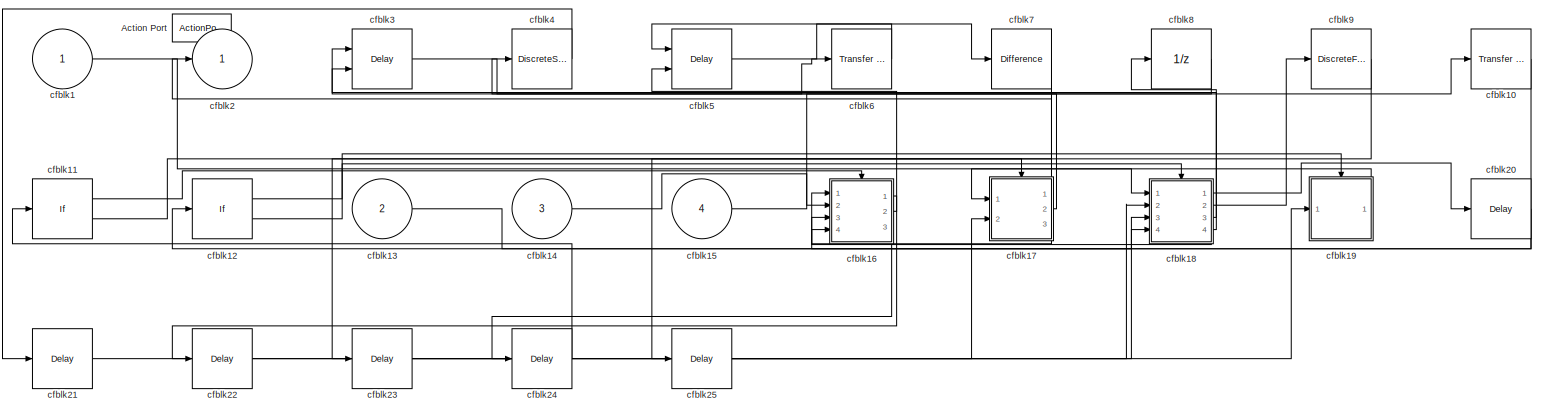
[diagram: cfblk258 - part 1/1, most of the canvas]
BLOCK [SubSystem] cfblk258
  Ports = [4, 1, 0, 0, 0, 0, 0, 1]
  RequestExecContextInheritance = off
  TreatAsAtomicUnit = on
  Variant = off
BLOCK [ActionPort] cfblk258/Action Port
  ActionType = then
BLOCK [Inport] cfblk258/cfblk1
  IconDisplay = Port number
BLOCK [Reference] cfblk258/cfblk10  REF=simulink/Discrete/Transfer Fcn
Real Zero
  Ports = [1, 1]
  SourceBlock = simulink/Discrete/Transfer Fcn\nReal Zero
  SourceProductBaseCode = SL
  SourceProductName = Simulink
  SourceType = Transfer Fcn Real Zero
BLOCK [If] cfblk258/cfblk11
  Ports = [1, 2]
  SampleTime = 1
BLOCK [If] cfblk258/cfblk12
  Ports = [1, 2]
  SampleTime = 1
BLOCK [Inport] cfblk258/cfblk13
  IconDisplay = Port number
  Port = 2
BLOCK [Inport] cfblk258/cfblk14
  IconDisplay = Port number
  Port = 3
BLOCK [Inport] cfblk258/cfblk15
  IconDisplay = Port number
  Port = 4
BLOCK [SubSystem] cfblk258/cfblk16
  Ports = [4, 3, 0, 0, 0, 0, 0, 1]
  RequestExecContextInheritance = off
  TreatAsAtomicUnit = on
  Variant = off
BLOCK [ActionPort] cfblk258/cfblk16/Action Port
  ActionType = then
BLOCK [Inport] cfblk258/cfblk16/cfblk1
  IconDisplay = Port number
BLOCK [Reference] cfblk258/cfblk16/cfblk10  REF=simulink/Continuous/PID Controller
  Ports = [1, 1]
  SourceBlock = simulink/Continuous/PID Controller
  SourceProductBaseCode = SL
  SourceProductName = Simulink
  SourceType = PID 1dof
BLOCK [Inport] cfblk258/cfblk16/cfblk11
  IconDisplay = Port number
  Port = 2
BLOCK [Inport] cfblk258/cfblk16/cfblk12
  IconDisplay = Port number
  Port = 3
BLOCK [Inport] cfblk258/cfblk16/cfblk13
  IconDisplay = Port number
  Port = 4
BLOCK [Outport] cfblk258/cfblk16/cfblk14
  IconDisplay = Port number
  Port = 2
BLOCK [Outport] cfblk258/cfblk16/cfblk15
  IconDisplay = Port number
  Port = 3
BLOCK [Outport] cfblk258/cfblk16/cfblk2
  IconDisplay = Port number
BLOCK [Reference] cfblk258/cfblk16/cfblk3  REF=simulink/Discrete/Tapped Delay
  Ports = [1, 1]
  SourceBlock = simulink/Discrete/Tapped Delay
  SourceProductBaseCode = SL
  SourceProductName = Simulink
  SourceType = Tapped Delay Line
BLOCK [DiscreteStateSpace] cfblk258/cfblk16/cfblk4
  SampleTime = -1
BLOCK [Delay] cfblk258/cfblk16/cfblk5
  DelayLengthSource = Input port
  InputPortMap = u0,p1
  Ports = [2, 1]
BLOCK [Reference] cfblk258/cfblk16/cfblk6  REF=simulink/Discrete/Transfer Fcn
First Order
  Ports = [1, 1]
  SourceBlock = simulink/Discrete/Transfer Fcn\nFirst Order
  SourceProductBaseCode = SL
  SourceProductName = Simulink
  SourceType = First Order Transfer Fcn
BLOCK [Delay] cfblk258/cfblk16/cfblk7
  InputPortMap = u0
  Ports = [1, 1]
BLOCK [Reference] cfblk258/cfblk16/cfblk8  REF=simulink/Discrete/Transfer Fcn
Real Zero
  Ports = [1, 1]
  SourceBlock = simulink/Discrete/Transfer Fcn\nReal Zero
  SourceProductBaseCode = SL
  SourceProductName = Simulink
  SourceType = Transfer Fcn Real Zero
BLOCK [Delay] cfblk258/cfblk16/cfblk9
  InputPortMap = u0,e6
  Ports = [2, 1]
  ShowEnablePort = on
BLOCK [SubSystem] cfblk258/cfblk17
  Ports = [2, 3, 0, 0, 0, 0, 0, 1]
  RequestExecContextInheritance = off
  TreatAsAtomicUnit = on
  Variant = off
BLOCK [ActionPort] cfblk258/cfblk17/Action Port
  ActionType = else
BLOCK [Inport] cfblk258/cfblk17/cfblk1
  IconDisplay = Port number
BLOCK [DiscreteStateSpace] cfblk258/cfblk17/cfblk10
  SampleTime = -1
BLOCK [Reference] cfblk258/cfblk17/cfblk11  REF=simulink/Continuous/PID Controller
  Ports = [1, 1]
  SourceBlock = simulink/Continuous/PID Controller
  SourceProductBaseCode = SL
  SourceProductName = Simulink
  SourceType = PID 1dof
BLOCK [DiscreteIntegrator] cfblk258/cfblk17/cfblk12
  ICPrevOutput = DiscIntNeverNeededParam
  ICPrevScaledInput = DiscIntNeverNeededParam
  InitialConditionSetting = State (most efficient)
  Ports = [1, 1]
  SampleTime = -1
BLOCK [Reference] cfblk258/cfblk17/cfblk13  REF=simulink/Discrete/Transfer Fcn
Real Zero
  Ports = [1, 1]
  SourceBlock = simulink/Discrete/Transfer Fcn\nReal Zero
  SourceProductBaseCode = SL
  SourceProductName = Simulink
  SourceType = Transfer Fcn Real Zero
BLOCK [DiscreteFilter] cfblk258/cfblk17/cfblk14
  InputPortMap = u0
  Ports = [1, 1]
BLOCK [Inport] cfblk258/cfblk17/cfblk15
  IconDisplay = Port number
  Port = 2
BLOCK [Outport] cfblk258/cfblk17/cfblk16
  IconDisplay = Port number
  Port = 2
BLOCK [Outport] cfblk258/cfblk17/cfblk17
  IconDisplay = Port number
  Port = 3
BLOCK [Delay] cfblk258/cfblk17/cfblk18
  InputPortMap = u0
  Ports = [1, 1]
BLOCK [Outport] cfblk258/cfblk17/cfblk2
  IconDisplay = Port number
BLOCK [Reference] cfblk258/cfblk17/cfblk3  REF=simulink/Discrete/Transfer Fcn
Lead or Lag
  Ports = [1, 1]
  SourceBlock = simulink/Discrete/Transfer Fcn\nLead or Lag
  SourceProductBaseCode = SL
  SourceProductName = Simulink
  SourceType = Lead or Lag Compensator
BLOCK [Reference] cfblk258/cfblk17/cfblk4  REF=simulink/Discrete/Transfer Fcn
Lead or Lag
  Ports = [1, 1]
  SourceBlock = simulink/Discrete/Transfer Fcn\nLead or Lag
  SourceProductBaseCode = SL
  SourceProductName = Simulink
  SourceType = Lead or Lag Compensator
BLOCK [Reference] cfblk258/cfblk17/cfblk5  REF=simulink/Discrete/Transfer Fcn
Real Zero
  Ports = [1, 1]
  SourceBlock = simulink/Discrete/Transfer Fcn\nReal Zero
  SourceProductBaseCode = SL
  SourceProductName = Simulink
  SourceType = Transfer Fcn Real Zero
BLOCK [DiscreteZeroPole] cfblk258/cfblk17/cfblk6
  Gain = 1
  Poles = [0 0.5]
  SampleTime = -1
BLOCK [Reference] cfblk258/cfblk17/cfblk7  REF=simulink/Discrete/Transfer Fcn
First Order
  Ports = [1, 1]
  SourceBlock = simulink/Discrete/Transfer Fcn\nFirst Order
  SourceProductBaseCode = SL
  SourceProductName = Simulink
  SourceType = First Order Transfer Fcn
BLOCK [Reference] cfblk258/cfblk17/cfblk8  REF=simulink/Continuous/PID Controller
  Ports = [1, 1]
  SourceBlock = simulink/Continuous/PID Controller
  SourceProductBaseCode = SL
  SourceProductName = Simulink
  SourceType = PID 1dof
BLOCK [UnitDelay] cfblk258/cfblk17/cfblk9
  InputProcessing = Elements as channels (sample based)
  SampleTime = -1
BLOCK [SubSystem] cfblk258/cfblk18
  Ports = [4, 4, 0, 0, 0, 0, 0, 1]
  RequestExecContextInheritance = off
  TreatAsAtomicUnit = on
  Variant = off
BLOCK [ActionPort] cfblk258/cfblk18/Action Port
  ActionType = then
BLOCK [Inport] cfblk258/cfblk18/cfblk1
  IconDisplay = Port number
BLOCK [Reference] cfblk258/cfblk18/cfblk10  REF=simulink/Continuous/PID Controller
  Ports = [1, 1]
  SourceBlock = simulink/Continuous/PID Controller
  SourceProductBaseCode = SL
  SourceProductName = Simulink
  SourceType = PID 1dof
BLOCK [Inport] cfblk258/cfblk18/cfblk11
  IconDisplay = Port number
  Port = 2
BLOCK [Inport] cfblk258/cfblk18/cfblk12
  IconDisplay = Port number
  Port = 3
BLOCK [Inport] cfblk258/cfblk18/cfblk13
  IconDisplay = Port number
  Port = 4
BLOCK [Outport] cfblk258/cfblk18/cfblk14
  IconDisplay = Port number
  Port = 2
BLOCK [Outport] cfblk258/cfblk18/cfblk15
  IconDisplay = Port number
  Port = 3
BLOCK [Outport] cfblk258/cfblk18/cfblk16
  IconDisplay = Port number
  Port = 4
BLOCK [Delay] cfblk258/cfblk18/cfblk17
  InputPortMap = u0
  Ports = [1, 1]
BLOCK [Outport] cfblk258/cfblk18/cfblk2
  IconDisplay = Port number
BLOCK [DiscreteFilter] cfblk258/cfblk18/cfblk3
  InputPortMap = u0
  Ports = [1, 1]
BLOCK [DiscreteIntegrator] cfblk258/cfblk18/cfblk4
  ICPrevOutput = DiscIntNeverNeededParam
  ICPrevScaledInput = DiscIntNeverNeededParam
  InitialConditionSetting = State (most efficient)
  Ports = [1, 1]
  SampleTime = -1
BLOCK [Delay] cfblk258/cfblk18/cfblk5
  DelayLengthSource = Input port
  InputPortMap = u0,p1
  Ports = [2, 1]
BLOCK [Delay] cfblk258/cfblk18/cfblk6
  DelayLengthSource = Input port
  InputPortMap = u0,p1
  Ports = [2, 1]
BLOCK [DiscreteFir] cfblk258/cfblk18/cfblk7
  InputPortMap = u0
  OutputPortMap = o0
  Ports = [1, 1]
BLOCK [DiscreteZeroPole] cfblk258/cfblk18/cfblk8
  Gain = 1
  Poles = [0 0.5]
  SampleTime = -1
BLOCK [Reference] cfblk258/cfblk18/cfblk9  REF=simulink/Discrete/Difference
  Ports = [1, 1]
  SourceBlock = simulink/Discrete/Difference
  SourceProductBaseCode = SL
  SourceProductName = Simulink
  SourceType = Difference
BLOCK [SubSystem] cfblk258/cfblk19
  Ports = [1, 1, 0, 0, 0, 0, 0, 1]
  RequestExecContextInheritance = off
  TreatAsAtomicUnit = on
  Variant = off
BLOCK [ActionPort] cfblk258/cfblk19/Action Port
  ActionType = else
BLOCK [Inport] cfblk258/cfblk19/cfblk1
  IconDisplay = Port number
BLOCK [Delay] cfblk258/cfblk19/cfblk10
  InputPortMap = u0
  Ports = [1, 1]
BLOCK [Outport] cfblk258/cfblk19/cfblk2
  IconDisplay = Port number
BLOCK [Delay] cfblk258/cfblk19/cfblk3
  InputPortMap = u0
  Ports = [1, 1]
BLOCK [DiscreteTransferFcn] cfblk258/cfblk19/cfblk4
  InputPortMap = u0
  Ports = [1, 1]
BLOCK [DiscreteStateSpace] cfblk258/cfblk19/cfblk5
  SampleTime = -1
BLOCK [Reference] cfblk258/cfblk19/cfblk6  REF=simulink/Discrete/Transfer Fcn
First Order
  Ports = [1, 1]
  SourceBlock = simulink/Discrete/Transfer Fcn\nFirst Order
  SourceProductBaseCode = SL
  SourceProductName = Simulink
  SourceType = First Order Transfer Fcn
BLOCK [DiscreteStateSpace] cfblk258/cfblk19/cfblk7
  SampleTime = -1
BLOCK [DiscreteFir] cfblk258/cfblk19/cfblk8
  InputPortMap = u0
  OutputPortMap = o0
  Ports = [1, 1]
BLOCK [Delay] cfblk258/cfblk19/cfblk9
  InputPortMap = u0
  Ports = [1, 1]
BLOCK [Outport] cfblk258/cfblk2
  IconDisplay = Port number
BLOCK [Delay] cfblk258/cfblk20
  InputPortMap = u0
  Ports = [1, 1]
BLOCK [Delay] cfblk258/cfblk21
  InputPortMap = u0
  Ports = [1, 1]
BLOCK [Delay] cfblk258/cfblk22
  InputPortMap = u0
  Ports = [1, 1]
BLOCK [Delay] cfblk258/cfblk23
  InputPortMap = u0
  Ports = [1, 1]
BLOCK [Delay] cfblk258/cfblk24
  InputPortMap = u0
  Ports = [1, 1]
BLOCK [Delay] cfblk258/cfblk25
  InputPortMap = u0
  Ports = [1, 1]
BLOCK [Delay] cfblk258/cfblk3
  DelayLengthSource = Input port
  InputPortMap = u0,p1
  Ports = [2, 1]
BLOCK [DiscreteStateSpace] cfblk258/cfblk4
  SampleTime = -1
BLOCK [Delay] cfblk258/cfblk5
  InputPortMap = u0,e6
  Ports = [2, 1]
  ShowEnablePort = on
BLOCK [Reference] cfblk258/cfblk6  REF=simulink/Discrete/Transfer Fcn
First Order
  Ports = [1, 1]
  SourceBlock = simulink/Discrete/Transfer Fcn\nFirst Order
  SourceProductBaseCode = SL
  SourceProductName = Simulink
  SourceType = First Order Transfer Fcn
BLOCK [Reference] cfblk258/cfblk7  REF=simulink/Discrete/Difference
  Ports = [1, 1]
  SourceBlock = simulink/Discrete/Difference
  SourceProductBaseCode = SL
  SourceProductName = Simulink
  SourceType = Difference
BLOCK [UnitDelay] cfblk258/cfblk8
  InputProcessing = Elements as channels (sample based)
  SampleTime = -1
BLOCK [DiscreteFilter] cfblk258/cfblk9
  InputPortMap = u0
  Ports = [1, 1]
BLOCK [SubSystem] cfblk259
  Ports = [2, 2, 0, 0, 0, 0, 0, 1]
  RequestExecContextInheritance = off
  TreatAsAtomicUnit = on
  Variant = off
BLOCK [ActionPort] cfblk259/Action Port
  ActionType = else
BLOCK [Inport] cfblk259/cfblk1
  IconDisplay = Port number
BLOCK [Outport] cfblk259/cfblk2
  IconDisplay = Port number
BLOCK [DiscreteZeroPole] cfblk259/cfblk3
  Gain = 1
  Poles = [0 0.5]
  SampleTime = -1
BLOCK [DiscreteTransferFcn] cfblk259/cfblk4
  InputPortMap = u0
  Ports = [1, 1]
BLOCK [DiscreteStateSpace] cfblk259/cfblk5
  SampleTime = -1
BLOCK [Delay] cfblk259/cfblk6
  InputPortMap = u0,e6
  Ports = [2, 1]
  ShowEnablePort = on
BLOCK [Inport] cfblk259/cfblk7
  IconDisplay = Port number
  Port = 2
BLOCK [Outport] cfblk259/cfblk8
  IconDisplay = Port number
  Port = 2
BLOCK [Delay] cfblk259/cfblk9
  InputPortMap = u0
  Ports = [1, 1]
BLOCK [DiscreteIntegrator] cfblk26
  ICPrevOutput = DiscIntNeverNeededParam
  ICPrevScaledInput = DiscIntNeverNeededParam
  InitialConditionSetting = State (most efficient)
  Ports = [1, 1]
BLOCK [SubSystem] cfblk260
  Ports = [2, 3, 0, 0, 0, 0, 0, 1]
  RequestExecContextInheritance = off
  TreatAsAtomicUnit = on
  Variant = off
BLOCK [ActionPort] cfblk260/Action Port
  ActionType = then
BLOCK [Inport] cfblk260/cfblk1
  IconDisplay = Port number
BLOCK [Reference] cfblk260/cfblk10  REF=simulink/Discrete/Transfer Fcn
First Order
  Ports = [1, 1]
  SourceBlock = simulink/Discrete/Transfer Fcn\nFirst Order
  SourceProductBaseCode = SL
  SourceProductName = Simulink
  SourceType = First Order Transfer Fcn
BLOCK [Reference] cfblk260/cfblk11  REF=simulink/Discrete/Transfer Fcn
First Order
  Ports = [1, 1]
  SourceBlock = simulink/Discrete/Transfer Fcn\nFirst Order
  SourceProductBaseCode = SL
  SourceProductName = Simulink
  SourceType = First Order Transfer Fcn
BLOCK [UnitDelay] cfblk260/cfblk12
  InputProcessing = Elements as channels (sample based)
  SampleTime = -1
BLOCK [Inport] cfblk260/cfblk13
  IconDisplay = Port number
  Port = 2
BLOCK [Outport] cfblk260/cfblk14
  IconDisplay = Port number
  Port = 2
BLOCK [Outport] cfblk260/cfblk15
  IconDisplay = Port number
  Port = 3
BLOCK [Outport] cfblk260/cfblk2
  IconDisplay = Port number
BLOCK [DiscreteStateSpace] cfblk260/cfblk3
  SampleTime = -1
BLOCK [DiscreteFir] cfblk260/cfblk4
  InputPortMap = u0
  OutputPortMap = o0
  Ports = [1, 1]
BLOCK [Reference] cfblk260/cfblk5  REF=simulink/Discrete/Tapped Delay
  Ports = [1, 1]
  SourceBlock = simulink/Discrete/Tapped Delay
  SourceProductBaseCode = SL
  SourceProductName = Simulink
  SourceType = Tapped Delay Line
BLOCK [DiscreteZeroPole] cfblk260/cfblk6
  Gain = 1
  Poles = [0 0.5]
  SampleTime = -1
BLOCK [Delay] cfblk260/cfblk7
  InputPortMap = u0
  Ports = [1, 1]
BLOCK [Reference] cfblk260/cfblk8  REF=simulink/Discrete/Difference
  Ports = [1, 1]
  SourceBlock = simulink/Discrete/Difference
  SourceProductBaseCode = SL
  SourceProductName = Simulink
  SourceType = Difference
BLOCK [DiscreteTransferFcn] cfblk260/cfblk9
  InputPortMap = u0
  Ports = [1, 1]
BLOCK [SubSystem] cfblk261
  Ports = [1, 2, 0, 0, 0, 0, 0, 1]
  RequestExecContextInheritance = off
  TreatAsAtomicUnit = on
  Variant = off
BLOCK [ActionPort] cfblk261/Action Port
  ActionType = else
BLOCK [Inport] cfblk261/cfblk1
  IconDisplay = Port number
BLOCK [DiscreteIntegrator] cfblk261/cfblk10
  ICPrevOutput = DiscIntNeverNeededParam
  ICPrevScaledInput = DiscIntNeverNeededParam
  InitialConditionSetting = State (most efficient)
  Ports = [1, 1]
  SampleTime = -1
BLOCK [Outport] cfblk261/cfblk11
  IconDisplay = Port number
  Port = 2
BLOCK [Delay] cfblk261/cfblk12
  InputPortMap = u0
  Ports = [1, 1]
BLOCK [Outport] cfblk261/cfblk2
  IconDisplay = Port number
BLOCK [DiscreteFir] cfblk261/cfblk3
  InputPortMap = u0
  OutputPortMap = o0
  Ports = [1, 1]
BLOCK [DiscreteFilter] cfblk261/cfblk4
  InputPortMap = u0
  Ports = [1, 1]
BLOCK [UnitDelay] cfblk261/cfblk5
  InputProcessing = Elements as channels (sample based)
  SampleTime = -1
BLOCK [Reference] cfblk261/cfblk6  REF=simulink/Discrete/Transfer Fcn
Real Zero
  Ports = [1, 1]
  SourceBlock = simulink/Discrete/Transfer Fcn\nReal Zero
  SourceProductBaseCode = SL
  SourceProductName = Simulink
  SourceType = Transfer Fcn Real Zero
BLOCK [DiscreteFilter] cfblk261/cfblk7
  InputPortMap = u0
  Ports = [1, 1]
BLOCK [Reference] cfblk261/cfblk8  REF=simulink/Continuous/PID Controller (2DOF)
  Ports = [2, 1]
  SourceBlock = simulink/Continuous/PID Controller (2DOF)
  SourceProductBaseCode = SL
  SourceProductName = Simulink
  SourceType = PID 2dof
BLOCK [DiscreteZeroPole] cfblk261/cfblk9
  Gain = 1
  Poles = [0 0.5]
  SampleTime = -1
BLOCK [SubSystem] cfblk262
  Ports = [1, 2, 0, 0, 0, 0, 0, 1]
  RequestExecContextInheritance = off
  TreatAsAtomicUnit = on
  Variant = off
BLOCK [ActionPort] cfblk262/Action Port
  ActionType = then
BLOCK [Inport] cfblk262/cfblk1
  IconDisplay = Port number
BLOCK [Delay] cfblk262/cfblk10
  InputPortMap = u0
  Ports = [1, 1]
BLOCK [Delay] cfblk262/cfblk11
  InputPortMap = u0
  Ports = [1, 1]
BLOCK [Delay] cfblk262/cfblk12
  InputPortMap = u0
  Ports = [1, 1]
BLOCK [Outport] cfblk262/cfblk2
  IconDisplay = Port number
BLOCK [Reference] cfblk262/cfblk3  REF=simulink/Discrete/Transfer Fcn
First Order
  Ports = [1, 1]
  SourceBlock = simulink/Discrete/Transfer Fcn\nFirst Order
  SourceProductBaseCode = SL
  SourceProductName = Simulink
  SourceType = First Order Transfer Fcn
BLOCK [Reference] cfblk262/cfblk4  REF=simulink/Discrete/Transfer Fcn
First Order
  Ports = [1, 1]
  SourceBlock = simulink/Discrete/Transfer Fcn\nFirst Order
  SourceProductBaseCode = SL
  SourceProductName = Simulink
  SourceType = First Order Transfer Fcn
BLOCK [Reference] cfblk262/cfblk5  REF=simulink/Discrete/Transfer Fcn
First Order
  Ports = [1, 1]
  SourceBlock = simulink/Discrete/Transfer Fcn\nFirst Order
  SourceProductBaseCode = SL
  SourceProductName = Simulink
  SourceType = First Order Transfer Fcn
BLOCK [If] cfblk262/cfblk6
  Ports = [1, 2]
  SampleTime = 1
BLOCK [Outport] cfblk262/cfblk7
  IconDisplay = Port number
  Port = 2
BLOCK [SubSystem] cfblk262/cfblk8
  Ports = [3, 1, 0, 0, 0, 0, 0, 1]
  RequestExecContextInheritance = off
  TreatAsAtomicUnit = on
  Variant = off
BLOCK [ActionPort] cfblk262/cfblk8/Action Port
  ActionType = then
BLOCK [Inport] cfblk262/cfblk8/cfblk1
  IconDisplay = Port number
BLOCK [Delay] cfblk262/cfblk8/cfblk10
  DelayLengthSource = Input port
  InputPortMap = u0,p1
  Ports = [2, 1]
BLOCK [Reference] cfblk262/cfblk8/cfblk11  REF=simulink/Discrete/Difference
  Ports = [1, 1]
  SourceBlock = simulink/Discrete/Difference
  SourceProductBaseCode = SL
  SourceProductName = Simulink
  SourceType = Difference
BLOCK [Reference] cfblk262/cfblk8/cfblk12  REF=simulink/Discrete/Transfer Fcn
Real Zero
  Ports = [1, 1]
  SourceBlock = simulink/Discrete/Transfer Fcn\nReal Zero
  SourceProductBaseCode = SL
  SourceProductName = Simulink
  SourceType = Transfer Fcn Real Zero
BLOCK [DiscreteStateSpace] cfblk262/cfblk8/cfblk13
  SampleTime = -1
BLOCK [Inport] cfblk262/cfblk8/cfblk14
  IconDisplay = Port number
  Port = 2
BLOCK [Inport] cfblk262/cfblk8/cfblk15
  IconDisplay = Port number
  Port = 3
BLOCK [Delay] cfblk262/cfblk8/cfblk16
  InputPortMap = u0
  Ports = [1, 1]
BLOCK [Outport] cfblk262/cfblk8/cfblk2
  IconDisplay = Port number
BLOCK [Reference] cfblk262/cfblk8/cfblk3  REF=simulink/Continuous/PID Controller (2DOF)
  Ports = [2, 1]
  SourceBlock = simulink/Continuous/PID Controller (2DOF)
  SourceProductBaseCode = SL
  SourceProductName = Simulink
  SourceType = PID 2dof
BLOCK [Delay] cfblk262/cfblk8/cfblk4
  DelayLengthSource = Input port
  InputPortMap = u0,p1
  Ports = [2, 1]
BLOCK [Delay] cfblk262/cfblk8/cfblk5
  DelayLengthSource = Input port
  InputPortMap = u0,p1
  Ports = [2, 1]
BLOCK [Delay] cfblk262/cfblk8/cfblk6
  DelayLengthSource = Input port
  InputPortMap = u0,p1
  Ports = [2, 1]
BLOCK [Reference] cfblk262/cfblk8/cfblk7  REF=simulink/Discrete/Tapped Delay
  Ports = [1, 1]
  SourceBlock = simulink/Discrete/Tapped Delay
  SourceProductBaseCode = SL
  SourceProductName = Simulink
  SourceType = Tapped Delay Line
BLOCK [Reference] cfblk262/cfblk8/cfblk8  REF=simulink/Discrete/Tapped Delay
  Ports = [1, 1]
  SourceBlock = simulink/Discrete/Tapped Delay
  SourceProductBaseCode = SL
  SourceProductName = Simulink
  SourceType = Tapped Delay Line
BLOCK [Delay] cfblk262/cfblk8/cfblk9
  DelayLengthSource = Input port
  InputPortMap = u0,p1
  Ports = [2, 1]
BLOCK [SubSystem] cfblk262/cfblk9
  Ports = [4, 2, 0, 0, 0, 0, 0, 1]
  RequestExecContextInheritance = off
  TreatAsAtomicUnit = on
  Variant = off
BLOCK [ActionPort] cfblk262/cfblk9/Action Port
  ActionType = else
BLOCK [Inport] cfblk262/cfblk9/cfblk1
  IconDisplay = Port number
BLOCK [Reference] cfblk262/cfblk9/cfblk10  REF=simulink/Discrete/Tapped Delay
  Ports = [1, 1]
  SourceBlock = simulink/Discrete/Tapped Delay
  SourceProductBaseCode = SL
  SourceProductName = Simulink
  SourceType = Tapped Delay Line
BLOCK [Inport] cfblk262/cfblk9/cfblk11
  IconDisplay = Port number
  Port = 2
BLOCK [Inport] cfblk262/cfblk9/cfblk12
  IconDisplay = Port number
  Port = 3
BLOCK [Inport] cfblk262/cfblk9/cfblk13
  IconDisplay = Port number
  Port = 4
BLOCK [Outport] cfblk262/cfblk9/cfblk14
  IconDisplay = Port number
  Port = 2
BLOCK [Delay] cfblk262/cfblk9/cfblk15
  InputPortMap = u0
  Ports = [1, 1]
BLOCK [Outport] cfblk262/cfblk9/cfblk2
  IconDisplay = Port number
BLOCK [Reference] cfblk262/cfblk9/cfblk3  REF=simulink/Continuous/PID Controller (2DOF)
  Ports = [2, 1]
  SourceBlock = simulink/Continuous/PID Controller (2DOF)
  SourceProductBaseCode = SL
  SourceProductName = Simulink
  SourceType = PID 2dof
BLOCK [Reference] cfblk262/cfblk9/cfblk4  REF=simulink/Discrete/Difference
  Ports = [1, 1]
  SourceBlock = simulink/Discrete/Difference
  SourceProductBaseCode = SL
  SourceProductName = Simulink
  SourceType = Difference
BLOCK [Reference] cfblk262/cfblk9/cfblk5  REF=simulink/Discrete/Transfer Fcn
First Order
  Ports = [1, 1]
  SourceBlock = simulink/Discrete/Transfer Fcn\nFirst Order
  SourceProductBaseCode = SL
  SourceProductName = Simulink
  SourceType = First Order Transfer Fcn
BLOCK [DiscreteZeroPole] cfblk262/cfblk9/cfblk6
  Gain = 1
  Poles = [0 0.5]
  SampleTime = -1
BLOCK [Delay] cfblk262/cfblk9/cfblk7
  InputPortMap = u0
  Ports = [1, 1]
BLOCK [Delay] cfblk262/cfblk9/cfblk8
  DelayLengthSource = Input port
  InputPortMap = u0,p1
  Ports = [2, 1]
BLOCK [Reference] cfblk262/cfblk9/cfblk9  REF=simulink/Continuous/PID Controller
  Ports = [1, 1]
  SourceBlock = simulink/Continuous/PID Controller
  SourceProductBaseCode = SL
  SourceProductName = Simulink
  SourceType = PID 1dof
BLOCK [SubSystem] cfblk263
  Ports = [4, 3, 0, 0, 0, 0, 0, 1]
  RequestExecContextInheritance = off
  TreatAsAtomicUnit = on
  Variant = off
BLOCK [ActionPort] cfblk263/Action Port
  ActionType = else
BLOCK [Inport] cfblk263/cfblk1
  IconDisplay = Port number
BLOCK [Delay] cfblk263/cfblk10
  InputPortMap = u0
  Ports = [1, 1]
BLOCK [Outport] cfblk263/cfblk2
  IconDisplay = Port number
BLOCK [Delay] cfblk263/cfblk3
  InputPortMap = u0,e6
  Ports = [2, 1]
  ShowEnablePort = on
BLOCK [Delay] cfblk263/cfblk4
  InputPortMap = u0
  Ports = [1, 1]
BLOCK [Inport] cfblk263/cfblk5
  IconDisplay = Port number
  Port = 2
BLOCK [Inport] cfblk263/cfblk6
  IconDisplay = Port number
  Port = 3
BLOCK [Inport] cfblk263/cfblk7
  IconDisplay = Port number
  Port = 4
BLOCK [Outport] cfblk263/cfblk8
  IconDisplay = Port number
  Port = 2
BLOCK [Outport] cfblk263/cfblk9
  IconDisplay = Port number
  Port = 3
BLOCK [SubSystem] cfblk264
  Ports = [3, 1, 0, 0, 0, 0, 0, 1]
  RequestExecContextInheritance = off
  TreatAsAtomicUnit = on
  Variant = off
BLOCK [ActionPort] cfblk264/Action Port
  ActionType = then
BLOCK [Inport] cfblk264/cfblk1
  IconDisplay = Port number
BLOCK [Outport] cfblk264/cfblk2
  IconDisplay = Port number
BLOCK [Reference] cfblk264/cfblk3  REF=simulink/Discrete/Tapped Delay
  Ports = [1, 1]
  SourceBlock = simulink/Discrete/Tapped Delay
  SourceProductBaseCode = SL
  SourceProductName = Simulink
  SourceType = Tapped Delay Line
BLOCK [UnitDelay] cfblk264/cfblk4
  InputProcessing = Elements as channels (sample based)
  SampleTime = -1
BLOCK [Reference] cfblk264/cfblk5  REF=simulink/Discrete/Transfer Fcn
Real Zero
  Ports = [1, 1]
  SourceBlock = simulink/Discrete/Transfer Fcn\nReal Zero
  SourceProductBaseCode = SL
  SourceProductName = Simulink
  SourceType = Transfer Fcn Real Zero
BLOCK [Inport] cfblk264/cfblk6
  IconDisplay = Port number
  Port = 2
BLOCK [Inport] cfblk264/cfblk7
  IconDisplay = Port number
  Port = 3
BLOCK [SubSystem] cfblk265
  Ports = [5, 2, 0, 0, 0, 0, 0, 1]
  RequestExecContextInheritance = off
  TreatAsAtomicUnit = on
  Variant = off
BLOCK [ActionPort] cfblk265/Action Port
  ActionType = else
BLOCK [Inport] cfblk265/cfblk1
  IconDisplay = Port number
BLOCK [Outport] cfblk265/cfblk10
  IconDisplay = Port number
  Port = 2
BLOCK [Outport] cfblk265/cfblk2
  IconDisplay = Port number
BLOCK [DiscreteTransferFcn] cfblk265/cfblk3
  InputPortMap = u0
  Ports = [1, 1]
BLOCK [DiscreteTransferFcn] cfblk265/cfblk4
  InputPortMap = u0
  Ports = [1, 1]
BLOCK [DiscreteStateSpace] cfblk265/cfblk5
  SampleTime = -1
BLOCK [Inport] cfblk265/cfblk6
  IconDisplay = Port number
  Port = 2
BLOCK [Inport] cfblk265/cfblk7
  IconDisplay = Port number
  Port = 3
BLOCK [Inport] cfblk265/cfblk8
  IconDisplay = Port number
  Port = 4
BLOCK [Inport] cfblk265/cfblk9
  IconDisplay = Port number
  Port = 5
BLOCK [SubSystem] cfblk266
  Ports = [3, 3, 0, 0, 0, 0, 0, 1]
  RequestExecContextInheritance = off
  TreatAsAtomicUnit = on
  Variant = off
BLOCK [ActionPort] cfblk266/Action Port
  ActionType = then
BLOCK [Inport] cfblk266/cfblk1
  IconDisplay = Port number
BLOCK [DiscreteFir] cfblk266/cfblk10
  InputPortMap = u0
  OutputPortMap = o0
  Ports = [1, 1]
BLOCK [DiscreteFilter] cfblk266/cfblk11
  InputPortMap = u0
  Ports = [1, 1]
BLOCK [If] cfblk266/cfblk12
  Ports = [1, 2]
  SampleTime = 1
BLOCK [Inport] cfblk266/cfblk13
  IconDisplay = Port number
  Port = 2
BLOCK [Inport] cfblk266/cfblk14
  IconDisplay = Port number
  Port = 3
BLOCK [Outport] cfblk266/cfblk15
  IconDisplay = Port number
  Port = 2
BLOCK [Outport] cfblk266/cfblk16
  IconDisplay = Port number
  Port = 3
BLOCK [SubSystem] cfblk266/cfblk17
  Ports = [3, 3, 0, 0, 0, 0, 0, 1]
  RequestExecContextInheritance = off
  TreatAsAtomicUnit = on
  Variant = off
BLOCK [ActionPort] cfblk266/cfblk17/Action Port
  ActionType = then
BLOCK [Inport] cfblk266/cfblk17/cfblk1
  IconDisplay = Port number
BLOCK [Inport] cfblk266/cfblk17/cfblk10
  IconDisplay = Port number
  Port = 3
BLOCK [Outport] cfblk266/cfblk17/cfblk11
  IconDisplay = Port number
  Port = 2
BLOCK [Outport] cfblk266/cfblk17/cfblk12
  IconDisplay = Port number
  Port = 3
BLOCK [Delay] cfblk266/cfblk17/cfblk13
  InputPortMap = u0
  Ports = [1, 1]
BLOCK [Outport] cfblk266/cfblk17/cfblk2
  IconDisplay = Port number
BLOCK [Delay] cfblk266/cfblk17/cfblk3
  DelayLengthSource = Input port
  InputPortMap = u0,p1
  Ports = [2, 1]
BLOCK [Reference] cfblk266/cfblk17/cfblk4  REF=simulink/Continuous/PID Controller (2DOF)
  Ports = [2, 1]
  SourceBlock = simulink/Continuous/PID Controller (2DOF)
  SourceProductBaseCode = SL
  SourceProductName = Simulink
  SourceType = PID 2dof
BLOCK [Reference] cfblk266/cfblk17/cfblk5  REF=simulink/Discrete/Transfer Fcn
Lead or Lag
  Ports = [1, 1]
  SourceBlock = simulink/Discrete/Transfer Fcn\nLead or Lag
  SourceProductBaseCode = SL
  SourceProductName = Simulink
  SourceType = Lead or Lag Compensator
BLOCK [Reference] cfblk266/cfblk17/cfblk6  REF=simulink/Continuous/PID Controller (2DOF)
  Ports = [2, 1]
  SourceBlock = simulink/Continuous/PID Controller (2DOF)
  SourceProductBaseCode = SL
  SourceProductName = Simulink
  SourceType = PID 2dof
BLOCK [Reference] cfblk266/cfblk17/cfblk7  REF=simulink/Continuous/PID Controller (2DOF)
  Ports = [2, 1]
  SourceBlock = simulink/Continuous/PID Controller (2DOF)
  SourceProductBaseCode = SL
  SourceProductName = Simulink
  SourceType = PID 2dof
BLOCK [Reference] cfblk266/cfblk17/cfblk8  REF=simulink/Continuous/PID Controller (2DOF)
  Ports = [2, 1]
  SourceBlock = simulink/Continuous/PID Controller (2DOF)
  SourceProductBaseCode = SL
  SourceProductName = Simulink
  SourceType = PID 2dof
BLOCK [Inport] cfblk266/cfblk17/cfblk9
  IconDisplay = Port number
  Port = 2
BLOCK [SubSystem] cfblk266/cfblk18
  Ports = [2, 1, 0, 0, 0, 0, 0, 1]
  RequestExecContextInheritance = off
  TreatAsAtomicUnit = on
  Variant = off
BLOCK [ActionPort] cfblk266/cfblk18/Action Port
  ActionType = else
BLOCK [Inport] cfblk266/cfblk18/cfblk1
  IconDisplay = Port number
BLOCK [Delay] cfblk266/cfblk18/cfblk10
  DelayLengthSource = Input port
  InputPortMap = u0,p1
  Ports = [2, 1]
BLOCK [DiscreteFir] cfblk266/cfblk18/cfblk11
  InputPortMap = u0
  OutputPortMap = o0
  Ports = [1, 1]
BLOCK [DiscreteFir] cfblk266/cfblk18/cfblk12
  InputPortMap = u0
  OutputPortMap = o0
  Ports = [1, 1]
BLOCK [Reference] cfblk266/cfblk18/cfblk13  REF=simulink/Discrete/Transfer Fcn
First Order
  Ports = [1, 1]
  SourceBlock = simulink/Discrete/Transfer Fcn\nFirst Order
  SourceProductBaseCode = SL
  SourceProductName = Simulink
  SourceType = First Order Transfer Fcn
BLOCK [Inport] cfblk266/cfblk18/cfblk14
  IconDisplay = Port number
  Port = 2
BLOCK [Delay] cfblk266/cfblk18/cfblk15
  InputPortMap = u0
  Ports = [1, 1]
BLOCK [Delay] cfblk266/cfblk18/cfblk16
  InputPortMap = u0
  Ports = [1, 1]
BLOCK [Outport] cfblk266/cfblk18/cfblk2
  IconDisplay = Port number
BLOCK [DiscreteStateSpace] cfblk266/cfblk18/cfblk3
  SampleTime = -1
BLOCK [Reference] cfblk266/cfblk18/cfblk4  REF=simulink/Continuous/PID Controller
  Ports = [1, 1]
  SourceBlock = simulink/Continuous/PID Controller
  SourceProductBaseCode = SL
  SourceProductName = Simulink
  SourceType = PID 1dof
BLOCK [Reference] cfblk266/cfblk18/cfblk5  REF=simulink/Discrete/Tapped Delay
  Ports = [1, 1]
  SourceBlock = simulink/Discrete/Tapped Delay
  SourceProductBaseCode = SL
  SourceProductName = Simulink
  SourceType = Tapped Delay Line
BLOCK [Delay] cfblk266/cfblk18/cfblk6
  InputPortMap = u0,e6
  Ports = [2, 1]
  ShowEnablePort = on
BLOCK [DiscreteTransferFcn] cfblk266/cfblk18/cfblk7
  InputPortMap = u0
  Ports = [1, 1]
BLOCK [DiscreteFir] cfblk266/cfblk18/cfblk8
  InputPortMap = u0
  OutputPortMap = o0
  Ports = [1, 1]
BLOCK [Delay] cfblk266/cfblk18/cfblk9
  DelayLengthSource = Input port
  InputPortMap = u0,p1
  Ports = [2, 1]
BLOCK [Delay] cfblk266/cfblk19
  InputPortMap = u0
  Ports = [1, 1]
BLOCK [Outport] cfblk266/cfblk2
  IconDisplay = Port number
BLOCK [Delay] cfblk266/cfblk20
  InputPortMap = u0
  Ports = [1, 1]
BLOCK [Delay] cfblk266/cfblk21
  InputPortMap = u0
  Ports = [1, 1]
BLOCK [DiscreteFilter] cfblk266/cfblk3
  InputPortMap = u0
  Ports = [1, 1]
BLOCK [DiscreteStateSpace] cfblk266/cfblk4
  SampleTime = -1
BLOCK [DiscreteStateSpace] cfblk266/cfblk5
  SampleTime = -1
BLOCK [Reference] cfblk266/cfblk6  REF=simulink/Continuous/PID Controller (2DOF)
  Ports = [2, 1]
  SourceBlock = simulink/Continuous/PID Controller (2DOF)
  SourceProductBaseCode = SL
  SourceProductName = Simulink
  SourceType = PID 2dof
BLOCK [Reference] cfblk266/cfblk7  REF=simulink/Continuous/PID Controller (2DOF)
  Ports = [2, 1]
  SourceBlock = simulink/Continuous/PID Controller (2DOF)
  SourceProductBaseCode = SL
  SourceProductName = Simulink
  SourceType = PID 2dof
BLOCK [Reference] cfblk266/cfblk8  REF=simulink/Discrete/Difference
  Ports = [1, 1]
  SourceBlock = simulink/Discrete/Difference
  SourceProductBaseCode = SL
  SourceProductName = Simulink
  SourceType = Difference
BLOCK [DiscreteStateSpace] cfblk266/cfblk9
  SampleTime = -1
BLOCK [SubSystem] cfblk267
  Ports = [4, 3, 0, 0, 0, 0, 0, 1]
  RequestExecContextInheritance = off
  TreatAsAtomicUnit = on
  Variant = off
BLOCK [ActionPort] cfblk267/Action Port
  ActionType = else
BLOCK [Inport] cfblk267/cfblk1
  IconDisplay = Port number
BLOCK [Inport] cfblk267/cfblk10
  IconDisplay = Port number
  Port = 2
BLOCK [Inport] cfblk267/cfblk11
  IconDisplay = Port number
  Port = 3
BLOCK [Inport] cfblk267/cfblk12
  IconDisplay = Port number
  Port = 4
BLOCK [Outport] cfblk267/cfblk13
  IconDisplay = Port number
  Port = 2
BLOCK [Outport] cfblk267/cfblk14
  IconDisplay = Port number
  Port = 3
BLOCK [Delay] cfblk267/cfblk15
  InputPortMap = u0
  Ports = [1, 1]
BLOCK [Outport] cfblk267/cfblk2
  IconDisplay = Port number
BLOCK [Reference] cfblk267/cfblk3  REF=simulink/Discrete/Difference
  Ports = [1, 1]
  SourceBlock = simulink/Discrete/Difference
  SourceProductBaseCode = SL
  SourceProductName = Simulink
  SourceType = Difference
BLOCK [DiscreteTransferFcn] cfblk267/cfblk4
  InputPortMap = u0
  Ports = [1, 1]
BLOCK [Reference] cfblk267/cfblk5  REF=simulink/Discrete/Transfer Fcn
Real Zero
  Ports = [1, 1]
  SourceBlock = simulink/Discrete/Transfer Fcn\nReal Zero
  SourceProductBaseCode = SL
  SourceProductName = Simulink
  SourceType = Transfer Fcn Real Zero
BLOCK [DiscreteIntegrator] cfblk267/cfblk6
  ICPrevOutput = DiscIntNeverNeededParam
  ICPrevScaledInput = DiscIntNeverNeededParam
  InitialConditionSetting = State (most efficient)
  Ports = [1, 1]
  SampleTime = -1
BLOCK [Reference] cfblk267/cfblk7  REF=simulink/Continuous/PID Controller (2DOF)
  Ports = [2, 1]
  SourceBlock = simulink/Continuous/PID Controller (2DOF)
  SourceProductBaseCode = SL
  SourceProductName = Simulink
  SourceType = PID 2dof
BLOCK [Reference] cfblk267/cfblk8  REF=simulink/Discrete/Transfer Fcn
Real Zero
  Ports = [1, 1]
  SourceBlock = simulink/Discrete/Transfer Fcn\nReal Zero
  SourceProductBaseCode = SL
  SourceProductName = Simulink
  SourceType = Transfer Fcn Real Zero
BLOCK [DiscreteStateSpace] cfblk267/cfblk9
  SampleTime = -1
BLOCK [SubSystem] cfblk268
  Ports = [2, 2, 0, 0, 0, 0, 0, 1]
  RequestExecContextInheritance = off
  TreatAsAtomicUnit = on
  Variant = off
BLOCK [ActionPort] cfblk268/Action Port
  ActionType = then
BLOCK [Inport] cfblk268/cfblk1
  IconDisplay = Port number
BLOCK [Outport] cfblk268/cfblk2
  IconDisplay = Port number
BLOCK [Delay] cfblk268/cfblk3
  DelayLengthSource = Input port
  InputPortMap = u0,p1
  Ports = [2, 1]
BLOCK [Reference] cfblk268/cfblk4  REF=simulink/Discrete/Transfer Fcn
First Order
  Ports = [1, 1]
  SourceBlock = simulink/Discrete/Transfer Fcn\nFirst Order
  SourceProductBaseCode = SL
  SourceProductName = Simulink
  SourceType = First Order Transfer Fcn
BLOCK [DiscreteZeroPole] cfblk268/cfblk5
  Gain = 1
  Poles = [0 0.5]
  SampleTime = -1
BLOCK [Reference] cfblk268/cfblk6  REF=simulink/Continuous/PID Controller (2DOF)
  Ports = [2, 1]
  SourceBlock = simulink/Continuous/PID Controller (2DOF)
  SourceProductBaseCode = SL
  SourceProductName = Simulink
  SourceType = PID 2dof
BLOCK [Inport] cfblk268/cfblk7
  IconDisplay = Port number
  Port = 2
BLOCK [Outport] cfblk268/cfblk8
  IconDisplay = Port number
  Port = 2
BLOCK [Delay] cfblk268/cfblk9
  InputPortMap = u0
  Ports = [1, 1]
BLOCK [SubSystem] cfblk269
  Ports = [2, 1, 0, 0, 0, 0, 0, 1]
  RequestExecContextInheritance = off
  TreatAsAtomicUnit = on
  Variant = off
BLOCK [ActionPort] cfblk269/Action Port
  ActionType = else
BLOCK [Inport] cfblk269/cfblk1
  IconDisplay = Port number
BLOCK [Inport] cfblk269/cfblk10
  IconDisplay = Port number
  Port = 2
BLOCK [Delay] cfblk269/cfblk11
  InputPortMap = u0
  Ports = [1, 1]
BLOCK [Outport] cfblk269/cfblk2
  IconDisplay = Port number
BLOCK [Reference] cfblk269/cfblk3  REF=simulink/Continuous/PID Controller
  Ports = [1, 1]
  SourceBlock = simulink/Continuous/PID Controller
  SourceProductBaseCode = SL
  SourceProductName = Simulink
  SourceType = PID 1dof
BLOCK [Reference] cfblk269/cfblk4  REF=simulink/Continuous/PID Controller
  Ports = [1, 1]
  SourceBlock = simulink/Continuous/PID Controller
  SourceProductBaseCode = SL
  SourceProductName = Simulink
  SourceType = PID 1dof
BLOCK [DiscreteIntegrator] cfblk269/cfblk5
  ICPrevOutput = DiscIntNeverNeededParam
  ICPrevScaledInput = DiscIntNeverNeededParam
  InitialConditionSetting = State (most efficient)
  Ports = [1, 1]
  SampleTime = -1
BLOCK [Reference] cfblk269/cfblk6  REF=simulink/Discrete/Transfer Fcn
First Order
  Ports = [1, 1]
  SourceBlock = simulink/Discrete/Transfer Fcn\nFirst Order
  SourceProductBaseCode = SL
  SourceProductName = Simulink
  SourceType = First Order Transfer Fcn
BLOCK [UnitDelay] cfblk269/cfblk7
  InputProcessing = Elements as channels (sample based)
  SampleTime = -1
BLOCK [DiscreteFilter] cfblk269/cfblk8
  InputPortMap = u0
  Ports = [1, 1]
BLOCK [DiscreteStateSpace] cfblk269/cfblk9
  SampleTime = -1
BLOCK [Reference] cfblk27  REF=simulink/Discrete/Tapped Delay
  Ports = [1, 1]
  SourceBlock = simulink/Discrete/Tapped Delay
  SourceProductBaseCode = SL
  SourceProductName = Simulink
  SourceType = Tapped Delay Line
BLOCK [SubSystem] cfblk270
  Ports = [3, 3, 0, 0, 0, 0, 0, 1]
  RequestExecContextInheritance = off
  TreatAsAtomicUnit = on
  Variant = off
BLOCK [ActionPort] cfblk270/Action Port
  ActionType = then
BLOCK [Inport] cfblk270/cfblk1
  IconDisplay = Port number
BLOCK [Inport] cfblk270/cfblk10
  IconDisplay = Port number
  Port = 3
BLOCK [Outport] cfblk270/cfblk11
  IconDisplay = Port number
  Port = 2
BLOCK [Outport] cfblk270/cfblk12
  IconDisplay = Port number
  Port = 3
BLOCK [SubSystem] cfblk270/cfblk13
  Ports = [1, 3, 0, 0, 0, 0, 0, 1]
  RequestExecContextInheritance = off
  TreatAsAtomicUnit = on
  Variant = off
BLOCK [ActionPort] cfblk270/cfblk13/Action Port
  ActionType = then
BLOCK [Inport] cfblk270/cfblk13/cfblk1
  IconDisplay = Port number
BLOCK [Outport] cfblk270/cfblk13/cfblk2
  IconDisplay = Port number
BLOCK [Delay] cfblk270/cfblk13/cfblk3
  InputPortMap = u0
  Ports = [1, 1]
BLOCK [UnitDelay] cfblk270/cfblk13/cfblk4
  InputProcessing = Elements as channels (sample based)
  SampleTime = -1
BLOCK [DiscreteFir] cfblk270/cfblk13/cfblk5
  InputPortMap = u0
  OutputPortMap = o0
  Ports = [1, 1]
BLOCK [Outport] cfblk270/cfblk13/cfblk6
  IconDisplay = Port number
  Port = 2
BLOCK [Outport] cfblk270/cfblk13/cfblk7
  IconDisplay = Port number
  Port = 3
BLOCK [Delay] cfblk270/cfblk13/cfblk8
  InputPortMap = u0
  Ports = [1, 1]
BLOCK [SubSystem] cfblk270/cfblk14
  Ports = [1, 3, 0, 0, 0, 0, 0, 1]
  RequestExecContextInheritance = off
  TreatAsAtomicUnit = on
  Variant = off
BLOCK [ActionPort] cfblk270/cfblk14/Action Port
  ActionType = else
BLOCK [Inport] cfblk270/cfblk14/cfblk1
  IconDisplay = Port number
BLOCK [DiscreteIntegrator] cfblk270/cfblk14/cfblk10
  ICPrevOutput = DiscIntNeverNeededParam
  ICPrevScaledInput = DiscIntNeverNeededParam
  InitialConditionSetting = State (most efficient)
  Ports = [1, 1]
  SampleTime = -1
BLOCK [Reference] cfblk270/cfblk14/cfblk11  REF=simulink/Discrete/Difference
  Ports = [1, 1]
  SourceBlock = simulink/Discrete/Difference
  SourceProductBaseCode = SL
  SourceProductName = Simulink
  SourceType = Difference
BLOCK [Outport] cfblk270/cfblk14/cfblk12
  IconDisplay = Port number
  Port = 2
BLOCK [Outport] cfblk270/cfblk14/cfblk13
  IconDisplay = Port number
  Port = 3
BLOCK [Delay] cfblk270/cfblk14/cfblk14
  InputPortMap = u0
  Ports = [1, 1]
BLOCK [Outport] cfblk270/cfblk14/cfblk2
  IconDisplay = Port number
BLOCK [DiscreteIntegrator] cfblk270/cfblk14/cfblk3
  ICPrevOutput = DiscIntNeverNeededParam
  ICPrevScaledInput = DiscIntNeverNeededParam
  InitialConditionSetting = State (most efficient)
  Ports = [1, 1]
  SampleTime = -1
BLOCK [Delay] cfblk270/cfblk14/cfblk4
  InputPortMap = u0
  Ports = [1, 1]
BLOCK [Reference] cfblk270/cfblk14/cfblk5  REF=simulink/Continuous/PID Controller
  Ports = [1, 1]
  SourceBlock = simulink/Continuous/PID Controller
  SourceProductBaseCode = SL
  SourceProductName = Simulink
  SourceType = PID 1dof
BLOCK [Delay] cfblk270/cfblk14/cfblk6
  InputPortMap = u0,e6
  Ports = [2, 1]
  ShowEnablePort = on
BLOCK [DiscreteZeroPole] cfblk270/cfblk14/cfblk7
  Gain = 1
  Poles = [0 0.5]
  SampleTime = -1
BLOCK [Delay] cfblk270/cfblk14/cfblk8
  DelayLengthSource = Input port
  InputPortMap = u0,p1
  Ports = [2, 1]
BLOCK [DiscreteStateSpace] cfblk270/cfblk14/cfblk9
  SampleTime = -1
BLOCK [SubSystem] cfblk270/cfblk15
  Ports = [2, 1, 0, 0, 0, 0, 0, 1]
  RequestExecContextInheritance = off
  TreatAsAtomicUnit = on
  Variant = off
BLOCK [ActionPort] cfblk270/cfblk15/Action Port
  ActionType = then
BLOCK [Inport] cfblk270/cfblk15/cfblk1
  IconDisplay = Port number
BLOCK [Delay] cfblk270/cfblk15/cfblk10
  InputPortMap = u0
  Ports = [1, 1]
BLOCK [Outport] cfblk270/cfblk15/cfblk2
  IconDisplay = Port number
BLOCK [Reference] cfblk270/cfblk15/cfblk3  REF=simulink/Continuous/PID Controller (2DOF)
  Ports = [2, 1]
  SourceBlock = simulink/Continuous/PID Controller (2DOF)
  SourceProductBaseCode = SL
  SourceProductName = Simulink
  SourceType = PID 2dof
BLOCK [DiscreteZeroPole] cfblk270/cfblk15/cfblk4
  Gain = 1
  Poles = [0 0.5]
  SampleTime = -1
BLOCK [Reference] cfblk270/cfblk15/cfblk5  REF=simulink/Continuous/PID Controller
  Ports = [1, 1]
  SourceBlock = simulink/Continuous/PID Controller
  SourceProductBaseCode = SL
  SourceProductName = Simulink
  SourceType = PID 1dof
BLOCK [DiscreteTransferFcn] cfblk270/cfblk15/cfblk6
  InputPortMap = u0
  Ports = [1, 1]
BLOCK [DiscreteFilter] cfblk270/cfblk15/cfblk7
  InputPortMap = u0
  Ports = [1, 1]
BLOCK [DiscreteTransferFcn] cfblk270/cfblk15/cfblk8
  InputPortMap = u0
  Ports = [1, 1]
BLOCK [Inport] cfblk270/cfblk15/cfblk9
  IconDisplay = Port number
  Port = 2
BLOCK [SubSystem] cfblk270/cfblk16
  Ports = [2, 3, 0, 0, 0, 0, 0, 1]
  RequestExecContextInheritance = off
  TreatAsAtomicUnit = on
  Variant = off
BLOCK [ActionPort] cfblk270/cfblk16/Action Port
  ActionType = else
BLOCK [Inport] cfblk270/cfblk16/cfblk1
  IconDisplay = Port number
BLOCK [Outport] cfblk270/cfblk16/cfblk2
  IconDisplay = Port number
BLOCK [UnitDelay] cfblk270/cfblk16/cfblk3
  InputProcessing = Elements as channels (sample based)
  SampleTime = -1
BLOCK [Reference] cfblk270/cfblk16/cfblk4  REF=simulink/Discrete/Transfer Fcn
Lead or Lag
  Ports = [1, 1]
  SourceBlock = simulink/Discrete/Transfer Fcn\nLead or Lag
  SourceProductBaseCode = SL
  SourceProductName = Simulink
  SourceType = Lead or Lag Compensator
BLOCK [Reference] cfblk270/cfblk16/cfblk5  REF=simulink/Discrete/Difference
  Ports = [1, 1]
  SourceBlock = simulink/Discrete/Difference
  SourceProductBaseCode = SL
  SourceProductName = Simulink
  SourceType = Difference
BLOCK [Reference] cfblk270/cfblk16/cfblk6  REF=simulink/Discrete/Transfer Fcn
First Order
  Ports = [1, 1]
  SourceBlock = simulink/Discrete/Transfer Fcn\nFirst Order
  SourceProductBaseCode = SL
  SourceProductName = Simulink
  SourceType = First Order Transfer Fcn
BLOCK [Inport] cfblk270/cfblk16/cfblk7
  IconDisplay = Port number
  Port = 2
BLOCK [Outport] cfblk270/cfblk16/cfblk8
  IconDisplay = Port number
  Port = 2
BLOCK [Outport] cfblk270/cfblk16/cfblk9
  IconDisplay = Port number
  Port = 3
BLOCK [Delay] cfblk270/cfblk17
  InputPortMap = u0
  Ports = [1, 1]
BLOCK [Delay] cfblk270/cfblk18
  InputPortMap = u0
  Ports = [1, 1]
BLOCK [Delay] cfblk270/cfblk19
  InputPortMap = u0
  Ports = [1, 1]
BLOCK [Outport] cfblk270/cfblk2
  IconDisplay = Port number
BLOCK [Delay] cfblk270/cfblk20
  InputPortMap = u0
  Ports = [1, 1]
BLOCK [DiscreteStateSpace] cfblk270/cfblk3
  SampleTime = -1
BLOCK [Delay] cfblk270/cfblk4
  InputPortMap = u0,e6
  Ports = [2, 1]
  ShowEnablePort = on
BLOCK [UnitDelay] cfblk270/cfblk5
  InputProcessing = Elements as channels (sample based)
  SampleTime = -1
BLOCK [DiscreteFilter] cfblk270/cfblk6
  InputPortMap = u0
  Ports = [1, 1]
BLOCK [If] cfblk270/cfblk7
  Ports = [1, 2]
  SampleTime = 1
BLOCK [If] cfblk270/cfblk8
  Ports = [1, 2]
  SampleTime = 1
BLOCK [Inport] cfblk270/cfblk9
  IconDisplay = Port number
  Port = 2
BLOCK [SubSystem] cfblk271
  Ports = [3, 1, 0, 0, 0, 0, 0, 1]
  RequestExecContextInheritance = off
  TreatAsAtomicUnit = on
  Variant = off
BLOCK [ActionPort] cfblk271/Action Port
  ActionType = else
BLOCK [Inport] cfblk271/cfblk1
  IconDisplay = Port number
BLOCK [Outport] cfblk271/cfblk2
  IconDisplay = Port number
BLOCK [DiscreteTransferFcn] cfblk271/cfblk3
  InputPortMap = u0
  Ports = [1, 1]
BLOCK [DiscreteFilter] cfblk271/cfblk4
  InputPortMap = u0
  Ports = [1, 1]
BLOCK [Delay] cfblk271/cfblk5
  InputPortMap = u0,e6
  Ports = [2, 1]
  ShowEnablePort = on
BLOCK [Reference] cfblk271/cfblk6  REF=simulink/Discrete/Transfer Fcn
First Order
  Ports = [1, 1]
  SourceBlock = simulink/Discrete/Transfer Fcn\nFirst Order
  SourceProductBaseCode = SL
  SourceProductName = Simulink
  SourceType = First Order Transfer Fcn
BLOCK [DiscreteTransferFcn] cfblk271/cfblk7
  InputPortMap = u0
  Ports = [1, 1]
BLOCK [Inport] cfblk271/cfblk8
  IconDisplay = Port number
  Port = 2
BLOCK [Inport] cfblk271/cfblk9
  IconDisplay = Port number
  Port = 3
BLOCK [SubSystem] cfblk272
  Ports = [2, 1, 0, 0, 0, 0, 0, 1]
  RequestExecContextInheritance = off
  TreatAsAtomicUnit = on
  Variant = off
BLOCK [ActionPort] cfblk272/Action Port
  ActionType = then
BLOCK [Inport] cfblk272/cfblk1
  IconDisplay = Port number
BLOCK [Inport] cfblk272/cfblk10
  IconDisplay = Port number
  Port = 2
BLOCK [Delay] cfblk272/cfblk11
  InputPortMap = u0
  Ports = [1, 1]
BLOCK [Delay] cfblk272/cfblk12
  InputPortMap = u0
  Ports = [1, 1]
BLOCK [Outport] cfblk272/cfblk2
  IconDisplay = Port number
BLOCK [Delay] cfblk272/cfblk3
  DelayLengthSource = Input port
  InputPortMap = u0,p1
  Ports = [2, 1]
BLOCK [DiscreteFilter] cfblk272/cfblk4
  InputPortMap = u0
  Ports = [1, 1]
BLOCK [UnitDelay] cfblk272/cfblk5
  InputProcessing = Elements as channels (sample based)
  SampleTime = -1
BLOCK [DiscreteIntegrator] cfblk272/cfblk6
  ICPrevOutput = DiscIntNeverNeededParam
  ICPrevScaledInput = DiscIntNeverNeededParam
  InitialConditionSetting = State (most efficient)
  Ports = [1, 1]
  SampleTime = -1
BLOCK [DiscreteFir] cfblk272/cfblk7
  InputPortMap = u0
  OutputPortMap = o0
  Ports = [1, 1]
BLOCK [DiscreteFilter] cfblk272/cfblk8
  InputPortMap = u0
  Ports = [1, 1]
BLOCK [Reference] cfblk272/cfblk9  REF=simulink/Continuous/PID Controller
  Ports = [1, 1]
  SourceBlock = simulink/Continuous/PID Controller
  SourceProductBaseCode = SL
  SourceProductName = Simulink
  SourceType = PID 1dof
BLOCK [SubSystem] cfblk273
  Ports = [3, 1, 0, 0, 0, 0, 0, 1]
  RequestExecContextInheritance = off
  TreatAsAtomicUnit = on
  Variant = off
BLOCK [ActionPort] cfblk273/Action Port
  ActionType = else
BLOCK [Inport] cfblk273/cfblk1
  IconDisplay = Port number
BLOCK [Inport] cfblk273/cfblk10
  IconDisplay = Port number
  Port = 3
BLOCK [Delay] cfblk273/cfblk11
  InputPortMap = u0
  Ports = [1, 1]
BLOCK [Outport] cfblk273/cfblk2
  IconDisplay = Port number
BLOCK [DiscreteStateSpace] cfblk273/cfblk3
  SampleTime = -1
BLOCK [Reference] cfblk273/cfblk4  REF=simulink/Discrete/Transfer Fcn
Real Zero
  Ports = [1, 1]
  SourceBlock = simulink/Discrete/Transfer Fcn\nReal Zero
  SourceProductBaseCode = SL
  SourceProductName = Simulink
  SourceType = Transfer Fcn Real Zero
BLOCK [Delay] cfblk273/cfblk5
  DelayLengthSource = Input port
  InputPortMap = u0,p1
  Ports = [2, 1]
BLOCK [Reference] cfblk273/cfblk6  REF=simulink/Discrete/Transfer Fcn
Real Zero
  Ports = [1, 1]
  SourceBlock = simulink/Discrete/Transfer Fcn\nReal Zero
  SourceProductBaseCode = SL
  SourceProductName = Simulink
  SourceType = Transfer Fcn Real Zero
BLOCK [DiscreteStateSpace] cfblk273/cfblk7
  SampleTime = -1
BLOCK [DiscreteStateSpace] cfblk273/cfblk8
  SampleTime = -1
BLOCK [Inport] cfblk273/cfblk9
  IconDisplay = Port number
  Port = 2
BLOCK [Delay] cfblk274
  InputPortMap = u0
  Ports = [1, 1]
  SampleTime = 1
BLOCK [Delay] cfblk275
  InputPortMap = u0
  Ports = [1, 1]
  SampleTime = 1
BLOCK [Delay] cfblk276
  InputPortMap = u0
  Ports = [1, 1]
  SampleTime = 1
BLOCK [Delay] cfblk277
  InputPortMap = u0
  Ports = [1, 1]
  SampleTime = 1
BLOCK [Delay] cfblk278
  InputPortMap = u0
  Ports = [1, 1]
  SampleTime = 1
BLOCK [Delay] cfblk279
  InputPortMap = u0
  Ports = [1, 1]
  SampleTime = 1
BLOCK [DiscreteIntegrator] cfblk28
  ICPrevOutput = DiscIntNeverNeededParam
  ICPrevScaledInput = DiscIntNeverNeededParam
  InitialConditionSetting = State (most efficient)
  Ports = [1, 1]
BLOCK [Delay] cfblk280
  InputPortMap = u0
  Ports = [1, 1]
  SampleTime = 1
BLOCK [Delay] cfblk281
  InputPortMap = u0
  Ports = [1, 1]
  SampleTime = 1
BLOCK [Delay] cfblk282
  InputPortMap = u0
  Ports = [1, 1]
  SampleTime = 1
BLOCK [Delay] cfblk283
  InputPortMap = u0
  Ports = [1, 1]
  SampleTime = 1
BLOCK [Delay] cfblk284
  InputPortMap = u0
  Ports = [1, 1]
  SampleTime = 1
BLOCK [Delay] cfblk285
  InputPortMap = u0
  Ports = [1, 1]
  SampleTime = 1
BLOCK [Delay] cfblk286
  InputPortMap = u0
  Ports = [1, 1]
  SampleTime = 1
BLOCK [Delay] cfblk287
  InputPortMap = u0
  Ports = [1, 1]
  SampleTime = 1
BLOCK [Delay] cfblk288
  InputPortMap = u0
  Ports = [1, 1]
  SampleTime = 1
BLOCK [Delay] cfblk289
  InputPortMap = u0
  Ports = [1, 1]
  SampleTime = 1
BLOCK [Reference] cfblk29  REF=simulink/Discrete/Difference
  Ports = [1, 1]
  SourceBlock = simulink/Discrete/Difference
  SourceProductBaseCode = SL
  SourceProductName = Simulink
  SourceType = Difference
BLOCK [Delay] cfblk290
  InputPortMap = u0
  Ports = [1, 1]
  SampleTime = 1
BLOCK [Delay] cfblk291
  InputPortMap = u0
  Ports = [1, 1]
  SampleTime = 1
BLOCK [Delay] cfblk292
  InputPortMap = u0
  Ports = [1, 1]
  SampleTime = 1
BLOCK [Delay] cfblk293
  InputPortMap = u0
  Ports = [1, 1]
  SampleTime = 1
BLOCK [Delay] cfblk294
  InputPortMap = u0
  Ports = [1, 1]
  SampleTime = 1
BLOCK [Delay] cfblk295
  InputPortMap = u0
  Ports = [1, 1]
  SampleTime = 1
BLOCK [Delay] cfblk296
  InputPortMap = u0
  Ports = [1, 1]
  SampleTime = 1
BLOCK [Delay] cfblk297
  InputPortMap = u0
  Ports = [1, 1]
  SampleTime = 1
BLOCK [Delay] cfblk298
  InputPortMap = u0
  Ports = [1, 1]
  SampleTime = 1
BLOCK [Delay] cfblk299
  InputPortMap = u0
  Ports = [1, 1]
  SampleTime = 1
BLOCK [Delay] cfblk3
  InputPortMap = u0,e6
  Ports = [2, 1]
  SampleTime = 1
  ShowEnablePort = on
BLOCK [DiscreteFilter] cfblk30
  InputPortMap = u0
  Ports = [1, 1]
  SampleTime = 1
BLOCK [Delay] cfblk300
  InputPortMap = u0
  Ports = [1, 1]
  SampleTime = 1
BLOCK [Delay] cfblk301
  InputPortMap = u0
  Ports = [1, 1]
  SampleTime = 1
BLOCK [Delay] cfblk302
  InputPortMap = u0
  Ports = [1, 1]
  SampleTime = 1
BLOCK [Delay] cfblk303
  InputPortMap = u0
  Ports = [1, 1]
  SampleTime = 1
BLOCK [Delay] cfblk304
  InputPortMap = u0
  Ports = [1, 1]
  SampleTime = 1
BLOCK [Delay] cfblk305
  InputPortMap = u0
  Ports = [1, 1]
  SampleTime = 1
BLOCK [Delay] cfblk306
  InputPortMap = u0
  Ports = [1, 1]
  SampleTime = 1
BLOCK [DataTypeConversion] cfblk307
  RndMeth = Floor
  SaturateOnIntegerOverflow = off
BLOCK [DataTypeConversion] cfblk308
  RndMeth = Floor
  SaturateOnIntegerOverflow = off
BLOCK [DataTypeConversion] cfblk309
  RndMeth = Floor
  SaturateOnIntegerOverflow = off
BLOCK [Reference] cfblk31  REF=simulink/Continuous/PID Controller
  Ports = [1, 1]
  SourceBlock = simulink/Continuous/PID Controller
  SourceProductBaseCode = SL
  SourceProductName = Simulink
  SourceType = PID 1dof
BLOCK [DataTypeConversion] cfblk310
  RndMeth = Floor
  SaturateOnIntegerOverflow = off
BLOCK [Reference] cfblk32  REF=simulink/Discrete/Transfer Fcn
Real Zero
  Ports = [1, 1]
  SourceBlock = simulink/Discrete/Transfer Fcn\nReal Zero
  SourceProductBaseCode = SL
  SourceProductName = Simulink
  SourceType = Transfer Fcn Real Zero
BLOCK [Reference] cfblk33  REF=simulink/Discrete/Transfer Fcn
First Order
  Ports = [1, 1]
  SourceBlock = simulink/Discrete/Transfer Fcn\nFirst Order
  SourceProductBaseCode = SL
  SourceProductName = Simulink
  SourceType = First Order Transfer Fcn
BLOCK [DiscreteFir] cfblk34
  InputPortMap = u0
  OutputPortMap = o0
  Ports = [1, 1]
  SampleTime = 1
BLOCK [DiscreteZeroPole] cfblk35
  Gain = 1
  Poles = [0 0.5]
BLOCK [DiscreteFir] cfblk36
  InputPortMap = u0
  OutputPortMap = o0
  Ports = [1, 1]
  SampleTime = 1
BLOCK [UnitDelay] cfblk37
  InputProcessing = Elements as channels (sample based)
BLOCK [DiscreteZeroPole] cfblk38
  Gain = 1
  Poles = [0 0.5]
BLOCK [Delay] cfblk39
  InputPortMap = u0,e6
  Ports = [2, 1]
  SampleTime = 1
  ShowEnablePort = on
BLOCK [Delay] cfblk4
  DelayLengthSource = Input port
  InputPortMap = u0,p1
  Ports = [2, 1]
  SampleTime = 1
BLOCK [Delay] cfblk40
  InputPortMap = u0,e6
  Ports = [2, 1]
  SampleTime = 1
  ShowEnablePort = on
BLOCK [Reference] cfblk41  REF=simulink/Discrete/Difference
  Ports = [1, 1]
  SourceBlock = simulink/Discrete/Difference
  SourceProductBaseCode = SL
  SourceProductName = Simulink
  SourceType = Difference
BLOCK [DiscreteIntegrator] cfblk42
  ICPrevOutput = DiscIntNeverNeededParam
  ICPrevScaledInput = DiscIntNeverNeededParam
  InitialConditionSetting = State (most efficient)
  Ports = [1, 1]
BLOCK [DiscreteTransferFcn] cfblk43
  InputPortMap = u0
  Ports = [1, 1]
  SampleTime = 1
BLOCK [UnitDelay] cfblk44
  InputProcessing = Elements as channels (sample based)
BLOCK [DiscreteIntegrator] cfblk45
  ICPrevOutput = DiscIntNeverNeededParam
  ICPrevScaledInput = DiscIntNeverNeededParam
  InitialConditionSetting = State (most efficient)
  Ports = [1, 1]
BLOCK [Delay] cfblk46
  DelayLengthSource = Input port
  InputPortMap = u0,p1
  Ports = [2, 1]
  SampleTime = 1
BLOCK [DiscreteFir] cfblk47
  InputPortMap = u0
  OutputPortMap = o0
  Ports = [1, 1]
  SampleTime = 1
BLOCK [DiscreteStateSpace] cfblk48
BLOCK [Reference] cfblk49  REF=simulink/Discrete/Transfer Fcn
Lead or Lag
  Ports = [1, 1]
  SourceBlock = simulink/Discrete/Transfer Fcn\nLead or Lag
  SourceProductBaseCode = SL
  SourceProductName = Simulink
  SourceType = Lead or Lag Compensator
BLOCK [DiscreteFilter] cfblk5
  InputPortMap = u0
  Ports = [1, 1]
  SampleTime = 1
BLOCK [Reference] cfblk50  REF=simulink/Continuous/PID Controller (2DOF)
  Ports = [2, 1]
  SourceBlock = simulink/Continuous/PID Controller (2DOF)
  SourceProductBaseCode = SL
  SourceProductName = Simulink
  SourceType = PID 2dof
BLOCK [Reference] cfblk51  REF=simulink/Discrete/Transfer Fcn
Lead or Lag
  Ports = [1, 1]
  SourceBlock = simulink/Discrete/Transfer Fcn\nLead or Lag
  SourceProductBaseCode = SL
  SourceProductName = Simulink
  SourceType = Lead or Lag Compensator
BLOCK [DiscreteTransferFcn] cfblk52
  InputPortMap = u0
  Ports = [1, 1]
  SampleTime = 1
BLOCK [DiscreteTransferFcn] cfblk53
  InputPortMap = u0
  Ports = [1, 1]
  SampleTime = 1
BLOCK [DiscreteFilter] cfblk54
  InputPortMap = u0
  Ports = [1, 1]
  SampleTime = 1
BLOCK [DiscreteZeroPole] cfblk55
  Gain = 1
  Poles = [0 0.5]
BLOCK [DiscreteTransferFcn] cfblk56
  InputPortMap = u0
  Ports = [1, 1]
  SampleTime = 1
BLOCK [Reference] cfblk57  REF=simulink/Discrete/Difference
  Ports = [1, 1]
  SourceBlock = simulink/Discrete/Difference
  SourceProductBaseCode = SL
  SourceProductName = Simulink
  SourceType = Difference
BLOCK [Reference] cfblk58  REF=simulink/Continuous/PID Controller (2DOF)
  Ports = [2, 1]
  SourceBlock = simulink/Continuous/PID Controller (2DOF)
  SourceProductBaseCode = SL
  SourceProductName = Simulink
  SourceType = PID 2dof
BLOCK [DiscreteZeroPole] cfblk59
  Gain = 1
  Poles = [0 0.5]
BLOCK [Reference] cfblk6  REF=simulink/Continuous/PID Controller
  Ports = [1, 1]
  SourceBlock = simulink/Continuous/PID Controller
  SourceProductBaseCode = SL
  SourceProductName = Simulink
  SourceType = PID 1dof
BLOCK [DiscreteIntegrator] cfblk60
  ICPrevOutput = DiscIntNeverNeededParam
  ICPrevScaledInput = DiscIntNeverNeededParam
  InitialConditionSetting = State (most efficient)
  Ports = [1, 1]
BLOCK [Delay] cfblk61
  InputPortMap = u0,e6
  Ports = [2, 1]
  SampleTime = 1
  ShowEnablePort = on
BLOCK [Reference] cfblk62  REF=simulink/Discrete/Difference
  Ports = [1, 1]
  SourceBlock = simulink/Discrete/Difference
  SourceProductBaseCode = SL
  SourceProductName = Simulink
  SourceType = Difference
BLOCK [Reference] cfblk63  REF=simulink/Discrete/Transfer Fcn
First Order
  Ports = [1, 1]
  SourceBlock = simulink/Discrete/Transfer Fcn\nFirst Order
  SourceProductBaseCode = SL
  SourceProductName = Simulink
  SourceType = First Order Transfer Fcn
BLOCK [Reference] cfblk64  REF=simulink/Discrete/Transfer Fcn
Real Zero
  Ports = [1, 1]
  SourceBlock = simulink/Discrete/Transfer Fcn\nReal Zero
  SourceProductBaseCode = SL
  SourceProductName = Simulink
  SourceType = Transfer Fcn Real Zero
BLOCK [Delay] cfblk65
  InputPortMap = u0,e6
  Ports = [2, 1]
  SampleTime = 1
  ShowEnablePort = on
BLOCK [Reference] cfblk66  REF=simulink/Discrete/Transfer Fcn
Real Zero
  Ports = [1, 1]
  SourceBlock = simulink/Discrete/Transfer Fcn\nReal Zero
  SourceProductBaseCode = SL
  SourceProductName = Simulink
  SourceType = Transfer Fcn Real Zero
BLOCK [Reference] cfblk67  REF=simulink/Continuous/PID Controller (2DOF)
  Ports = [2, 1]
  SourceBlock = simulink/Continuous/PID Controller (2DOF)
  SourceProductBaseCode = SL
  SourceProductName = Simulink
  SourceType = PID 2dof
BLOCK [Reference] cfblk68  REF=simulink/Discrete/Difference
  Ports = [1, 1]
  SourceBlock = simulink/Discrete/Difference
  SourceProductBaseCode = SL
  SourceProductName = Simulink
  SourceType = Difference
BLOCK [DiscreteIntegrator] cfblk69
  ICPrevOutput = DiscIntNeverNeededParam
  ICPrevScaledInput = DiscIntNeverNeededParam
  InitialConditionSetting = State (most efficient)
  Ports = [1, 1]
BLOCK [DiscreteFir] cfblk7
  InputPortMap = u0
  OutputPortMap = o0
  Ports = [1, 1]
  SampleTime = 1
BLOCK [Reference] cfblk70  REF=simulink/Continuous/PID Controller (2DOF)
  Ports = [2, 1]
  SourceBlock = simulink/Continuous/PID Controller (2DOF)
  SourceProductBaseCode = SL
  SourceProductName = Simulink
  SourceType = PID 2dof
BLOCK [Delay] cfblk71
  InputPortMap = u0,e6
  Ports = [2, 1]
  SampleTime = 1
  ShowEnablePort = on
BLOCK [Reference] cfblk72  REF=simulink/Discrete/Tapped Delay
  Ports = [1, 1]
  SourceBlock = simulink/Discrete/Tapped Delay
  SourceProductBaseCode = SL
  SourceProductName = Simulink
  SourceType = Tapped Delay Line
BLOCK [DiscreteFir] cfblk73
  InputPortMap = u0
  OutputPortMap = o0
  Ports = [1, 1]
  SampleTime = 1
BLOCK [Reference] cfblk74  REF=simulink/Discrete/Transfer Fcn
Real Zero
  Ports = [1, 1]
  SourceBlock = simulink/Discrete/Transfer Fcn\nReal Zero
  SourceProductBaseCode = SL
  SourceProductName = Simulink
  SourceType = Transfer Fcn Real Zero
BLOCK [DiscreteFir] cfblk75
  InputPortMap = u0
  OutputPortMap = o0
  Ports = [1, 1]
  SampleTime = 1
BLOCK [Reference] cfblk76  REF=simulink/Continuous/PID Controller
  Ports = [1, 1]
  SourceBlock = simulink/Continuous/PID Controller
  SourceProductBaseCode = SL
  SourceProductName = Simulink
  SourceType = PID 1dof
BLOCK [Reference] cfblk77  REF=simulink/Continuous/PID Controller
  Ports = [1, 1]
  SourceBlock = simulink/Continuous/PID Controller
  SourceProductBaseCode = SL
  SourceProductName = Simulink
  SourceType = PID 1dof
BLOCK [Reference] cfblk78  REF=simulink/Continuous/PID Controller (2DOF)
  Ports = [2, 1]
  SourceBlock = simulink/Continuous/PID Controller (2DOF)
  SourceProductBaseCode = SL
  SourceProductName = Simulink
  SourceType = PID 2dof
BLOCK [Delay] cfblk79
  InputPortMap = u0,e6
  Ports = [2, 1]
  SampleTime = 1
  ShowEnablePort = on
BLOCK [DiscreteStateSpace] cfblk8
BLOCK [Reference] cfblk80  REF=simulink/Discrete/Transfer Fcn
Real Zero
  Ports = [1, 1]
  SourceBlock = simulink/Discrete/Transfer Fcn\nReal Zero
  SourceProductBaseCode = SL
  SourceProductName = Simulink
  SourceType = Transfer Fcn Real Zero
BLOCK [DiscreteTransferFcn] cfblk81
  InputPortMap = u0
  Ports = [1, 1]
  SampleTime = 1
BLOCK [DiscreteFir] cfblk82
  InputPortMap = u0
  OutputPortMap = o0
  Ports = [1, 1]
  SampleTime = 1
BLOCK [DiscreteIntegrator] cfblk83
  ICPrevOutput = DiscIntNeverNeededParam
  ICPrevScaledInput = DiscIntNeverNeededParam
  InitialConditionSetting = State (most efficient)
  Ports = [1, 1]
BLOCK [Reference] cfblk84  REF=simulink/Discrete/Difference
  Ports = [1, 1]
  SourceBlock = simulink/Discrete/Difference
  SourceProductBaseCode = SL
  SourceProductName = Simulink
  SourceType = Difference
BLOCK [Delay] cfblk85
  InputPortMap = u0,e6
  Ports = [2, 1]
  SampleTime = 1
  ShowEnablePort = on
BLOCK [Reference] cfblk86  REF=simulink/Continuous/PID Controller
  Ports = [1, 1]
  SourceBlock = simulink/Continuous/PID Controller
  SourceProductBaseCode = SL
  SourceProductName = Simulink
  SourceType = PID 1dof
BLOCK [Reference] cfblk87  REF=simulink/Continuous/PID Controller
  Ports = [1, 1]
  SourceBlock = simulink/Continuous/PID Controller
  SourceProductBaseCode = SL
  SourceProductName = Simulink
  SourceType = PID 1dof
BLOCK [DiscreteIntegrator] cfblk88
  ICPrevOutput = DiscIntNeverNeededParam
  ICPrevScaledInput = DiscIntNeverNeededParam
  InitialConditionSetting = State (most efficient)
  Ports = [1, 1]
BLOCK [Reference] cfblk89  REF=simulink/Discrete/Transfer Fcn
First Order
  Ports = [1, 1]
  SourceBlock = simulink/Discrete/Transfer Fcn\nFirst Order
  SourceProductBaseCode = SL
  SourceProductName = Simulink
  SourceType = First Order Transfer Fcn
BLOCK [Reference] cfblk9  REF=simulink/Continuous/PID Controller (2DOF)
  Ports = [2, 1]
  SourceBlock = simulink/Continuous/PID Controller (2DOF)
  SourceProductBaseCode = SL
  SourceProductName = Simulink
  SourceType = PID 2dof
BLOCK [DiscreteTransferFcn] cfblk90
  InputPortMap = u0
  Ports = [1, 1]
  SampleTime = 1
BLOCK [Delay] cfblk91
  InputPortMap = u0
  Ports = [1, 1]
  SampleTime = 1
BLOCK [Reference] cfblk92  REF=simulink/Discrete/Transfer Fcn
Real Zero
  Ports = [1, 1]
  SourceBlock = simulink/Discrete/Transfer Fcn\nReal Zero
  SourceProductBaseCode = SL
  SourceProductName = Simulink
  SourceType = Transfer Fcn Real Zero
BLOCK [DiscreteFir] cfblk93
  InputPortMap = u0
  OutputPortMap = o0
  Ports = [1, 1]
  SampleTime = 1
BLOCK [Reference] cfblk94  REF=simulink/Discrete/Tapped Delay
  Ports = [1, 1]
  SourceBlock = simulink/Discrete/Tapped Delay
  SourceProductBaseCode = SL
  SourceProductName = Simulink
  SourceType = Tapped Delay Line
BLOCK [Display] cfblk95
  Decimation = 1
  Ports = [1]
BLOCK [ToFile] cfblk96
  Filename = fnpi
  Ports = [1]
  SaveFormat = Timeseries
BLOCK [Outport] cfblk97
  IconDisplay = Port number
BLOCK [ToFile] cfblk98
  Filename = kudd
  Ports = [1]
  SaveFormat = Timeseries
BLOCK [Display] cfblk99
  Decimation = 1
  Ports = [1]
LINE cfblk10:1 -> cfblk135:1
LINE cfblk11:1 -> cfblk139:1
LINE cfblk12:1 -> cfblk95:1
LINE cfblk13:1 -> cfblk86:1
NET cfblk14:1 -> cfblk264:3, cfblk2:1
LINE cfblk159:1 -> cfblk70:2
NET cfblk15:1 -> cfblk147:1, cfblk58:1
NET cfblk160:1 -> cfblk236:2, cfblk265:3
LINE cfblk161:1 -> cfblk21:1
NET cfblk162:1 -> cfblk229:1, cfblk245:1
NET cfblk163:1 -> cfblk217:1, cfblk250:1
NET cfblk164:1 -> cfblk32:1, cfblk85:2
LINE cfblk165:1 -> cfblk233:2
LINE cfblk166:1 -> cfblk269:1
LINE cfblk167:1 -> cfblk213:1
LINE cfblk168:1 -> cfblk81:1
LINE cfblk169:1 -> cfblk257:2
LINE cfblk16:1 -> cfblk155:1
NET cfblk170:1 -> cfblk11:2, cfblk158:1, cfblk19:1
LINE cfblk171:1 -> cfblk76:1
LINE cfblk172:1 -> cfblk51:1
LINE cfblk173:1 -> cfblk134:1
LINE cfblk174:1 -> cfblk3:1
LINE cfblk175:1 -> cfblk269:2
NET cfblk176:1 -> cfblk107:1, cfblk230:2
NET cfblk177:1 -> cfblk10:1, cfblk28:1
LINE cfblk178:1 -> cfblk140:1
LINE cfblk179:1 -> cfblk132:1
NET cfblk17:1 -> cfblk253:2, cfblk267:3
LINE cfblk180:1 -> cfblk52:1
LINE cfblk181:1 -> cfblk148:1
LINE cfblk182:1 -> cfblk112:2
LINE cfblk183:1 -> cfblk39:1
NET cfblk184:1 -> cfblk130:1, cfblk18:2, cfblk219:1
LINE cfblk185:1 -> cfblk247:1
LINE cfblk186:1 -> cfblk235:1
LINE cfblk187:1 -> cfblk307:1
LINE cfblk188:1 -> cfblk255:2
NET cfblk189:1 -> cfblk118:1, cfblk257:4, cfblk271:1
LINE cfblk18:1 -> cfblk12:1
LINE cfblk190:1 -> cfblk136:1
LINE cfblk191:1 -> cfblk27:1
LINE cfblk192:1 -> cfblk83:1
LINE cfblk193:1 -> cfblk255:1
LINE cfblk194:1 -> cfblk50:2
LINE cfblk195:1 -> cfblk97:1
LINE cfblk196:1 -> cfblk218:1
NET cfblk197:1 -> cfblk20:1, cfblk36:1
LINE cfblk198:1 -> cfblk50:1
NET cfblk199:1 -> cfblk131:1, cfblk238:2
LINE cfblk19:1 -> cfblk68:1
LINE cfblk1:1 -> cfblk226:1
LINE cfblk200:1 -> cfblk108:1
LINE cfblk201:1 -> cfblk120:1
LINE cfblk202:1 -> cfblk257:1
LINE cfblk203:1 -> cfblk113:1
NET cfblk204:1 -> cfblk146:1, cfblk14:2, cfblk75:1
NET cfblk205:1 -> cfblk140:2, cfblk49:1
LINE cfblk206:1 -> cfblk98:1
LINE cfblk207:1 -> cfblk65:1
LINE cfblk208:1 -> cfblk230:ifaction
LINE cfblk208:2 -> cfblk231:ifaction
LINE cfblk209:1 -> cfblk232:ifaction
LINE cfblk209:2 -> cfblk233:ifaction
NET cfblk20:1 -> cfblk235:3, cfblk260:2
LINE cfblk210:1 -> cfblk234:ifaction
LINE cfblk210:2 -> cfblk235:ifaction
LINE cfblk211:1 -> cfblk236:ifaction
LINE cfblk211:2 -> cfblk237:ifaction
LINE cfblk212:1 -> cfblk238:ifaction
LINE cfblk212:2 -> cfblk239:ifaction
LINE cfblk213:1 -> cfblk240:ifaction
LINE cfblk213:2 -> cfblk241:ifaction
LINE cfblk214:1 -> cfblk242:ifaction
LINE cfblk214:2 -> cfblk243:ifaction
LINE cfblk215:1 -> cfblk244:ifaction
LINE cfblk215:2 -> cfblk245:ifaction
LINE cfblk216:1 -> cfblk246:ifaction
LINE cfblk216:2 -> cfblk247:ifaction
LINE cfblk217:1 -> cfblk248:ifaction
LINE cfblk217:2 -> cfblk249:ifaction
LINE cfblk218:1 -> cfblk250:ifaction
LINE cfblk218:2 -> cfblk251:ifaction
LINE cfblk219:1 -> cfblk252:ifaction
LINE cfblk219:2 -> cfblk253:ifaction
LINE cfblk21:1 -> cfblk6:1
LINE cfblk220:1 -> cfblk254:ifaction
LINE cfblk220:2 -> cfblk255:ifaction
LINE cfblk221:1 -> cfblk256:ifaction
LINE cfblk221:2 -> cfblk257:ifaction
LINE cfblk222:1 -> cfblk258:ifaction
LINE cfblk222:2 -> cfblk259:ifaction
LINE cfblk223:1 -> cfblk260:ifaction
LINE cfblk223:2 -> cfblk261:ifaction
LINE cfblk224:1 -> cfblk262:ifaction
LINE cfblk224:2 -> cfblk263:ifaction
LINE cfblk225:1 -> cfblk264:ifaction
LINE cfblk225:2 -> cfblk265:ifaction
LINE cfblk226:1 -> cfblk266:ifaction
LINE cfblk226:2 -> cfblk267:ifaction
LINE cfblk227:1 -> cfblk268:ifaction
LINE cfblk227:2 -> cfblk269:ifaction
LINE cfblk228:1 -> cfblk270:ifaction
LINE cfblk228:2 -> cfblk271:ifaction
LINE cfblk229:1 -> cfblk272:ifaction
LINE cfblk229:2 -> cfblk273:ifaction
LINE cfblk22:1 -> cfblk275:1
LINE cfblk230/cfblk10:1 -> cfblk230/cfblk11:1
LINE cfblk230/cfblk11:1 -> cfblk230/cfblk7:1
LINE cfblk230/cfblk12:1 -> cfblk230/cfblk5:1
LINE cfblk230/cfblk13:1 -> cfblk230/cfblk6:2
LINE cfblk230/cfblk14:1 -> cfblk230/cfblk8:1
LINE cfblk230/cfblk15:1 -> cfblk230/cfblk3:2
LINE cfblk230/cfblk1:1 -> cfblk230/cfblk4:1
LINE cfblk230/cfblk3:1 -> cfblk230/cfblk9:1
LINE cfblk230/cfblk4:1 -> cfblk230/cfblk12:1
LINE cfblk230/cfblk5:1 -> cfblk230/cfblk6:1
LINE cfblk230/cfblk6:1 -> cfblk230/cfblk3:1
LINE cfblk230/cfblk7:1 -> cfblk230/cfblk2:1
LINE cfblk230/cfblk8:1 -> cfblk230/cfblk10:1
LINE cfblk230/cfblk9:1 -> cfblk230/cfblk15:1
NET cfblk230:1 -> cfblk126:1, cfblk291:1
LINE cfblk231/cfblk10:1 -> cfblk231/cfblk5:1
NET cfblk231/cfblk1:1 -> cfblk231/cfblk4:1, cfblk231/cfblk6:1, cfblk231/cfblk7:1
LINE cfblk231/cfblk3:1 -> cfblk231/cfblk6:2
LINE cfblk231/cfblk4:1 -> cfblk231/cfblk3:1
LINE cfblk231/cfblk5:1 -> cfblk231/cfblk8:1
LINE cfblk231/cfblk6:1 -> cfblk231/cfblk2:1
LINE cfblk231/cfblk7:1 -> cfblk231/cfblk9:1
LINE cfblk231/cfblk8:1 -> cfblk231/cfblk10:1
LINE cfblk231/cfblk9:1 -> cfblk231/cfblk5:2
LINE cfblk231:1 -> cfblk87:1
LINE cfblk232/cfblk10/cfblk11:1 -> cfblk232/cfblk10/cfblk3:1
LINE cfblk232/cfblk10/cfblk1:1 -> cfblk232/cfblk10/cfblk2:1
LINE cfblk232/cfblk10/cfblk3:1 -> cfblk232/cfblk10/cfblk7:1
LINE cfblk232/cfblk10/cfblk4:1 -> cfblk232/cfblk10/cfblk6:1
LINE cfblk232/cfblk10/cfblk5:1 -> cfblk232/cfblk10/cfblk4:1
LINE cfblk232/cfblk10/cfblk6:1 -> cfblk232/cfblk10/cfblk11:1
LINE cfblk232/cfblk10/cfblk7:1 -> cfblk232/cfblk10/cfblk5:1
LINE cfblk232/cfblk10/cfblk9:1 -> cfblk232/cfblk10/cfblk10:1
LINE cfblk232/cfblk10:1 -> cfblk232/cfblk11:1
LINE cfblk232/cfblk10:2 -> cfblk232/cfblk6:1
LINE cfblk232/cfblk11:1 -> cfblk232/cfblk9:3
LINE cfblk232/cfblk12:1 -> cfblk232/cfblk9:1
LINE cfblk232/cfblk1:1 -> cfblk232/cfblk9:2
LINE cfblk232/cfblk3:1 -> cfblk232/cfblk4:1
LINE cfblk232/cfblk4:1 -> cfblk232/cfblk2:1
LINE cfblk232/cfblk5:1 -> cfblk232/cfblk12:1
LINE cfblk232/cfblk6:1 -> cfblk232/cfblk5:1
LINE cfblk232/cfblk7:1 -> cfblk232/cfblk9:ifaction
LINE cfblk232/cfblk7:2 -> cfblk232/cfblk10:ifaction
LINE cfblk232/cfblk8:1 -> cfblk232/cfblk7:1
LINE cfblk232/cfblk9/cfblk10:1 -> cfblk232/cfblk9/cfblk2:1
LINE cfblk232/cfblk9/cfblk1:1 -> cfblk232/cfblk9/cfblk11:1
LINE cfblk232/cfblk9/cfblk3:1 -> cfblk232/cfblk9/cfblk4:1
LINE cfblk232/cfblk9/cfblk4:1 -> cfblk232/cfblk9/cfblk5:1
LINE cfblk232/cfblk9/cfblk5:1 -> cfblk232/cfblk9/cfblk7:1
LINE cfblk232/cfblk9/cfblk6:1 -> cfblk232/cfblk9/cfblk3:1
LINE cfblk232/cfblk9/cfblk7:1 -> cfblk232/cfblk9/cfblk8:1
LINE cfblk232/cfblk9/cfblk8:1 -> cfblk232/cfblk9/cfblk12:1
NET cfblk232/cfblk9/cfblk9:1 -> cfblk232/cfblk9/cfblk6:1, cfblk232/cfblk9/cfblk6:2
LINE cfblk232/cfblk9:1 -> cfblk232/cfblk3:1
LINE cfblk232/cfblk9:2 -> cfblk232/cfblk10:1
NET cfblk232/cfblk9:3 -> cfblk232/cfblk10:2, cfblk232/cfblk10:3
NET cfblk232:1 -> cfblk4:2, cfblk79:1
LINE cfblk233/cfblk10:1 -> cfblk233/cfblk3:1
LINE cfblk233/cfblk11:1 -> cfblk233/cfblk15:1
LINE cfblk233/cfblk12:1 -> cfblk233/cfblk4:2
LINE cfblk233/cfblk13:1 -> cfblk233/cfblk5:1
LINE cfblk233/cfblk14:1 -> cfblk233/cfblk12:1
LINE cfblk233/cfblk16:1 -> cfblk233/cfblk6:2
LINE cfblk233/cfblk17:1 -> cfblk233/cfblk4:1
LINE cfblk233/cfblk1:1 -> cfblk233/cfblk2:1
LINE cfblk233/cfblk3:1 -> cfblk233/cfblk6:1
LINE cfblk233/cfblk4:1 -> cfblk233/cfblk7:1
LINE cfblk233/cfblk5:1 -> cfblk233/cfblk10:1
LINE cfblk233/cfblk6:1 -> cfblk233/cfblk8:1
LINE cfblk233/cfblk7:1 -> cfblk233/cfblk17:1
NET cfblk233/cfblk8:1 -> cfblk233/cfblk16:1, cfblk233/cfblk9:1
LINE cfblk233/cfblk9:1 -> cfblk233/cfblk11:1
LINE cfblk233:1 -> cfblk220:1
LINE cfblk233:2 -> cfblk78:2
LINE cfblk234/cfblk10:1 -> cfblk234/cfblk11:2
NET cfblk234/cfblk11:1 -> cfblk234/cfblk18:1, cfblk234/cfblk19:1
LINE cfblk234/cfblk12:1 -> cfblk234/cfblk16:ifaction
LINE cfblk234/cfblk12:2 -> cfblk234/cfblk17:ifaction
NET cfblk234/cfblk13:1 -> cfblk234/cfblk17:3, cfblk234/cfblk4:1
LINE cfblk234/cfblk16/cfblk10:1 -> cfblk234/cfblk16/cfblk7:1
LINE cfblk234/cfblk16/cfblk11:1 -> cfblk234/cfblk16/cfblk6:1
LINE cfblk234/cfblk16/cfblk12:1 -> cfblk234/cfblk16/cfblk4:1
LINE cfblk234/cfblk16/cfblk13:1 -> cfblk234/cfblk16/cfblk14:1
LINE cfblk234/cfblk16/cfblk1:1 -> cfblk234/cfblk16/cfblk3:1
LINE cfblk234/cfblk16/cfblk3:1 -> cfblk234/cfblk16/cfblk5:1
LINE cfblk234/cfblk16/cfblk4:1 -> cfblk234/cfblk16/cfblk8:1
LINE cfblk234/cfblk16/cfblk5:1 -> cfblk234/cfblk16/cfblk10:1
NET cfblk234/cfblk16/cfblk7:1 -> cfblk234/cfblk16/cfblk6:2, cfblk234/cfblk16/cfblk9:1
LINE cfblk234/cfblk16/cfblk8:1 -> cfblk234/cfblk16/cfblk9:2
LINE cfblk234/cfblk16/cfblk9:1 -> cfblk234/cfblk16/cfblk2:1
LINE cfblk234/cfblk16:1 -> cfblk234/cfblk20:1
LINE cfblk234/cfblk16:2 -> cfblk234/cfblk21:1
LINE cfblk234/cfblk17/cfblk11:1 -> cfblk234/cfblk17/cfblk5:1
LINE cfblk234/cfblk17/cfblk1:1 -> cfblk234/cfblk17/cfblk7:1
LINE cfblk234/cfblk17/cfblk3:1 -> cfblk234/cfblk17/cfblk6:1
LINE cfblk234/cfblk17/cfblk4:1 -> cfblk234/cfblk17/cfblk8:1
LINE cfblk234/cfblk17/cfblk6:1 -> cfblk234/cfblk17/cfblk4:1
LINE cfblk234/cfblk17/cfblk7:1 -> cfblk234/cfblk17/cfblk3:1
LINE cfblk234/cfblk17/cfblk8:1 -> cfblk234/cfblk17/cfblk2:1
NET cfblk234/cfblk17:1 -> cfblk234/cfblk2:1, cfblk234/cfblk7:1
LINE cfblk234/cfblk18:1 -> cfblk234/cfblk17:2
LINE cfblk234/cfblk19:1 -> cfblk234/cfblk16:1
NET cfblk234/cfblk1:1 -> cfblk234/cfblk14:1, cfblk234/cfblk6:1
LINE cfblk234/cfblk20:1 -> cfblk234/cfblk11:1
LINE cfblk234/cfblk21:1 -> cfblk234/cfblk12:1
LINE cfblk234/cfblk22:1 -> cfblk234/cfblk16:4
LINE cfblk234/cfblk23:1 -> cfblk234/cfblk6:2
LINE cfblk234/cfblk3:1 -> cfblk234/cfblk5:1
LINE cfblk234/cfblk4:1 -> cfblk234/cfblk3:1
NET cfblk234/cfblk5:1 -> cfblk234/cfblk15:1, cfblk234/cfblk16:3, cfblk234/cfblk7:2
NET cfblk234/cfblk6:1 -> cfblk234/cfblk17:5, cfblk234/cfblk9:1
NET cfblk234/cfblk7:1 -> cfblk234/cfblk10:1, cfblk234/cfblk22:1
NET cfblk234/cfblk8:1 -> cfblk234/cfblk16:2, cfblk234/cfblk17:1, cfblk234/cfblk17:4, cfblk234/cfblk23:1, cfblk234/cfblk4:2
LINE cfblk234/cfblk9:1 -> cfblk234/cfblk8:1
LINE cfblk234:1 -> cfblk7:1
LINE cfblk234:2 -> cfblk237:2
NET cfblk234:3 -> cfblk276:1, cfblk48:1
LINE cfblk235/cfblk10:1 -> cfblk235/cfblk13:1
LINE cfblk235/cfblk11:1 -> cfblk235/cfblk6:1
LINE cfblk235/cfblk13/cfblk10:1 -> cfblk235/cfblk13/cfblk8:1
LINE cfblk235/cfblk13/cfblk1:1 -> cfblk235/cfblk13/cfblk5:1
LINE cfblk235/cfblk13/cfblk4:1 -> cfblk235/cfblk13/cfblk6:1
LINE cfblk235/cfblk13/cfblk5:1 -> cfblk235/cfblk13/cfblk7:1
LINE cfblk235/cfblk13/cfblk6:1 -> cfblk235/cfblk13/cfblk3:1
LINE cfblk235/cfblk13/cfblk7:1 -> cfblk235/cfblk13/cfblk9:1
LINE cfblk235/cfblk13/cfblk8:1 -> cfblk235/cfblk13/cfblk2:1
LINE cfblk235/cfblk13/cfblk9:1 -> cfblk235/cfblk13/cfblk4:1
LINE cfblk235/cfblk13:1 -> cfblk235/cfblk16:1
LINE cfblk235/cfblk14/cfblk10:1 -> cfblk235/cfblk14/cfblk15:1
LINE cfblk235/cfblk14/cfblk11:1 -> cfblk235/cfblk14/cfblk10:1
LINE cfblk235/cfblk14/cfblk12:1 -> cfblk235/cfblk14/cfblk13:1
LINE cfblk235/cfblk14/cfblk15:1 -> cfblk235/cfblk14/cfblk5:1
LINE cfblk235/cfblk14/cfblk16:1 -> cfblk235/cfblk14/cfblk8:1
LINE cfblk235/cfblk14/cfblk1:1 -> cfblk235/cfblk14/cfblk4:1
LINE cfblk235/cfblk14/cfblk3:1 -> cfblk235/cfblk14/cfblk14:1
LINE cfblk235/cfblk14/cfblk4:1 -> cfblk235/cfblk14/cfblk7:1
LINE cfblk235/cfblk14/cfblk5:1 -> cfblk235/cfblk14/cfblk9:1
NET cfblk235/cfblk14/cfblk6:1 -> cfblk235/cfblk14/cfblk16:1, cfblk235/cfblk14/cfblk3:1
LINE cfblk235/cfblk14/cfblk7:1 -> cfblk235/cfblk14/cfblk2:1
LINE cfblk235/cfblk14/cfblk8:1 -> cfblk235/cfblk14/cfblk6:1
NET cfblk235/cfblk14/cfblk9:1 -> cfblk235/cfblk14/cfblk11:1, cfblk235/cfblk14/cfblk8:2
LINE cfblk235/cfblk14:1 -> cfblk235/cfblk8:2
LINE cfblk235/cfblk14:2 -> cfblk235/cfblk7:2
LINE cfblk235/cfblk14:3 -> cfblk235/cfblk3:1
LINE cfblk235/cfblk15:1 -> cfblk235/cfblk13:2
LINE cfblk235/cfblk16:1 -> cfblk235/cfblk9:1
LINE cfblk235/cfblk17:1 -> cfblk235/cfblk14:2
LINE cfblk235/cfblk1:1 -> cfblk235/cfblk14:1
LINE cfblk235/cfblk3:1 -> cfblk235/cfblk5:1
LINE cfblk235/cfblk4:1 -> cfblk235/cfblk15:1
NET cfblk235/cfblk5:1 -> cfblk235/cfblk17:1, cfblk235/cfblk7:1
LINE cfblk235/cfblk6:1 -> cfblk235/cfblk2:1
NET cfblk235/cfblk7:1 -> cfblk235/cfblk12:1, cfblk235/cfblk8:1
LINE cfblk235/cfblk8:1 -> cfblk235/cfblk4:1
LINE cfblk235/cfblk9:1 -> cfblk235/cfblk13:ifaction
LINE cfblk235/cfblk9:2 -> cfblk235/cfblk14:ifaction
LINE cfblk235:1 -> cfblk282:1
LINE cfblk235:2 -> cfblk144:1
LINE cfblk236/cfblk10:1 -> cfblk236/cfblk7:1
NET cfblk236/cfblk1:1 -> cfblk236/cfblk11:1, cfblk236/cfblk4:1
LINE cfblk236/cfblk3:1 -> cfblk236/cfblk6:1
LINE cfblk236/cfblk4:1 -> cfblk236/cfblk9:1
LINE cfblk236/cfblk5:1 -> cfblk236/cfblk8:1
LINE cfblk236/cfblk6:1 -> cfblk236/cfblk2:1
LINE cfblk236/cfblk7:1 -> cfblk236/cfblk5:1
LINE cfblk236/cfblk8:1 -> cfblk236/cfblk3:1
NET cfblk236/cfblk9:1 -> cfblk236/cfblk12:1, cfblk236/cfblk8:2
LINE cfblk236:1 -> cfblk221:1
LINE cfblk236:2 -> cfblk237:1
NET cfblk236:3 -> cfblk39:2, cfblk5:1
LINE cfblk237/cfblk11:1 -> cfblk237/cfblk3:1
LINE cfblk237/cfblk1:1 -> cfblk237/cfblk8:1
LINE cfblk237/cfblk3:1 -> cfblk237/cfblk7:1
LINE cfblk237/cfblk4:1 -> cfblk237/cfblk10:1
LINE cfblk237/cfblk5:1 -> cfblk237/cfblk4:1
LINE cfblk237/cfblk6:1 -> cfblk237/cfblk2:1
LINE cfblk237/cfblk7:1 -> cfblk237/cfblk11:1
NET cfblk237/cfblk8:1 -> cfblk237/cfblk5:2, cfblk237/cfblk6:1
LINE cfblk237/cfblk9:1 -> cfblk237/cfblk5:1
LINE cfblk237:1 -> cfblk55:1
LINE cfblk237:2 -> cfblk62:1
NET cfblk238/cfblk10:1 -> cfblk238/cfblk17:1, cfblk238/cfblk9:1
LINE cfblk238/cfblk11:1 -> cfblk238/cfblk6:1
LINE cfblk238/cfblk12:1 -> cfblk238/cfblk7:1
LINE cfblk238/cfblk13:1 -> cfblk238/cfblk14:1
LINE cfblk238/cfblk14:1 -> cfblk238/cfblk6:2
LINE cfblk238/cfblk15:1 -> cfblk238/cfblk5:1
LINE cfblk238/cfblk16:1 -> cfblk238/cfblk10:1
LINE cfblk238/cfblk1:1 -> cfblk238/cfblk7:2
LINE cfblk238/cfblk3:1 -> cfblk238/cfblk13:1
LINE cfblk238/cfblk4:1 -> cfblk238/cfblk11:1
NET cfblk238/cfblk5:1 -> cfblk238/cfblk3:1, cfblk238/cfblk4:1
LINE cfblk238/cfblk6:1 -> cfblk238/cfblk8:1
LINE cfblk238/cfblk7:1 -> cfblk238/cfblk5:2
LINE cfblk238/cfblk8:1 -> cfblk238/cfblk2:1
LINE cfblk238/cfblk9:1 -> cfblk238/cfblk12:1
LINE cfblk238:1 -> cfblk14:1
LINE cfblk238:2 -> cfblk100:2
LINE cfblk239/cfblk10:1 -> cfblk239/cfblk26:1
LINE cfblk239/cfblk11:1 -> cfblk239/cfblk20:1
LINE cfblk239/cfblk12:1 -> cfblk239/cfblk17:ifaction
LINE cfblk239/cfblk12:2 -> cfblk239/cfblk18:ifaction
LINE cfblk239/cfblk13:1 -> cfblk239/cfblk19:ifaction
LINE cfblk239/cfblk13:2 -> cfblk239/cfblk20:ifaction
NET cfblk239/cfblk17/cfblk10:1 -> cfblk239/cfblk17/cfblk3:1, cfblk239/cfblk17/cfblk7:1
LINE cfblk239/cfblk17/cfblk1:1 -> cfblk239/cfblk17/cfblk4:1
LINE cfblk239/cfblk17/cfblk3:1 -> cfblk239/cfblk17/cfblk12:1
LINE cfblk239/cfblk17/cfblk4:1 -> cfblk239/cfblk17/cfblk8:1
LINE cfblk239/cfblk17/cfblk5:1 -> cfblk239/cfblk17/cfblk11:1
LINE cfblk239/cfblk17/cfblk6:1 -> cfblk239/cfblk17/cfblk5:1
LINE cfblk239/cfblk17/cfblk7:1 -> cfblk239/cfblk17/cfblk13:1
LINE cfblk239/cfblk17/cfblk8:1 -> cfblk239/cfblk17/cfblk2:1
LINE cfblk239/cfblk17/cfblk9:1 -> cfblk239/cfblk17/cfblk6:1
LINE cfblk239/cfblk17:1 -> cfblk239/cfblk8:1
LINE cfblk239/cfblk17:2 -> cfblk239/cfblk19:1
LINE cfblk239/cfblk17:3 -> cfblk239/cfblk11:1
LINE cfblk239/cfblk17:4 -> cfblk239/cfblk18:3
LINE cfblk239/cfblk18/cfblk10:1 -> cfblk239/cfblk18/cfblk17:1
NET cfblk239/cfblk18/cfblk11:1 -> cfblk239/cfblk18/cfblk15:1, cfblk239/cfblk18/cfblk4:1
LINE cfblk239/cfblk18/cfblk12:1 -> cfblk239/cfblk18/cfblk9:1
LINE cfblk239/cfblk18/cfblk13:1 -> cfblk239/cfblk18/cfblk12:1
LINE cfblk239/cfblk18/cfblk14:1 -> cfblk239/cfblk18/cfblk16:1
LINE cfblk239/cfblk18/cfblk18:1 -> cfblk239/cfblk18/cfblk3:1
LINE cfblk239/cfblk18/cfblk1:1 -> cfblk239/cfblk18/cfblk7:1
LINE cfblk239/cfblk18/cfblk3:1 -> cfblk239/cfblk18/cfblk5:1
LINE cfblk239/cfblk18/cfblk4:1 -> cfblk239/cfblk18/cfblk10:1
LINE cfblk239/cfblk18/cfblk5:1 -> cfblk239/cfblk18/cfblk8:1
LINE cfblk239/cfblk18/cfblk6:1 -> cfblk239/cfblk18/cfblk18:1
LINE cfblk239/cfblk18/cfblk7:1 -> cfblk239/cfblk18/cfblk2:1
LINE cfblk239/cfblk18/cfblk8:1 -> cfblk239/cfblk18/cfblk6:1
LINE cfblk239/cfblk18/cfblk9:1 -> cfblk239/cfblk18/cfblk11:1
LINE cfblk239/cfblk18:1 -> cfblk239/cfblk13:1
LINE cfblk239/cfblk18:2 -> cfblk239/cfblk2:1
LINE cfblk239/cfblk18:3 -> cfblk239/cfblk27:1
LINE cfblk239/cfblk18:4 -> cfblk239/cfblk15:1
LINE cfblk239/cfblk19/cfblk13:1 -> cfblk239/cfblk19/cfblk5:1
NET cfblk239/cfblk19/cfblk1:1 -> cfblk239/cfblk19/cfblk11:1, cfblk239/cfblk19/cfblk9:1
LINE cfblk239/cfblk19/cfblk3:1 -> cfblk239/cfblk19/cfblk10:1
NET cfblk239/cfblk19/cfblk4:1 -> cfblk239/cfblk19/cfblk3:2, cfblk239/cfblk19/cfblk8:1
NET cfblk239/cfblk19/cfblk5:1 -> cfblk239/cfblk19/cfblk4:1, cfblk239/cfblk19/cfblk6:1, cfblk239/cfblk19/cfblk7:1
LINE cfblk239/cfblk19/cfblk6:1 -> cfblk239/cfblk19/cfblk3:1
NET cfblk239/cfblk19/cfblk7:1 -> cfblk239/cfblk19/cfblk13:1, cfblk239/cfblk19/cfblk2:1
LINE cfblk239/cfblk19/cfblk8:1 -> cfblk239/cfblk19/cfblk12:1
LINE cfblk239/cfblk19:1 -> cfblk239/cfblk4:1
LINE cfblk239/cfblk19:2 -> cfblk239/cfblk23:1
LINE cfblk239/cfblk19:3 -> cfblk239/cfblk3:1
LINE cfblk239/cfblk19:4 -> cfblk239/cfblk3:2
LINE cfblk239/cfblk19:5 -> cfblk239/cfblk24:1
LINE cfblk239/cfblk1:1 -> cfblk239/cfblk7:1
LINE cfblk239/cfblk20/cfblk1:1 -> cfblk239/cfblk20/cfblk3:1
LINE cfblk239/cfblk20/cfblk3:1 -> cfblk239/cfblk20/cfblk4:1
LINE cfblk239/cfblk20/cfblk4:1 -> cfblk239/cfblk20/cfblk5:1
LINE cfblk239/cfblk20/cfblk5:1 -> cfblk239/cfblk20/cfblk7:1
LINE cfblk239/cfblk20/cfblk6:1 -> cfblk239/cfblk20/cfblk2:1
LINE cfblk239/cfblk20/cfblk7:1 -> cfblk239/cfblk20/cfblk6:1
LINE cfblk239/cfblk20:1 -> cfblk239/cfblk25:1
LINE cfblk239/cfblk21:1 -> cfblk239/cfblk18:2
LINE cfblk239/cfblk22:1 -> cfblk239/cfblk17:1
LINE cfblk239/cfblk23:1 -> cfblk239/cfblk17:2
LINE cfblk239/cfblk24:1 -> cfblk239/cfblk17:3
LINE cfblk239/cfblk25:1 -> cfblk239/cfblk18:1
LINE cfblk239/cfblk26:1 -> cfblk239/cfblk6:1
LINE cfblk239/cfblk27:1 -> cfblk239/cfblk10:1
LINE cfblk239/cfblk3:1 -> cfblk239/cfblk9:1
LINE cfblk239/cfblk4:1 -> cfblk239/cfblk22:1
LINE cfblk239/cfblk5:1 -> cfblk239/cfblk21:1
LINE cfblk239/cfblk6:1 -> cfblk239/cfblk16:1
LINE cfblk239/cfblk7:1 -> cfblk239/cfblk12:1
LINE cfblk239/cfblk8:1 -> cfblk239/cfblk5:1
LINE cfblk239/cfblk9:1 -> cfblk239/cfblk14:1
LINE cfblk239:1 -> cfblk57:1
LINE cfblk239:2 -> cfblk71:2
LINE cfblk239:3 -> cfblk294:1
LINE cfblk239:4 -> cfblk268:1
NET cfblk23:1 -> cfblk258:1, cfblk69:1
LINE cfblk240/cfblk1:1 -> cfblk240/cfblk8:1
LINE cfblk240/cfblk3:1 -> cfblk240/cfblk4:1
NET cfblk240/cfblk4:1 -> cfblk240/cfblk6:1, cfblk240/cfblk7:1
LINE cfblk240/cfblk5:1 -> cfblk240/cfblk2:1
LINE cfblk240/cfblk6:1 -> cfblk240/cfblk5:1
NET cfblk240/cfblk7:1 -> cfblk240/cfblk5:2, cfblk240/cfblk9:1
LINE cfblk240/cfblk9:1 -> cfblk240/cfblk3:1
LINE cfblk240:1 -> cfblk216:1
NET cfblk240:2 -> cfblk265:5, cfblk305:1
NET cfblk241/cfblk10/cfblk1:1 -> cfblk241/cfblk10/cfblk3:1, cfblk241/cfblk10/cfblk5:1
LINE cfblk241/cfblk10/cfblk3:1 -> cfblk241/cfblk10/cfblk4:1
LINE cfblk241/cfblk10/cfblk4:1 -> cfblk241/cfblk10/cfblk6:1
LINE cfblk241/cfblk10/cfblk5:1 -> cfblk241/cfblk10/cfblk7:1
NET cfblk241/cfblk10/cfblk6:1 -> cfblk241/cfblk10/cfblk2:1, cfblk241/cfblk10/cfblk8:1
LINE cfblk241/cfblk10/cfblk8:1 -> cfblk241/cfblk10/cfblk3:2
LINE cfblk241/cfblk10:1 -> cfblk241/cfblk2:1
NET cfblk241/cfblk10:2 -> cfblk241/cfblk13:1, cfblk241/cfblk8:1
LINE cfblk241/cfblk11:1 -> cfblk241/cfblk3:1
LINE cfblk241/cfblk12:1 -> cfblk241/cfblk10:1
LINE cfblk241/cfblk13:1 -> cfblk241/cfblk9:1
NET cfblk241/cfblk1:1 -> cfblk241/cfblk3:2, cfblk241/cfblk6:1
LINE cfblk241/cfblk3:1 -> cfblk241/cfblk4:1
LINE cfblk241/cfblk4:1 -> cfblk241/cfblk11:1
LINE cfblk241/cfblk5:1 -> cfblk241/cfblk12:1
LINE cfblk241/cfblk6:1 -> cfblk241/cfblk9:ifaction
LINE cfblk241/cfblk6:2 -> cfblk241/cfblk10:ifaction
LINE cfblk241/cfblk9/cfblk10:1 -> cfblk241/cfblk9/cfblk2:1
NET cfblk241/cfblk9/cfblk11:1 -> cfblk241/cfblk9/cfblk6:1, cfblk241/cfblk9/cfblk9:1
LINE cfblk241/cfblk9/cfblk13:1 -> cfblk241/cfblk9/cfblk6:2
LINE cfblk241/cfblk9/cfblk1:1 -> cfblk241/cfblk9/cfblk11:1
LINE cfblk241/cfblk9/cfblk3:1 -> cfblk241/cfblk9/cfblk12:1
LINE cfblk241/cfblk9/cfblk4:1 -> cfblk241/cfblk9/cfblk8:1
LINE cfblk241/cfblk9/cfblk5:1 -> cfblk241/cfblk9/cfblk10:1
LINE cfblk241/cfblk9/cfblk6:1 -> cfblk241/cfblk9/cfblk4:1
NET cfblk241/cfblk9/cfblk7:1 -> cfblk241/cfblk9/cfblk10:2, cfblk241/cfblk9/cfblk13:1
LINE cfblk241/cfblk9/cfblk8:1 -> cfblk241/cfblk9/cfblk7:1
NET cfblk241/cfblk9/cfblk9:1 -> cfblk241/cfblk9/cfblk3:1, cfblk241/cfblk9/cfblk5:1
LINE cfblk241/cfblk9:1 -> cfblk241/cfblk7:1
LINE cfblk241/cfblk9:2 -> cfblk241/cfblk5:1
LINE cfblk241:1 -> cfblk265:2
LINE cfblk241:2 -> cfblk67:2
LINE cfblk241:3 -> cfblk272:1
LINE cfblk242/cfblk11:1 -> cfblk242/cfblk6:1
LINE cfblk242/cfblk12:1 -> cfblk242/cfblk8:1
LINE cfblk242/cfblk1:1 -> cfblk242/cfblk6:2
NET cfblk242/cfblk3:1 -> cfblk242/cfblk11:1, cfblk242/cfblk7:2
LINE cfblk242/cfblk4:1 -> cfblk242/cfblk10:1
LINE cfblk242/cfblk5:1 -> cfblk242/cfblk8:2
NET cfblk242/cfblk6:1 -> cfblk242/cfblk2:1, cfblk242/cfblk4:1, cfblk242/cfblk5:1
LINE cfblk242/cfblk7:1 -> cfblk242/cfblk12:1
LINE cfblk242/cfblk8:1 -> cfblk242/cfblk3:1
LINE cfblk242/cfblk9:1 -> cfblk242/cfblk7:1
LINE cfblk242:1 -> cfblk274:1
LINE cfblk242:2 -> cfblk230:1
LINE cfblk243/cfblk10:1 -> cfblk243/cfblk16:1
NET cfblk243/cfblk11:1 -> cfblk243/cfblk12:2, cfblk243/cfblk15:1
NET cfblk243/cfblk12:1 -> cfblk243/cfblk10:1, cfblk243/cfblk14:1
LINE cfblk243/cfblk13:1 -> cfblk243/cfblk3:1
LINE cfblk243/cfblk1:1 -> cfblk243/cfblk8:1
LINE cfblk243/cfblk3:1 -> cfblk243/cfblk17:1
LINE cfblk243/cfblk4:1 -> cfblk243/cfblk2:1
LINE cfblk243/cfblk5:1 -> cfblk243/cfblk11:1
NET cfblk243/cfblk6:1 -> cfblk243/cfblk4:1, cfblk243/cfblk9:2
NET cfblk243/cfblk7:1 -> cfblk243/cfblk6:1, cfblk243/cfblk9:1
NET cfblk243/cfblk8:1 -> cfblk243/cfblk12:1, cfblk243/cfblk4:2, cfblk243/cfblk7:1
LINE cfblk243/cfblk9:1 -> cfblk243/cfblk5:1
LINE cfblk243:1 -> cfblk281:1
LINE cfblk243:2 -> cfblk43:1
LINE cfblk243:3 -> cfblk65:2
LINE cfblk243:4 -> cfblk257:3
LINE cfblk243:5 -> cfblk35:1
LINE cfblk244/cfblk1:1 -> cfblk244/cfblk4:1
LINE cfblk244/cfblk3:1 -> cfblk244/cfblk6:1
LINE cfblk244/cfblk4:1 -> cfblk244/cfblk3:1
LINE cfblk244/cfblk5:1 -> cfblk244/cfblk8:1
LINE cfblk244/cfblk6:1 -> cfblk244/cfblk5:1
LINE cfblk244/cfblk7:1 -> cfblk244/cfblk2:1
LINE cfblk244/cfblk8:1 -> cfblk244/cfblk4:2
NET cfblk244:1 -> cfblk227:1, cfblk40:2
LINE cfblk245/cfblk10/cfblk1:1 -> cfblk245/cfblk10/cfblk5:1
NET cfblk245/cfblk10/cfblk4:1 -> cfblk245/cfblk10/cfblk2:1, cfblk245/cfblk10/cfblk3:1
LINE cfblk245/cfblk10/cfblk5:1 -> cfblk245/cfblk10/cfblk6:1
LINE cfblk245/cfblk10/cfblk6:1 -> cfblk245/cfblk10/cfblk7:1
LINE cfblk245/cfblk10/cfblk7:1 -> cfblk245/cfblk10/cfblk4:1
LINE cfblk245/cfblk10:1 -> cfblk245/cfblk2:1
NET cfblk245/cfblk11/cfblk10:1 -> cfblk245/cfblk11/cfblk16:1, cfblk245/cfblk11/cfblk6:1
LINE cfblk245/cfblk11/cfblk11:1 -> cfblk245/cfblk11/cfblk17:1
LINE cfblk245/cfblk11/cfblk12:1 -> cfblk245/cfblk11/cfblk2:1
LINE cfblk245/cfblk11/cfblk15:1 -> cfblk245/cfblk11/cfblk3:1
LINE cfblk245/cfblk11/cfblk16:1 -> cfblk245/cfblk11/cfblk8:2
LINE cfblk245/cfblk11/cfblk17:1 -> cfblk245/cfblk11/cfblk4:1
LINE cfblk245/cfblk11/cfblk1:1 -> cfblk245/cfblk11/cfblk9:1
NET cfblk245/cfblk11/cfblk3:1 -> cfblk245/cfblk11/cfblk13:1, cfblk245/cfblk11/cfblk8:1
LINE cfblk245/cfblk11/cfblk4:1 -> cfblk245/cfblk11/cfblk11:1
LINE cfblk245/cfblk11/cfblk5:1 -> cfblk245/cfblk11/cfblk7:1
LINE cfblk245/cfblk11/cfblk6:1 -> cfblk245/cfblk11/cfblk15:1
LINE cfblk245/cfblk11/cfblk7:1 -> cfblk245/cfblk11/cfblk10:1
LINE cfblk245/cfblk11/cfblk8:1 -> cfblk245/cfblk11/cfblk5:1
LINE cfblk245/cfblk11/cfblk9:1 -> cfblk245/cfblk11/cfblk14:1
LINE cfblk245/cfblk11:1 -> cfblk245/cfblk3:1
LINE cfblk245/cfblk11:2 -> cfblk245/cfblk10:1
LINE cfblk245/cfblk12:1 -> cfblk245/cfblk5:2
LINE cfblk245/cfblk1:1 -> cfblk245/cfblk11:1
LINE cfblk245/cfblk3:1 -> cfblk245/cfblk5:1
LINE cfblk245/cfblk4:1 -> cfblk245/cfblk6:1
LINE cfblk245/cfblk5:1 -> cfblk245/cfblk4:1
LINE cfblk245/cfblk6:1 -> cfblk245/cfblk12:1
LINE cfblk245/cfblk7:1 -> cfblk245/cfblk10:ifaction
LINE cfblk245/cfblk7:2 -> cfblk245/cfblk11:ifaction
LINE cfblk245/cfblk8:1 -> cfblk245/cfblk7:1
LINE cfblk245/cfblk9:1 -> cfblk245/cfblk11:2
NET cfblk245:1 -> cfblk122:1, cfblk263:3
LINE cfblk246/cfblk11/cfblk10:1 -> cfblk246/cfblk11/cfblk5:1
LINE cfblk246/cfblk11/cfblk1:1 -> cfblk246/cfblk11/cfblk2:1
LINE cfblk246/cfblk11/cfblk3:1 -> cfblk246/cfblk11/cfblk4:1
LINE cfblk246/cfblk11/cfblk4:1 -> cfblk246/cfblk11/cfblk7:1
NET cfblk246/cfblk11/cfblk5:1 -> cfblk246/cfblk11/cfblk6:1, cfblk246/cfblk11/cfblk8:1
LINE cfblk246/cfblk11/cfblk6:1 -> cfblk246/cfblk11/cfblk3:1
LINE cfblk246/cfblk11/cfblk7:1 -> cfblk246/cfblk11/cfblk9:1
LINE cfblk246/cfblk11/cfblk8:1 -> cfblk246/cfblk11/cfblk10:1
LINE cfblk246/cfblk11/cfblk9:1 -> cfblk246/cfblk11/cfblk4:2
NET cfblk246/cfblk11:1 -> cfblk246/cfblk14:1, cfblk246/cfblk4:1
LINE cfblk246/cfblk12/cfblk10:1 -> cfblk246/cfblk12/cfblk9:1
LINE cfblk246/cfblk12/cfblk11:1 -> cfblk246/cfblk12/cfblk15:1
LINE cfblk246/cfblk12/cfblk12:1 -> cfblk246/cfblk12/cfblk16:1
LINE cfblk246/cfblk12/cfblk13:1 -> cfblk246/cfblk12/cfblk12:1
LINE cfblk246/cfblk12/cfblk14:1 -> cfblk246/cfblk12/cfblk7:1
LINE cfblk246/cfblk12/cfblk16:1 -> cfblk246/cfblk12/cfblk5:1
LINE cfblk246/cfblk12/cfblk1:1 -> cfblk246/cfblk12/cfblk2:1
LINE cfblk246/cfblk12/cfblk3:1 -> cfblk246/cfblk12/cfblk4:1
LINE cfblk246/cfblk12/cfblk4:1 -> cfblk246/cfblk12/cfblk8:1
LINE cfblk246/cfblk12/cfblk5:1 -> cfblk246/cfblk12/cfblk10:1
LINE cfblk246/cfblk12/cfblk6:1 -> cfblk246/cfblk12/cfblk13:1
LINE cfblk246/cfblk12/cfblk7:1 -> cfblk246/cfblk12/cfblk3:1
LINE cfblk246/cfblk12/cfblk8:1 -> cfblk246/cfblk12/cfblk11:1
LINE cfblk246/cfblk12/cfblk9:1 -> cfblk246/cfblk12/cfblk6:1
LINE cfblk246/cfblk12:1 -> cfblk246/cfblk10:1
LINE cfblk246/cfblk12:2 -> cfblk246/cfblk6:1
LINE cfblk246/cfblk13:1 -> cfblk246/cfblk11:1
LINE cfblk246/cfblk14:1 -> cfblk246/cfblk12:1
LINE cfblk246/cfblk15:1 -> cfblk246/cfblk8:1
LINE cfblk246/cfblk16:1 -> cfblk246/cfblk5:2
LINE cfblk246/cfblk1:1 -> cfblk246/cfblk12:2
LINE cfblk246/cfblk3:1 -> cfblk246/cfblk9:1
LINE cfblk246/cfblk4:1 -> cfblk246/cfblk3:1
LINE cfblk246/cfblk5:1 -> cfblk246/cfblk7:1
NET cfblk246/cfblk6:1 -> cfblk246/cfblk13:1, cfblk246/cfblk2:1, cfblk246/cfblk5:1
NET cfblk246/cfblk7:1 -> cfblk246/cfblk15:1, cfblk246/cfblk16:1
LINE cfblk246/cfblk8:1 -> cfblk246/cfblk11:ifaction
LINE cfblk246/cfblk8:2 -> cfblk246/cfblk12:ifaction
LINE cfblk246:1 -> cfblk259:1
LINE cfblk246:2 -> cfblk301:1
NET cfblk246:3 -> cfblk138:1, cfblk302:1
LINE cfblk247/cfblk10:1 -> cfblk247/cfblk2:1
LINE cfblk247/cfblk11:1 -> cfblk247/cfblk10:1
LINE cfblk247/cfblk12:1 -> cfblk247/cfblk19:1
NET cfblk247/cfblk13:1 -> cfblk247/cfblk7:1, cfblk247/cfblk9:1
NET cfblk247/cfblk14:1 -> cfblk247/cfblk10:2, cfblk247/cfblk13:1
LINE cfblk247/cfblk15:1 -> cfblk247/cfblk16:1
LINE cfblk247/cfblk18:1 -> cfblk247/cfblk3:1
LINE cfblk247/cfblk19:1 -> cfblk247/cfblk5:1
LINE cfblk247/cfblk1:1 -> cfblk247/cfblk11:1
LINE cfblk247/cfblk20:1 -> cfblk247/cfblk7:2
LINE cfblk247/cfblk21:1 -> cfblk247/cfblk5:2
LINE cfblk247/cfblk3:1 -> cfblk247/cfblk4:1
LINE cfblk247/cfblk4:1 -> cfblk247/cfblk18:1
LINE cfblk247/cfblk5:1 -> cfblk247/cfblk14:1
NET cfblk247/cfblk6:1 -> cfblk247/cfblk12:1, cfblk247/cfblk4:2, cfblk247/cfblk8:1
LINE cfblk247/cfblk7:1 -> cfblk247/cfblk6:1
NET cfblk247/cfblk8:1 -> cfblk247/cfblk17:1, cfblk247/cfblk20:1
LINE cfblk247/cfblk9:1 -> cfblk247/cfblk21:1
LINE cfblk247:1 -> cfblk77:1
LINE cfblk247:2 -> cfblk13:1
LINE cfblk247:3 -> cfblk304:1
LINE cfblk248/cfblk10:1 -> cfblk248/cfblk12:ifaction
LINE cfblk248/cfblk10:2 -> cfblk248/cfblk13:ifaction
LINE cfblk248/cfblk12/cfblk10:1 -> cfblk248/cfblk12/cfblk3:1
NET cfblk248/cfblk12/cfblk11:1 -> cfblk248/cfblk12/cfblk13:1, cfblk248/cfblk12/cfblk14:1
NET cfblk248/cfblk12/cfblk12:1 -> cfblk248/cfblk12/cfblk10:2, cfblk248/cfblk12/cfblk7:1
LINE cfblk248/cfblk12/cfblk1:1 -> cfblk248/cfblk12/cfblk9:1
LINE cfblk248/cfblk12/cfblk3:1 -> cfblk248/cfblk12/cfblk2:1
LINE cfblk248/cfblk12/cfblk4:1 -> cfblk248/cfblk12/cfblk10:1
NET cfblk248/cfblk12/cfblk5:1 -> cfblk248/cfblk12/cfblk4:1, cfblk248/cfblk12/cfblk9:2
LINE cfblk248/cfblk12/cfblk6:1 -> cfblk248/cfblk12/cfblk11:1
LINE cfblk248/cfblk12/cfblk7:1 -> cfblk248/cfblk12/cfblk8:1
LINE cfblk248/cfblk12/cfblk8:1 -> cfblk248/cfblk12/cfblk5:1
LINE cfblk248/cfblk12/cfblk9:1 -> cfblk248/cfblk12/cfblk6:1
LINE cfblk248/cfblk12:1 -> cfblk248/cfblk9:1
LINE cfblk248/cfblk12:2 -> cfblk248/cfblk8:1
LINE cfblk248/cfblk12:3 -> cfblk248/cfblk13:1
LINE cfblk248/cfblk13/cfblk10:1 -> cfblk248/cfblk13/cfblk3:1
LINE cfblk248/cfblk13/cfblk1:1 -> cfblk248/cfblk13/cfblk4:2
LINE cfblk248/cfblk13/cfblk3:1 -> cfblk248/cfblk13/cfblk7:1
LINE cfblk248/cfblk13/cfblk4:1 -> cfblk248/cfblk13/cfblk2:1
NET cfblk248/cfblk13/cfblk5:1 -> cfblk248/cfblk13/cfblk4:1, cfblk248/cfblk13/cfblk8:1
LINE cfblk248/cfblk13/cfblk6:1 -> cfblk248/cfblk13/cfblk5:1
LINE cfblk248/cfblk13/cfblk7:1 -> cfblk248/cfblk13/cfblk6:1
LINE cfblk248/cfblk13/cfblk8:1 -> cfblk248/cfblk13/cfblk9:1
LINE cfblk248/cfblk13/cfblk9:1 -> cfblk248/cfblk13/cfblk10:1
NET cfblk248/cfblk13:1 -> cfblk248/cfblk15:1, cfblk248/cfblk16:1
LINE cfblk248/cfblk14:1 -> cfblk248/cfblk9:2
LINE cfblk248/cfblk15:1 -> cfblk248/cfblk10:1
LINE cfblk248/cfblk16:1 -> cfblk248/cfblk12:1
LINE cfblk248/cfblk1:1 -> cfblk248/cfblk3:1
NET cfblk248/cfblk3:1 -> cfblk248/cfblk12:2, cfblk248/cfblk7:1
LINE cfblk248/cfblk4:1 -> cfblk248/cfblk11:1
LINE cfblk248/cfblk5:1 -> cfblk248/cfblk14:1
LINE cfblk248/cfblk6:1 -> cfblk248/cfblk4:1
LINE cfblk248/cfblk7:1 -> cfblk248/cfblk6:1
LINE cfblk248/cfblk8:1 -> cfblk248/cfblk2:1
LINE cfblk248/cfblk9:1 -> cfblk248/cfblk5:1
LINE cfblk248:1 -> cfblk142:1
NET cfblk248:2 -> cfblk309:1, cfblk30:1
NET cfblk249/cfblk1:1 -> cfblk249/cfblk4:1, cfblk249/cfblk4:2
LINE cfblk249/cfblk3:1 -> cfblk249/cfblk7:1
NET cfblk249/cfblk4:1 -> cfblk249/cfblk2:1, cfblk249/cfblk5:1, cfblk249/cfblk6:1
LINE cfblk249/cfblk5:1 -> cfblk249/cfblk3:1
LINE cfblk249:1 -> cfblk31:1
LINE cfblk249:2 -> cfblk102:1
LINE cfblk249:3 -> cfblk38:1
LINE cfblk24:1 -> cfblk112:1
LINE cfblk250/cfblk11:1 -> cfblk250/cfblk5:1
LINE cfblk250/cfblk1:1 -> cfblk250/cfblk4:1
LINE cfblk250/cfblk3:1 -> cfblk250/cfblk6:1
LINE cfblk250/cfblk4:1 -> cfblk250/cfblk3:1
LINE cfblk250/cfblk5:1 -> cfblk250/cfblk9:1
LINE cfblk250/cfblk6:1 -> cfblk250/cfblk10:1
NET cfblk250/cfblk7:1 -> cfblk250/cfblk6:2, cfblk250/cfblk8:1
LINE cfblk250/cfblk8:1 -> cfblk250/cfblk11:1
NET cfblk250/cfblk9:1 -> cfblk250/cfblk2:1, cfblk250/cfblk7:1
LINE cfblk250:1 -> cfblk128:1
LINE cfblk250:2 -> cfblk34:1
LINE cfblk251/cfblk10:1 -> cfblk251/cfblk7:2
LINE cfblk251/cfblk1:1 -> cfblk251/cfblk5:1
LINE cfblk251/cfblk3:1 -> cfblk251/cfblk10:1
LINE cfblk251/cfblk4:1 -> cfblk251/cfblk7:1
LINE cfblk251/cfblk5:1 -> cfblk251/cfblk8:1
LINE cfblk251/cfblk6:1 -> cfblk251/cfblk2:1
LINE cfblk251/cfblk7:1 -> cfblk251/cfblk3:1
LINE cfblk251/cfblk8:1 -> cfblk251/cfblk4:1
LINE cfblk251/cfblk9:1 -> cfblk251/cfblk6:1
LINE cfblk251:1 -> cfblk234:2
LINE cfblk252/cfblk10:1 -> cfblk252/cfblk17:1
LINE cfblk252/cfblk11:1 -> cfblk252/cfblk6:1
LINE cfblk252/cfblk12:1 -> cfblk252/cfblk15:1
LINE cfblk252/cfblk13:1 -> cfblk252/cfblk9:1
LINE cfblk252/cfblk16:1 -> cfblk252/cfblk7:2
LINE cfblk252/cfblk17:1 -> cfblk252/cfblk8:1
LINE cfblk252/cfblk1:1 -> cfblk252/cfblk4:1
LINE cfblk252/cfblk3:1 -> cfblk252/cfblk11:1
LINE cfblk252/cfblk4:1 -> cfblk252/cfblk5:1
LINE cfblk252/cfblk5:1 -> cfblk252/cfblk7:1
LINE cfblk252/cfblk6:1 -> cfblk252/cfblk16:1
LINE cfblk252/cfblk7:1 -> cfblk252/cfblk3:1
LINE cfblk252/cfblk8:1 -> cfblk252/cfblk10:1
LINE cfblk252/cfblk9:1 -> cfblk252/cfblk2:1
LINE cfblk252:1 -> cfblk67:1
LINE cfblk252:2 -> cfblk295:1
LINE cfblk253/cfblk10:1 -> cfblk253/cfblk12:2
NET cfblk253/cfblk11:1 -> cfblk253/cfblk14:2, cfblk253/cfblk2:1
LINE cfblk253/cfblk12:1 -> cfblk253/cfblk18:1
LINE cfblk253/cfblk13:1 -> cfblk253/cfblk5:1
LINE cfblk253/cfblk14:1 -> cfblk253/cfblk4:1
LINE cfblk253/cfblk15:1 -> cfblk253/cfblk11:1
LINE cfblk253/cfblk18:1 -> cfblk253/cfblk14:1
LINE cfblk253/cfblk1:1 -> cfblk253/cfblk7:1
LINE cfblk253/cfblk3:1 -> cfblk253/cfblk17:1
LINE cfblk253/cfblk4:1 -> cfblk253/cfblk9:1
NET cfblk253/cfblk5:1 -> cfblk253/cfblk10:1, cfblk253/cfblk16:1
LINE cfblk253/cfblk6:1 -> cfblk253/cfblk8:1
LINE cfblk253/cfblk7:1 -> cfblk253/cfblk6:1
LINE cfblk253/cfblk8:1 -> cfblk253/cfblk11:2
NET cfblk253/cfblk9:1 -> cfblk253/cfblk12:1, cfblk253/cfblk13:1, cfblk253/cfblk3:1, cfblk253/cfblk3:2
LINE cfblk253:1 -> cfblk90:1
LINE cfblk253:2 -> cfblk303:1
LINE cfblk253:3 -> cfblk85:1
LINE cfblk254/cfblk10:1 -> cfblk254/cfblk14:ifaction
LINE cfblk254/cfblk10:2 -> cfblk254/cfblk15:ifaction
LINE cfblk254/cfblk11:1 -> cfblk254/cfblk2:1
LINE cfblk254/cfblk14/cfblk11:1 -> cfblk254/cfblk14/cfblk3:1
LINE cfblk254/cfblk14/cfblk1:1 -> cfblk254/cfblk14/cfblk9:1
NET cfblk254/cfblk14/cfblk3:1 -> cfblk254/cfblk14/cfblk10:1, cfblk254/cfblk14/cfblk5:2
NET cfblk254/cfblk14/cfblk4:1 -> cfblk254/cfblk14/cfblk5:1, cfblk254/cfblk14/cfblk8:1
LINE cfblk254/cfblk14/cfblk5:1 -> cfblk254/cfblk14/cfblk11:1
NET cfblk254/cfblk14/cfblk6:1 -> cfblk254/cfblk14/cfblk2:1, cfblk254/cfblk14/cfblk4:1
LINE cfblk254/cfblk14/cfblk7:1 -> cfblk254/cfblk14/cfblk6:1
LINE cfblk254/cfblk14:1 -> cfblk254/cfblk6:2
LINE cfblk254/cfblk14:2 -> cfblk254/cfblk5:1
LINE cfblk254/cfblk14:3 -> cfblk254/cfblk15:1
LINE cfblk254/cfblk14:4 -> cfblk254/cfblk12:1
LINE cfblk254/cfblk15/cfblk3:1 -> cfblk254/cfblk15/cfblk6:1
LINE cfblk254/cfblk15/cfblk4:1 -> cfblk254/cfblk15/cfblk2:1
LINE cfblk254/cfblk15/cfblk5:1 -> cfblk254/cfblk15/cfblk3:1
LINE cfblk254/cfblk15/cfblk6:1 -> cfblk254/cfblk15/cfblk4:1
LINE cfblk254/cfblk15/cfblk7:1 -> cfblk254/cfblk15/cfblk5:1
LINE cfblk254/cfblk15:1 -> cfblk254/cfblk13:1
LINE cfblk254/cfblk16:1 -> cfblk254/cfblk14:1
LINE cfblk254/cfblk17:1 -> cfblk254/cfblk9:2
LINE cfblk254/cfblk18:1 -> cfblk254/cfblk14:2
NET cfblk254/cfblk1:1 -> cfblk254/cfblk15:2, cfblk254/cfblk9:1
NET cfblk254/cfblk3:1 -> cfblk254/cfblk7:1, cfblk254/cfblk8:1
NET cfblk254/cfblk4:1 -> cfblk254/cfblk17:1, cfblk254/cfblk18:1
LINE cfblk254/cfblk5:1 -> cfblk254/cfblk3:1
LINE cfblk254/cfblk6:1 -> cfblk254/cfblk16:1
LINE cfblk254/cfblk7:1 -> cfblk254/cfblk6:1
LINE cfblk254/cfblk8:1 -> cfblk254/cfblk4:1
LINE cfblk254/cfblk9:1 -> cfblk254/cfblk10:1
LINE cfblk254:1 -> cfblk251:1
LINE cfblk254:2 -> cfblk256:1
LINE cfblk254:3 -> cfblk37:1
LINE cfblk255/cfblk11:1 -> cfblk255/cfblk3:1
LINE cfblk255/cfblk1:1 -> cfblk255/cfblk9:1
LINE cfblk255/cfblk3:1 -> cfblk255/cfblk6:1
LINE cfblk255/cfblk4:1 -> cfblk255/cfblk2:1
LINE cfblk255/cfblk5:1 -> cfblk255/cfblk11:1
LINE cfblk255/cfblk6:1 -> cfblk255/cfblk7:1
NET cfblk255/cfblk7:1 -> cfblk255/cfblk4:1, cfblk255/cfblk5:1
NET cfblk255/cfblk8:1 -> cfblk255/cfblk10:1, cfblk255/cfblk5:2, cfblk255/cfblk6:2
LINE cfblk255:1 -> cfblk101:1
LINE cfblk255:2 -> cfblk273:2
LINE cfblk255:3 -> cfblk33:1
LINE cfblk256/cfblk10:1 -> cfblk256/cfblk11:2
LINE cfblk256/cfblk11:1 -> cfblk256/cfblk12:1
LINE cfblk256/cfblk12:1 -> cfblk256/cfblk20:1
LINE cfblk256/cfblk13:1 -> cfblk256/cfblk11:1
LINE cfblk256/cfblk14:1 -> cfblk256/cfblk4:1
LINE cfblk256/cfblk15:1 -> cfblk256/cfblk18:ifaction
LINE cfblk256/cfblk15:2 -> cfblk256/cfblk19:ifaction
NET cfblk256/cfblk16:1 -> cfblk256/cfblk19:1, cfblk256/cfblk4:2, cfblk256/cfblk7:2
LINE cfblk256/cfblk17:1 -> cfblk256/cfblk3:1
LINE cfblk256/cfblk18/cfblk10:1 -> cfblk256/cfblk18/cfblk14:1
LINE cfblk256/cfblk18/cfblk11:1 -> cfblk256/cfblk18/cfblk8:1
LINE cfblk256/cfblk18/cfblk12:1 -> cfblk256/cfblk18/cfblk10:1
LINE cfblk256/cfblk18/cfblk13:1 -> cfblk256/cfblk18/cfblk2:1
LINE cfblk256/cfblk18/cfblk14:1 -> cfblk256/cfblk18/cfblk7:2
LINE cfblk256/cfblk18/cfblk1:1 -> cfblk256/cfblk18/cfblk3:1
LINE cfblk256/cfblk18/cfblk3:1 -> cfblk256/cfblk18/cfblk5:1
LINE cfblk256/cfblk18/cfblk4:1 -> cfblk256/cfblk18/cfblk7:1
LINE cfblk256/cfblk18/cfblk5:1 -> cfblk256/cfblk18/cfblk9:1
LINE cfblk256/cfblk18/cfblk6:1 -> cfblk256/cfblk18/cfblk12:1
LINE cfblk256/cfblk18/cfblk7:1 -> cfblk256/cfblk18/cfblk6:1
LINE cfblk256/cfblk18/cfblk8:1 -> cfblk256/cfblk18/cfblk4:1
LINE cfblk256/cfblk18/cfblk9:1 -> cfblk256/cfblk18/cfblk11:1
LINE cfblk256/cfblk18:1 -> cfblk256/cfblk9:1
LINE cfblk256/cfblk19/cfblk1:1 -> cfblk256/cfblk19/cfblk4:1
LINE cfblk256/cfblk19/cfblk3:1 -> cfblk256/cfblk19/cfblk5:1
LINE cfblk256/cfblk19/cfblk4:1 -> cfblk256/cfblk19/cfblk3:1
LINE cfblk256/cfblk19/cfblk5:1 -> cfblk256/cfblk19/cfblk8:1
LINE cfblk256/cfblk19/cfblk6:1 -> cfblk256/cfblk19/cfblk2:1
LINE cfblk256/cfblk19/cfblk7:1 -> cfblk256/cfblk19/cfblk6:1
LINE cfblk256/cfblk19:1 -> cfblk256/cfblk10:1
LINE cfblk256/cfblk19:2 -> cfblk256/cfblk8:1
LINE cfblk256/cfblk1:1 -> cfblk256/cfblk6:1
LINE cfblk256/cfblk20:1 -> cfblk256/cfblk18:1
LINE cfblk256/cfblk21:1 -> cfblk256/cfblk18:2
LINE cfblk256/cfblk22:1 -> cfblk256/cfblk15:1
LINE cfblk256/cfblk3:1 -> cfblk256/cfblk13:2
NET cfblk256/cfblk4:1 -> cfblk256/cfblk21:1, cfblk256/cfblk5:1
LINE cfblk256/cfblk5:1 -> cfblk256/cfblk2:1
LINE cfblk256/cfblk6:1 -> cfblk256/cfblk19:2
NET cfblk256/cfblk7:1 -> cfblk256/cfblk13:1, cfblk256/cfblk22:1
LINE cfblk256/cfblk8:1 -> cfblk256/cfblk7:1
LINE cfblk256/cfblk9:1 -> cfblk256/cfblk14:1
NET cfblk256:1 -> cfblk110:1, cfblk72:1
LINE cfblk257/cfblk10:1 -> cfblk257/cfblk6:1
LINE cfblk257/cfblk11:1 -> cfblk257/cfblk13:1
LINE cfblk257/cfblk12:1 -> cfblk257/cfblk8:1
LINE cfblk257/cfblk13:1 -> cfblk257/cfblk10:1
LINE cfblk257/cfblk14:1 -> cfblk257/cfblk18:ifaction
LINE cfblk257/cfblk14:2 -> cfblk257/cfblk19:ifaction
LINE cfblk257/cfblk15:1 -> cfblk257/cfblk18:2
LINE cfblk257/cfblk16:1 -> cfblk257/cfblk12:1
LINE cfblk257/cfblk17:1 -> cfblk257/cfblk11:1
LINE cfblk257/cfblk18/cfblk10:1 -> cfblk257/cfblk18/cfblk12:2
LINE cfblk257/cfblk18/cfblk11:1 -> cfblk257/cfblk18/cfblk5:2
LINE cfblk257/cfblk18/cfblk12:1 -> cfblk257/cfblk18/cfblk9:1
NET cfblk257/cfblk18/cfblk13:1 -> cfblk257/cfblk18/cfblk11:1, cfblk257/cfblk18/cfblk4:1
LINE cfblk257/cfblk18/cfblk16:1 -> cfblk257/cfblk18/cfblk12:1
NET cfblk257/cfblk18/cfblk1:1 -> cfblk257/cfblk18/cfblk14:1, cfblk257/cfblk18/cfblk7:1
LINE cfblk257/cfblk18/cfblk3:1 -> cfblk257/cfblk18/cfblk6:1
NET cfblk257/cfblk18/cfblk4:1 -> cfblk257/cfblk18/cfblk10:1, cfblk257/cfblk18/cfblk15:1, cfblk257/cfblk18/cfblk6:2
LINE cfblk257/cfblk18/cfblk5:1 -> cfblk257/cfblk18/cfblk2:1
LINE cfblk257/cfblk18/cfblk6:1 -> cfblk257/cfblk18/cfblk8:1
LINE cfblk257/cfblk18/cfblk7:1 -> cfblk257/cfblk18/cfblk3:1
LINE cfblk257/cfblk18/cfblk8:1 -> cfblk257/cfblk18/cfblk5:1
LINE cfblk257/cfblk18/cfblk9:1 -> cfblk257/cfblk18/cfblk16:1
LINE cfblk257/cfblk18:1 -> cfblk257/cfblk4:1
LINE cfblk257/cfblk18:2 -> cfblk257/cfblk10:2
LINE cfblk257/cfblk18:3 -> cfblk257/cfblk5:1
NET cfblk257/cfblk19/cfblk10:1 -> cfblk257/cfblk19/cfblk3:1, cfblk257/cfblk19/cfblk4:1
LINE cfblk257/cfblk19/cfblk11:1 -> cfblk257/cfblk19/cfblk9:1
LINE cfblk257/cfblk19/cfblk1:1 -> cfblk257/cfblk19/cfblk5:1
LINE cfblk257/cfblk19/cfblk3:1 -> cfblk257/cfblk19/cfblk6:2
LINE cfblk257/cfblk19/cfblk4:1 -> cfblk257/cfblk19/cfblk3:2
LINE cfblk257/cfblk19/cfblk5:1 -> cfblk257/cfblk19/cfblk7:1
LINE cfblk257/cfblk19/cfblk6:1 -> cfblk257/cfblk19/cfblk8:1
LINE cfblk257/cfblk19/cfblk7:1 -> cfblk257/cfblk19/cfblk6:1
LINE cfblk257/cfblk19/cfblk8:1 -> cfblk257/cfblk19/cfblk2:1
LINE cfblk257/cfblk19/cfblk9:1 -> cfblk257/cfblk19/cfblk8:2
LINE cfblk257/cfblk19:1 -> cfblk257/cfblk18:1
LINE cfblk257/cfblk1:1 -> cfblk257/cfblk9:1
LINE cfblk257/cfblk20:1 -> cfblk257/cfblk14:1
LINE cfblk257/cfblk21:1 -> cfblk257/cfblk19:1
LINE cfblk257/cfblk22:1 -> cfblk257/cfblk19:2
LINE cfblk257/cfblk3:1 -> cfblk257/cfblk21:1
LINE cfblk257/cfblk4:1 -> cfblk257/cfblk7:1
LINE cfblk257/cfblk5:1 -> cfblk257/cfblk22:1
LINE cfblk257/cfblk6:1 -> cfblk257/cfblk3:1
LINE cfblk257/cfblk7:1 -> cfblk257/cfblk20:1
LINE cfblk257/cfblk8:1 -> cfblk257/cfblk2:1
LINE cfblk257/cfblk9:1 -> cfblk257/cfblk19:3
NET cfblk257:1 -> cfblk151:1, cfblk212:1
LINE cfblk258/cfblk10:1 -> cfblk258/cfblk16:1
LINE cfblk258/cfblk11:1 -> cfblk258/cfblk16:ifaction
LINE cfblk258/cfblk11:2 -> cfblk258/cfblk17:ifaction
LINE cfblk258/cfblk12:1 -> cfblk258/cfblk18:ifaction
LINE cfblk258/cfblk12:2 -> cfblk258/cfblk19:ifaction
LINE cfblk258/cfblk13:1 -> cfblk258/cfblk18:3
LINE cfblk258/cfblk14:1 -> cfblk258/cfblk16:2
LINE cfblk258/cfblk15:1 -> cfblk258/cfblk10:1
LINE cfblk258/cfblk16/cfblk10:1 -> cfblk258/cfblk16/cfblk3:1
LINE cfblk258/cfblk16/cfblk11:1 -> cfblk258/cfblk16/cfblk15:1
LINE cfblk258/cfblk16/cfblk12:1 -> cfblk258/cfblk16/cfblk6:1
LINE cfblk258/cfblk16/cfblk13:1 -> cfblk258/cfblk16/cfblk10:1
LINE cfblk258/cfblk16/cfblk1:1 -> cfblk258/cfblk16/cfblk9:1
LINE cfblk258/cfblk16/cfblk3:1 -> cfblk258/cfblk16/cfblk7:1
LINE cfblk258/cfblk16/cfblk4:1 -> cfblk258/cfblk16/cfblk5:2
LINE cfblk258/cfblk16/cfblk5:1 -> cfblk258/cfblk16/cfblk8:1
LINE cfblk258/cfblk16/cfblk6:1 -> cfblk258/cfblk16/cfblk4:1
NET cfblk258/cfblk16/cfblk7:1 -> cfblk258/cfblk16/cfblk5:1, cfblk258/cfblk16/cfblk9:2
LINE cfblk258/cfblk16/cfblk8:1 -> cfblk258/cfblk16/cfblk2:1
LINE cfblk258/cfblk16/cfblk9:1 -> cfblk258/cfblk16/cfblk14:1
LINE cfblk258/cfblk16:1 -> cfblk258/cfblk22:1
LINE cfblk258/cfblk16:2 -> cfblk258/cfblk5:2
LINE cfblk258/cfblk16:3 -> cfblk258/cfblk24:1
LINE cfblk258/cfblk17/cfblk10:1 -> cfblk258/cfblk17/cfblk11:1
LINE cfblk258/cfblk17/cfblk11:1 -> cfblk258/cfblk17/cfblk16:1
LINE cfblk258/cfblk17/cfblk12:1 -> cfblk258/cfblk17/cfblk8:1
LINE cfblk258/cfblk17/cfblk13:1 -> cfblk258/cfblk17/cfblk4:1
LINE cfblk258/cfblk17/cfblk14:1 -> cfblk258/cfblk17/cfblk18:1
LINE cfblk258/cfblk17/cfblk15:1 -> cfblk258/cfblk17/cfblk3:1
LINE cfblk258/cfblk17/cfblk18:1 -> cfblk258/cfblk17/cfblk7:1
LINE cfblk258/cfblk17/cfblk1:1 -> cfblk258/cfblk17/cfblk5:1
NET cfblk258/cfblk17/cfblk3:1 -> cfblk258/cfblk17/cfblk13:1, cfblk258/cfblk17/cfblk6:1
LINE cfblk258/cfblk17/cfblk4:1 -> cfblk258/cfblk17/cfblk10:1
LINE cfblk258/cfblk17/cfblk5:1 -> cfblk258/cfblk17/cfblk2:1
LINE cfblk258/cfblk17/cfblk6:1 -> cfblk258/cfblk17/cfblk12:1
LINE cfblk258/cfblk17/cfblk7:1 -> cfblk258/cfblk17/cfblk9:1
LINE cfblk258/cfblk17/cfblk8:1 -> cfblk258/cfblk17/cfblk17:1
LINE cfblk258/cfblk17/cfblk9:1 -> cfblk258/cfblk17/cfblk14:1
LINE cfblk258/cfblk17:1 -> cfblk258/cfblk2:1
LINE cfblk258/cfblk17:2 -> cfblk258/cfblk4:1
LINE cfblk258/cfblk17:3 -> cfblk258/cfblk16:3
LINE cfblk258/cfblk18/cfblk10:1 -> cfblk258/cfblk18/cfblk3:1
LINE cfblk258/cfblk18/cfblk11:1 -> cfblk258/cfblk18/cfblk15:1
NET cfblk258/cfblk18/cfblk12:1 -> cfblk258/cfblk18/cfblk5:2, cfblk258/cfblk18/cfblk8:1
LINE cfblk258/cfblk18/cfblk13:1 -> cfblk258/cfblk18/cfblk2:1
LINE cfblk258/cfblk18/cfblk17:1 -> cfblk258/cfblk18/cfblk5:1
NET cfblk258/cfblk18/cfblk1:1 -> cfblk258/cfblk18/cfblk6:2, cfblk258/cfblk18/cfblk7:1
LINE cfblk258/cfblk18/cfblk3:1 -> cfblk258/cfblk18/cfblk16:1
LINE cfblk258/cfblk18/cfblk4:1 -> cfblk258/cfblk18/cfblk6:1
LINE cfblk258/cfblk18/cfblk5:1 -> cfblk258/cfblk18/cfblk9:1
LINE cfblk258/cfblk18/cfblk6:1 -> cfblk258/cfblk18/cfblk14:1
LINE cfblk258/cfblk18/cfblk7:1 -> cfblk258/cfblk18/cfblk4:1
LINE cfblk258/cfblk18/cfblk8:1 -> cfblk258/cfblk18/cfblk10:1
LINE cfblk258/cfblk18/cfblk9:1 -> cfblk258/cfblk18/cfblk17:1
LINE cfblk258/cfblk18:1 -> cfblk258/cfblk20:1
LINE cfblk258/cfblk18:2 -> cfblk258/cfblk9:1
LINE cfblk258/cfblk18:3 -> cfblk258/cfblk3:1
NET cfblk258/cfblk18:4 -> cfblk258/cfblk16:4, cfblk258/cfblk8:1
LINE cfblk258/cfblk19/cfblk10:1 -> cfblk258/cfblk19/cfblk3:1
LINE cfblk258/cfblk19/cfblk1:1 -> cfblk258/cfblk19/cfblk4:1
LINE cfblk258/cfblk19/cfblk3:1 -> cfblk258/cfblk19/cfblk5:1
LINE cfblk258/cfblk19/cfblk4:1 -> cfblk258/cfblk19/cfblk2:1
LINE cfblk258/cfblk19/cfblk5:1 -> cfblk258/cfblk19/cfblk9:1
LINE cfblk258/cfblk19/cfblk6:1 -> cfblk258/cfblk19/cfblk7:1
LINE cfblk258/cfblk19/cfblk7:1 -> cfblk258/cfblk19/cfblk8:1
LINE cfblk258/cfblk19/cfblk8:1 -> cfblk258/cfblk19/cfblk10:1
LINE cfblk258/cfblk19/cfblk9:1 -> cfblk258/cfblk19/cfblk6:1
LINE cfblk258/cfblk19:1 -> cfblk258/cfblk17:1
LINE cfblk258/cfblk1:1 -> cfblk258/cfblk18:1
LINE cfblk258/cfblk20:1 -> cfblk258/cfblk12:1
LINE cfblk258/cfblk21:1 -> cfblk258/cfblk18:4
LINE cfblk258/cfblk22:1 -> cfblk258/cfblk17:2
LINE cfblk258/cfblk23:1 -> cfblk258/cfblk19:1
LINE cfblk258/cfblk24:1 -> cfblk258/cfblk11:1
LINE cfblk258/cfblk25:1 -> cfblk258/cfblk18:2
LINE cfblk258/cfblk3:1 -> cfblk258/cfblk6:1
LINE cfblk258/cfblk4:1 -> cfblk258/cfblk21:1
LINE cfblk258/cfblk5:1 -> cfblk258/cfblk7:1
LINE cfblk258/cfblk6:1 -> cfblk258/cfblk5:1
LINE cfblk258/cfblk7:1 -> cfblk258/cfblk23:1
LINE cfblk258/cfblk8:1 -> cfblk258/cfblk3:2
LINE cfblk258/cfblk9:1 -> cfblk258/cfblk25:1
LINE cfblk258:1 -> cfblk260:1
LINE cfblk259/cfblk1:1 -> cfblk259/cfblk4:1
NET cfblk259/cfblk3:1 -> cfblk259/cfblk2:1, cfblk259/cfblk5:1
LINE cfblk259/cfblk4:1 -> cfblk259/cfblk6:2
LINE cfblk259/cfblk5:1 -> cfblk259/cfblk9:1
LINE cfblk259/cfblk6:1 -> cfblk259/cfblk8:1
LINE cfblk259/cfblk7:1 -> cfblk259/cfblk6:1
LINE cfblk259/cfblk9:1 -> cfblk259/cfblk3:1
LINE cfblk259:1 -> cfblk242:2
NET cfblk259:2 -> cfblk236:1, cfblk268:2
LINE cfblk25:1 -> cfblk280:1
LINE cfblk260/cfblk10:1 -> cfblk260/cfblk15:1
LINE cfblk260/cfblk11:1 -> cfblk260/cfblk4:1
LINE cfblk260/cfblk12:1 -> cfblk260/cfblk14:1
LINE cfblk260/cfblk13:1 -> cfblk260/cfblk7:1
LINE cfblk260/cfblk1:1 -> cfblk260/cfblk6:1
LINE cfblk260/cfblk3:1 -> cfblk260/cfblk12:1
NET cfblk260/cfblk4:1 -> cfblk260/cfblk2:1, cfblk260/cfblk3:1
LINE cfblk260/cfblk5:1 -> cfblk260/cfblk9:1
LINE cfblk260/cfblk6:1 -> cfblk260/cfblk5:1
LINE cfblk260/cfblk7:1 -> cfblk260/cfblk8:1
LINE cfblk260/cfblk8:1 -> cfblk260/cfblk11:1
LINE cfblk260/cfblk9:1 -> cfblk260/cfblk10:1
LINE cfblk260:1 -> cfblk283:1
LINE cfblk260:2 -> cfblk265:1
NET cfblk260:3 -> cfblk18:1, cfblk8:1
LINE cfblk261/cfblk10:1 -> cfblk261/cfblk12:1
LINE cfblk261/cfblk12:1 -> cfblk261/cfblk8:2
NET cfblk261/cfblk1:1 -> cfblk261/cfblk5:1, cfblk261/cfblk8:1
LINE cfblk261/cfblk3:1 -> cfblk261/cfblk11:1
LINE cfblk261/cfblk4:1 -> cfblk261/cfblk3:1
NET cfblk261/cfblk5:1 -> cfblk261/cfblk7:1, cfblk261/cfblk9:1
LINE cfblk261/cfblk6:1 -> cfblk261/cfblk10:1
LINE cfblk261/cfblk7:1 -> cfblk261/cfblk2:1
LINE cfblk261/cfblk8:1 -> cfblk261/cfblk6:1
LINE cfblk261/cfblk9:1 -> cfblk261/cfblk4:1
LINE cfblk261:1 -> cfblk210:1
NET cfblk261:2 -> cfblk270:1, cfblk89:1
LINE cfblk262/cfblk10:1 -> cfblk262/cfblk9:4
LINE cfblk262/cfblk11:1 -> cfblk262/cfblk9:2
LINE cfblk262/cfblk12:1 -> cfblk262/cfblk8:3
NET cfblk262/cfblk1:1 -> cfblk262/cfblk5:1, cfblk262/cfblk9:1
NET cfblk262/cfblk3:1 -> cfblk262/cfblk11:1, cfblk262/cfblk12:1
NET cfblk262/cfblk4:1 -> cfblk262/cfblk10:1, cfblk262/cfblk2:1
NET cfblk262/cfblk5:1 -> cfblk262/cfblk6:1, cfblk262/cfblk8:1, cfblk262/cfblk9:3
LINE cfblk262/cfblk6:1 -> cfblk262/cfblk8:ifaction
LINE cfblk262/cfblk6:2 -> cfblk262/cfblk9:ifaction
LINE cfblk262/cfblk8/cfblk10:1 -> cfblk262/cfblk8/cfblk6:2
LINE cfblk262/cfblk8/cfblk11:1 -> cfblk262/cfblk8/cfblk2:1
LINE cfblk262/cfblk8/cfblk12:1 -> cfblk262/cfblk8/cfblk4:2
NET cfblk262/cfblk8/cfblk13:1 -> cfblk262/cfblk8/cfblk10:1, cfblk262/cfblk8/cfblk3:1
LINE cfblk262/cfblk8/cfblk14:1 -> cfblk262/cfblk8/cfblk4:1
NET cfblk262/cfblk8/cfblk15:1 -> cfblk262/cfblk8/cfblk3:2, cfblk262/cfblk8/cfblk9:2
LINE cfblk262/cfblk8/cfblk16:1 -> cfblk262/cfblk8/cfblk8:1
NET cfblk262/cfblk8/cfblk1:1 -> cfblk262/cfblk8/cfblk10:2, cfblk262/cfblk8/cfblk7:1
LINE cfblk262/cfblk8/cfblk3:1 -> cfblk262/cfblk8/cfblk12:1
LINE cfblk262/cfblk8/cfblk4:1 -> cfblk262/cfblk8/cfblk5:1
LINE cfblk262/cfblk8/cfblk5:1 -> cfblk262/cfblk8/cfblk11:1
LINE cfblk262/cfblk8/cfblk6:1 -> cfblk262/cfblk8/cfblk5:2
LINE cfblk262/cfblk8/cfblk7:1 -> cfblk262/cfblk8/cfblk6:1
LINE cfblk262/cfblk8/cfblk8:1 -> cfblk262/cfblk8/cfblk9:1
NET cfblk262/cfblk8/cfblk9:1 -> cfblk262/cfblk8/cfblk13:1, cfblk262/cfblk8/cfblk16:1
LINE cfblk262/cfblk8:1 -> cfblk262/cfblk3:1
LINE cfblk262/cfblk9/cfblk10:1 -> cfblk262/cfblk9/cfblk9:1
LINE cfblk262/cfblk9/cfblk11:1 -> cfblk262/cfblk9/cfblk7:1
LINE cfblk262/cfblk9/cfblk12:1 -> cfblk262/cfblk9/cfblk14:1
LINE cfblk262/cfblk9/cfblk13:1 -> cfblk262/cfblk9/cfblk8:2
LINE cfblk262/cfblk9/cfblk15:1 -> cfblk262/cfblk9/cfblk3:2
LINE cfblk262/cfblk9/cfblk1:1 -> cfblk262/cfblk9/cfblk2:1
LINE cfblk262/cfblk9/cfblk3:1 -> cfblk262/cfblk9/cfblk6:1
LINE cfblk262/cfblk9/cfblk4:1 -> cfblk262/cfblk9/cfblk15:1
LINE cfblk262/cfblk9/cfblk5:1 -> cfblk262/cfblk9/cfblk10:1
LINE cfblk262/cfblk9/cfblk6:1 -> cfblk262/cfblk9/cfblk4:1
LINE cfblk262/cfblk9/cfblk7:1 -> cfblk262/cfblk9/cfblk8:1
LINE cfblk262/cfblk9/cfblk8:1 -> cfblk262/cfblk9/cfblk5:1
LINE cfblk262/cfblk9/cfblk9:1 -> cfblk262/cfblk9/cfblk3:1
LINE cfblk262/cfblk9:1 -> cfblk262/cfblk7:1
NET cfblk262/cfblk9:2 -> cfblk262/cfblk4:1, cfblk262/cfblk8:2
LINE cfblk262:1 -> cfblk232:2
LINE cfblk262:2 -> cfblk93:1
LINE cfblk263/cfblk10:1 -> cfblk263/cfblk3:2
LINE cfblk263/cfblk1:1 -> cfblk263/cfblk2:1
LINE cfblk263/cfblk3:1 -> cfblk263/cfblk4:1
LINE cfblk263/cfblk4:1 -> cfblk263/cfblk10:1
LINE cfblk263/cfblk5:1 -> cfblk263/cfblk3:1
LINE cfblk263/cfblk6:1 -> cfblk263/cfblk9:1
LINE cfblk263/cfblk7:1 -> cfblk263/cfblk8:1
LINE cfblk263:1 -> cfblk56:1
LINE cfblk263:2 -> cfblk152:1
LINE cfblk263:3 -> cfblk53:1
LINE cfblk264/cfblk1:1 -> cfblk264/cfblk2:1
LINE cfblk264/cfblk3:1 -> cfblk264/cfblk5:1
LINE cfblk264/cfblk5:1 -> cfblk264/cfblk4:1
LINE cfblk264/cfblk7:1 -> cfblk264/cfblk3:1
LINE cfblk264:1 -> cfblk114:1
LINE cfblk265/cfblk1:1 -> cfblk265/cfblk3:1
LINE cfblk265/cfblk4:1 -> cfblk265/cfblk5:1
LINE cfblk265/cfblk5:1 -> cfblk265/cfblk2:1
LINE cfblk265/cfblk6:1 -> cfblk265/cfblk4:1
LINE cfblk265/cfblk9:1 -> cfblk265/cfblk10:1
LINE cfblk265:1 -> cfblk70:1
NET cfblk265:2 -> cfblk285:1, cfblk286:1
NET cfblk266/cfblk10:1 -> cfblk266/cfblk17:3, cfblk266/cfblk6:1
LINE cfblk266/cfblk11:1 -> cfblk266/cfblk20:1
LINE cfblk266/cfblk12:1 -> cfblk266/cfblk17:ifaction
LINE cfblk266/cfblk12:2 -> cfblk266/cfblk18:ifaction
LINE cfblk266/cfblk13:1 -> cfblk266/cfblk5:1
LINE cfblk266/cfblk14:1 -> cfblk266/cfblk3:1
LINE cfblk266/cfblk17/cfblk10:1 -> cfblk266/cfblk17/cfblk2:1
LINE cfblk266/cfblk17/cfblk13:1 -> cfblk266/cfblk17/cfblk4:2
NET cfblk266/cfblk17/cfblk1:1 -> cfblk266/cfblk17/cfblk4:1, cfblk266/cfblk17/cfblk5:1
NET cfblk266/cfblk17/cfblk3:1 -> cfblk266/cfblk17/cfblk11:1, cfblk266/cfblk17/cfblk6:2, cfblk266/cfblk17/cfblk7:2
NET cfblk266/cfblk17/cfblk4:1 -> cfblk266/cfblk17/cfblk3:1, cfblk266/cfblk17/cfblk7:1
NET cfblk266/cfblk17/cfblk5:1 -> cfblk266/cfblk17/cfblk12:1, cfblk266/cfblk17/cfblk3:2
LINE cfblk266/cfblk17/cfblk6:1 -> cfblk266/cfblk17/cfblk8:1
LINE cfblk266/cfblk17/cfblk7:1 -> cfblk266/cfblk17/cfblk8:2
LINE cfblk266/cfblk17/cfblk8:1 -> cfblk266/cfblk17/cfblk13:1
LINE cfblk266/cfblk17/cfblk9:1 -> cfblk266/cfblk17/cfblk6:1
LINE cfblk266/cfblk17:1 -> cfblk266/cfblk7:1
LINE cfblk266/cfblk17:2 -> cfblk266/cfblk15:1
LINE cfblk266/cfblk17:3 -> cfblk266/cfblk4:1
LINE cfblk266/cfblk18/cfblk10:1 -> cfblk266/cfblk18/cfblk11:1
NET cfblk266/cfblk18/cfblk11:1 -> cfblk266/cfblk18/cfblk7:1, cfblk266/cfblk18/cfblk9:1
LINE cfblk266/cfblk18/cfblk12:1 -> cfblk266/cfblk18/cfblk10:1
LINE cfblk266/cfblk18/cfblk13:1 -> cfblk266/cfblk18/cfblk4:1
LINE cfblk266/cfblk18/cfblk14:1 -> cfblk266/cfblk18/cfblk8:1
LINE cfblk266/cfblk18/cfblk15:1 -> cfblk266/cfblk18/cfblk6:2
LINE cfblk266/cfblk18/cfblk16:1 -> cfblk266/cfblk18/cfblk9:2
LINE cfblk266/cfblk18/cfblk1:1 -> cfblk266/cfblk18/cfblk6:1
LINE cfblk266/cfblk18/cfblk3:1 -> cfblk266/cfblk18/cfblk2:1
LINE cfblk266/cfblk18/cfblk4:1 -> cfblk266/cfblk18/cfblk5:1
NET cfblk266/cfblk18/cfblk5:1 -> cfblk266/cfblk18/cfblk16:1, cfblk266/cfblk18/cfblk3:1
LINE cfblk266/cfblk18/cfblk6:1 -> cfblk266/cfblk18/cfblk10:2
LINE cfblk266/cfblk18/cfblk7:1 -> cfblk266/cfblk18/cfblk15:1
LINE cfblk266/cfblk18/cfblk8:1 -> cfblk266/cfblk18/cfblk12:1
LINE cfblk266/cfblk18/cfblk9:1 -> cfblk266/cfblk18/cfblk13:1
NET cfblk266/cfblk18:1 -> cfblk266/cfblk19:1, cfblk266/cfblk9:1
LINE cfblk266/cfblk19:1 -> cfblk266/cfblk6:2
LINE cfblk266/cfblk1:1 -> cfblk266/cfblk10:1
LINE cfblk266/cfblk20:1 -> cfblk266/cfblk7:2
LINE cfblk266/cfblk21:1 -> cfblk266/cfblk17:1
LINE cfblk266/cfblk3:1 -> cfblk266/cfblk18:2
LINE cfblk266/cfblk4:1 -> cfblk266/cfblk21:1
LINE cfblk266/cfblk5:1 -> cfblk266/cfblk12:1
NET cfblk266/cfblk6:1 -> cfblk266/cfblk17:2, cfblk266/cfblk18:1
LINE cfblk266/cfblk7:1 -> cfblk266/cfblk11:1
LINE cfblk266/cfblk8:1 -> cfblk266/cfblk2:1
NET cfblk266/cfblk9:1 -> cfblk266/cfblk16:1, cfblk266/cfblk8:1
LINE cfblk266:1 -> cfblk26:1
LINE cfblk266:2 -> cfblk247:2
NET cfblk266:3 -> cfblk29:1, cfblk61:1
LINE cfblk267/cfblk10:1 -> cfblk267/cfblk7:2
LINE cfblk267/cfblk11:1 -> cfblk267/cfblk8:1
LINE cfblk267/cfblk12:1 -> cfblk267/cfblk4:1
LINE cfblk267/cfblk15:1 -> cfblk267/cfblk5:1
LINE cfblk267/cfblk1:1 -> cfblk267/cfblk2:1
LINE cfblk267/cfblk3:1 -> cfblk267/cfblk7:1
LINE cfblk267/cfblk4:1 -> cfblk267/cfblk3:1
LINE cfblk267/cfblk5:1 -> cfblk267/cfblk9:1
LINE cfblk267/cfblk6:1 -> cfblk267/cfblk13:1
LINE cfblk267/cfblk7:1 -> cfblk267/cfblk6:1
LINE cfblk267/cfblk8:1 -> cfblk267/cfblk14:1
LINE cfblk267/cfblk9:1 -> cfblk267/cfblk15:1
LINE cfblk267:1 -> cfblk277:1
LINE cfblk267:2 -> cfblk3:2
LINE cfblk267:3 -> cfblk279:1
NET cfblk268/cfblk1:1 -> cfblk268/cfblk3:2, cfblk268/cfblk6:1
LINE cfblk268/cfblk3:1 -> cfblk268/cfblk4:1
NET cfblk268/cfblk4:1 -> cfblk268/cfblk8:1, cfblk268/cfblk9:1
LINE cfblk268/cfblk5:1 -> cfblk268/cfblk6:2
LINE cfblk268/cfblk6:1 -> cfblk268/cfblk2:1
LINE cfblk268/cfblk7:1 -> cfblk268/cfblk5:1
LINE cfblk268/cfblk9:1 -> cfblk268/cfblk3:1
LINE cfblk268:1 -> cfblk252:2
LINE cfblk268:2 -> cfblk296:1
LINE cfblk269/cfblk10:1 -> cfblk269/cfblk6:1
LINE cfblk269/cfblk11:1 -> cfblk269/cfblk4:1
LINE cfblk269/cfblk1:1 -> cfblk269/cfblk5:1
LINE cfblk269/cfblk3:1 -> cfblk269/cfblk2:1
LINE cfblk269/cfblk4:1 -> cfblk269/cfblk9:1
LINE cfblk269/cfblk6:1 -> cfblk269/cfblk8:1
LINE cfblk269/cfblk7:1 -> cfblk269/cfblk11:1
LINE cfblk269/cfblk8:1 -> cfblk269/cfblk3:1
LINE cfblk269/cfblk9:1 -> cfblk269/cfblk7:1
LINE cfblk269:1 -> cfblk73:1
NET cfblk26:1 -> cfblk248:1, cfblk270:3
LINE cfblk270/cfblk10:1 -> cfblk270/cfblk15:2
LINE cfblk270/cfblk13/cfblk1:1 -> cfblk270/cfblk13/cfblk7:1
LINE cfblk270/cfblk13/cfblk3:1 -> cfblk270/cfblk13/cfblk6:1
NET cfblk270/cfblk13/cfblk4:1 -> cfblk270/cfblk13/cfblk3:1, cfblk270/cfblk13/cfblk5:1
NET cfblk270/cfblk13/cfblk5:1 -> cfblk270/cfblk13/cfblk2:1, cfblk270/cfblk13/cfblk8:1
LINE cfblk270/cfblk13/cfblk8:1 -> cfblk270/cfblk13/cfblk4:1
LINE cfblk270/cfblk13:1 -> cfblk270/cfblk5:1
LINE cfblk270/cfblk13:2 -> cfblk270/cfblk14:1
LINE cfblk270/cfblk14/cfblk10:1 -> cfblk270/cfblk14/cfblk14:1
LINE cfblk270/cfblk14/cfblk11:1 -> cfblk270/cfblk14/cfblk7:1
LINE cfblk270/cfblk14/cfblk14:1 -> cfblk270/cfblk14/cfblk3:1
LINE cfblk270/cfblk14/cfblk1:1 -> cfblk270/cfblk14/cfblk6:1
LINE cfblk270/cfblk14/cfblk3:1 -> cfblk270/cfblk14/cfblk4:1
NET cfblk270/cfblk14/cfblk4:1 -> cfblk270/cfblk14/cfblk2:1, cfblk270/cfblk14/cfblk5:1, cfblk270/cfblk14/cfblk6:2
LINE cfblk270/cfblk14/cfblk5:1 -> cfblk270/cfblk14/cfblk10:1
NET cfblk270/cfblk14/cfblk6:1 -> cfblk270/cfblk14/cfblk11:1, cfblk270/cfblk14/cfblk13:1
NET cfblk270/cfblk14/cfblk7:1 -> cfblk270/cfblk14/cfblk8:2, cfblk270/cfblk14/cfblk9:1
LINE cfblk270/cfblk14/cfblk8:1 -> cfblk270/cfblk14/cfblk12:1
LINE cfblk270/cfblk14/cfblk9:1 -> cfblk270/cfblk14/cfblk8:1
LINE cfblk270/cfblk14:1 -> cfblk270/cfblk18:1
LINE cfblk270/cfblk14:2 -> cfblk270/cfblk12:1
LINE cfblk270/cfblk14:3 -> cfblk270/cfblk20:1
LINE cfblk270/cfblk15/cfblk10:1 -> cfblk270/cfblk15/cfblk3:2
LINE cfblk270/cfblk15/cfblk1:1 -> cfblk270/cfblk15/cfblk3:1
LINE cfblk270/cfblk15/cfblk3:1 -> cfblk270/cfblk15/cfblk4:1
LINE cfblk270/cfblk15/cfblk4:1 -> cfblk270/cfblk15/cfblk10:1
LINE cfblk270/cfblk15/cfblk5:1 -> cfblk270/cfblk15/cfblk2:1
LINE cfblk270/cfblk15/cfblk6:1 -> cfblk270/cfblk15/cfblk7:1
LINE cfblk270/cfblk15/cfblk7:1 -> cfblk270/cfblk15/cfblk5:1
LINE cfblk270/cfblk15/cfblk8:1 -> cfblk270/cfblk15/cfblk6:1
LINE cfblk270/cfblk15/cfblk9:1 -> cfblk270/cfblk15/cfblk8:1
LINE cfblk270/cfblk15:1 -> cfblk270/cfblk19:1
NET cfblk270/cfblk16/cfblk1:1 -> cfblk270/cfblk16/cfblk8:1, cfblk270/cfblk16/cfblk9:1
LINE cfblk270/cfblk16/cfblk3:1 -> cfblk270/cfblk16/cfblk4:1
LINE cfblk270/cfblk16/cfblk4:1 -> cfblk270/cfblk16/cfblk5:1
LINE cfblk270/cfblk16/cfblk5:1 -> cfblk270/cfblk16/cfblk6:1
LINE cfblk270/cfblk16/cfblk6:1 -> cfblk270/cfblk16/cfblk2:1
LINE cfblk270/cfblk16/cfblk7:1 -> cfblk270/cfblk16/cfblk3:1
LINE cfblk270/cfblk16:1 -> cfblk270/cfblk11:1
LINE cfblk270/cfblk16:2 -> cfblk270/cfblk7:1
LINE cfblk270/cfblk16:3 -> cfblk270/cfblk3:1
LINE cfblk270/cfblk17:1 -> cfblk270/cfblk4:2
LINE cfblk270/cfblk18:1 -> cfblk270/cfblk15:1
LINE cfblk270/cfblk19:1 -> cfblk270/cfblk16:2
LINE cfblk270/cfblk1:1 -> cfblk270/cfblk6:1
LINE cfblk270/cfblk20:1 -> cfblk270/cfblk13:1
LINE cfblk270/cfblk3:1 -> cfblk270/cfblk2:1
LINE cfblk270/cfblk4:1 -> cfblk270/cfblk16:1
LINE cfblk270/cfblk5:1 -> cfblk270/cfblk17:1
LINE cfblk270/cfblk6:1 -> cfblk270/cfblk4:1
LINE cfblk270/cfblk7:1 -> cfblk270/cfblk13:ifaction
LINE cfblk270/cfblk7:2 -> cfblk270/cfblk14:ifaction
LINE cfblk270/cfblk8:1 -> cfblk270/cfblk15:ifaction
LINE cfblk270/cfblk8:2 -> cfblk270/cfblk16:ifaction
LINE cfblk270/cfblk9:1 -> cfblk270/cfblk8:1
LINE cfblk270:1 -> cfblk234:1
LINE cfblk270:2 -> cfblk82:1
LINE cfblk270:3 -> cfblk92:1
LINE cfblk271/cfblk1:1 -> cfblk271/cfblk2:1
LINE cfblk271/cfblk4:1 -> cfblk271/cfblk6:1
LINE cfblk271/cfblk5:1 -> cfblk271/cfblk3:1
LINE cfblk271/cfblk6:1 -> cfblk271/cfblk5:2
LINE cfblk271/cfblk7:1 -> cfblk271/cfblk4:1
LINE cfblk271/cfblk8:1 -> cfblk271/cfblk7:1
LINE cfblk271/cfblk9:1 -> cfblk271/cfblk5:1
LINE cfblk271:1 -> cfblk256:2
LINE cfblk272/cfblk10:1 -> cfblk272/cfblk2:1
LINE cfblk272/cfblk11:1 -> cfblk272/cfblk3:2
LINE cfblk272/cfblk12:1 -> cfblk272/cfblk4:1
LINE cfblk272/cfblk1:1 -> cfblk272/cfblk8:1
LINE cfblk272/cfblk3:1 -> cfblk272/cfblk7:1
LINE cfblk272/cfblk4:1 -> cfblk272/cfblk6:1
LINE cfblk272/cfblk5:1 -> cfblk272/cfblk11:1
LINE cfblk272/cfblk6:1 -> cfblk272/cfblk12:1
LINE cfblk272/cfblk7:1 -> cfblk272/cfblk5:1
LINE cfblk272/cfblk8:1 -> cfblk272/cfblk9:1
LINE cfblk272/cfblk9:1 -> cfblk272/cfblk3:1
NET cfblk272:1 -> cfblk25:1, cfblk265:4
LINE cfblk273/cfblk10:1 -> cfblk273/cfblk8:1
LINE cfblk273/cfblk11:1 -> cfblk273/cfblk4:1
LINE cfblk273/cfblk1:1 -> cfblk273/cfblk2:1
LINE cfblk273/cfblk3:1 -> cfblk273/cfblk5:2
LINE cfblk273/cfblk4:1 -> cfblk273/cfblk6:1
LINE cfblk273/cfblk5:1 -> cfblk273/cfblk7:1
LINE cfblk273/cfblk6:1 -> cfblk273/cfblk11:1
LINE cfblk273/cfblk8:1 -> cfblk273/cfblk5:1
LINE cfblk273/cfblk9:1 -> cfblk273/cfblk3:1
LINE cfblk273:1 -> cfblk71:1
LINE cfblk274:1 -> cfblk233:3
LINE cfblk275:1 -> cfblk244:1
LINE cfblk276:1 -> cfblk267:4
LINE cfblk277:1 -> cfblk232:1
LINE cfblk278:1 -> cfblk242:1
LINE cfblk279:1 -> cfblk259:2
NET cfblk27:1 -> cfblk245:3, cfblk270:2
LINE cfblk280:1 -> cfblk243:2
LINE cfblk281:1 -> cfblk266:3
LINE cfblk282:1 -> cfblk267:2
LINE cfblk283:1 -> cfblk1:1
LINE cfblk284:1 -> cfblk273:1
LINE cfblk285:1 -> cfblk266:2
LINE cfblk286:1 -> cfblk271:3
LINE cfblk287:1 -> cfblk214:1
LINE cfblk288:1 -> cfblk223:1
LINE cfblk289:1 -> cfblk273:3
NET cfblk28:1 -> cfblk258:3, cfblk80:1
LINE cfblk290:1 -> cfblk244:2
LINE cfblk291:1 -> cfblk239:1
LINE cfblk292:1 -> cfblk246:1
LINE cfblk293:1 -> cfblk243:1
LINE cfblk294:1 -> cfblk209:1
LINE cfblk295:1 -> cfblk208:1
LINE cfblk296:1 -> cfblk254:1
LINE cfblk297:1 -> cfblk254:2
LINE cfblk298:1 -> cfblk233:1
LINE cfblk299:1 -> cfblk222:1
LINE cfblk29:1 -> cfblk263:1
LINE cfblk2:1 -> cfblk58:2
LINE cfblk300:1 -> cfblk211:1
LINE cfblk301:1 -> cfblk262:1
LINE cfblk302:1 -> cfblk249:1
LINE cfblk303:1 -> cfblk267:1
LINE cfblk304:1 -> cfblk79:2
LINE cfblk305:1 -> cfblk266:1
LINE cfblk306:1 -> cfblk245:2
LINE cfblk307:1 -> cfblk59:1
LINE cfblk308:1 -> cfblk263:2
LINE cfblk309:1 -> cfblk46:1
LINE cfblk30:1 -> cfblk74:1
LINE cfblk310:1 -> cfblk46:2
LINE cfblk31:1 -> cfblk264:1
LINE cfblk32:1 -> cfblk24:1
LINE cfblk33:1 -> cfblk47:1
LINE cfblk34:1 -> cfblk60:1
LINE cfblk35:1 -> cfblk41:1
LINE cfblk36:1 -> cfblk235:2
NET cfblk37:1 -> cfblk150:1, cfblk272:2
LINE cfblk38:1 -> cfblk78:1
NET cfblk39:1 -> cfblk127:2, cfblk61:2
LINE cfblk3:1 -> cfblk278:1
NET cfblk40:1 -> cfblk224:1, cfblk306:1
LINE cfblk41:1 -> cfblk297:1
LINE cfblk42:1 -> cfblk299:1
LINE cfblk43:1 -> cfblk261:1
LINE cfblk44:1 -> cfblk137:1
LINE cfblk45:1 -> cfblk145:1
LINE cfblk46:1 -> cfblk308:1
LINE cfblk47:1 -> cfblk298:1
LINE cfblk48:1 -> cfblk122:2
NET cfblk49:1 -> cfblk228:1, cfblk252:4
NET cfblk4:1 -> cfblk293:1, cfblk88:1
LINE cfblk50:1 -> cfblk241:1
LINE cfblk51:1 -> cfblk40:1
LINE cfblk52:1 -> cfblk124:1
LINE cfblk53:1 -> cfblk117:1
LINE cfblk54:1 -> cfblk84:1
NET cfblk55:1 -> cfblk109:1, cfblk54:1
NET cfblk56:1 -> cfblk153:1, cfblk238:3
NET cfblk57:1 -> cfblk106:1, cfblk143:1, cfblk292:1, cfblk66:1
NET cfblk58:1 -> cfblk230:3, cfblk290:1, cfblk9:1
NET cfblk59:1 -> cfblk310:1, cfblk44:1
NET cfblk5:1 -> cfblk252:3, cfblk300:1
LINE cfblk60:1 -> cfblk121:1
LINE cfblk61:1 -> cfblk238:1
LINE cfblk62:1 -> cfblk149:1
LINE cfblk63:1 -> cfblk9:2
NET cfblk64:1 -> cfblk11:1, cfblk4:1
LINE cfblk65:1 -> cfblk111:1
NET cfblk66:1 -> cfblk16:1, cfblk94:1
LINE cfblk67:1 -> cfblk251:2
LINE cfblk68:1 -> cfblk45:1
LINE cfblk69:1 -> cfblk215:1
NET cfblk6:1 -> cfblk105:1, cfblk143:2
LINE cfblk70:1 -> cfblk284:1
LINE cfblk71:1 -> cfblk115:1
LINE cfblk72:1 -> cfblk119:1
LINE cfblk73:1 -> cfblk252:1
NET cfblk74:1 -> cfblk23:1, cfblk263:4
LINE cfblk75:1 -> cfblk129:1
LINE cfblk76:1 -> cfblk99:1
NET cfblk77:1 -> cfblk253:1, cfblk271:2
LINE cfblk78:1 -> cfblk42:1
LINE cfblk79:1 -> cfblk240:1
NET cfblk7:1 -> cfblk22:1, cfblk256:3
LINE cfblk80:1 -> cfblk225:1
NET cfblk81:1 -> cfblk15:1, cfblk17:1
LINE cfblk82:1 -> cfblk288:1
NET cfblk83:1 -> cfblk258:4, cfblk63:1
LINE cfblk84:1 -> cfblk100:1
LINE cfblk85:1 -> cfblk156:1
LINE cfblk86:1 -> cfblk141:1
LINE cfblk87:1 -> cfblk103:1
LINE cfblk88:1 -> cfblk110:2
LINE cfblk89:1 -> cfblk91:1
NET cfblk8:1 -> cfblk264:2, cfblk287:1
LINE cfblk90:1 -> cfblk127:1
LINE cfblk91:1 -> cfblk103:2
LINE cfblk92:1 -> cfblk96:1
NET cfblk93:1 -> cfblk107:2, cfblk258:2
LINE cfblk94:1 -> cfblk64:1
NET cfblk9:1 -> cfblk231:1, cfblk289:1
note: NET lines group one-source signal fan-out (src -> all destinations, sorted); 1:1 wires keep LINE
